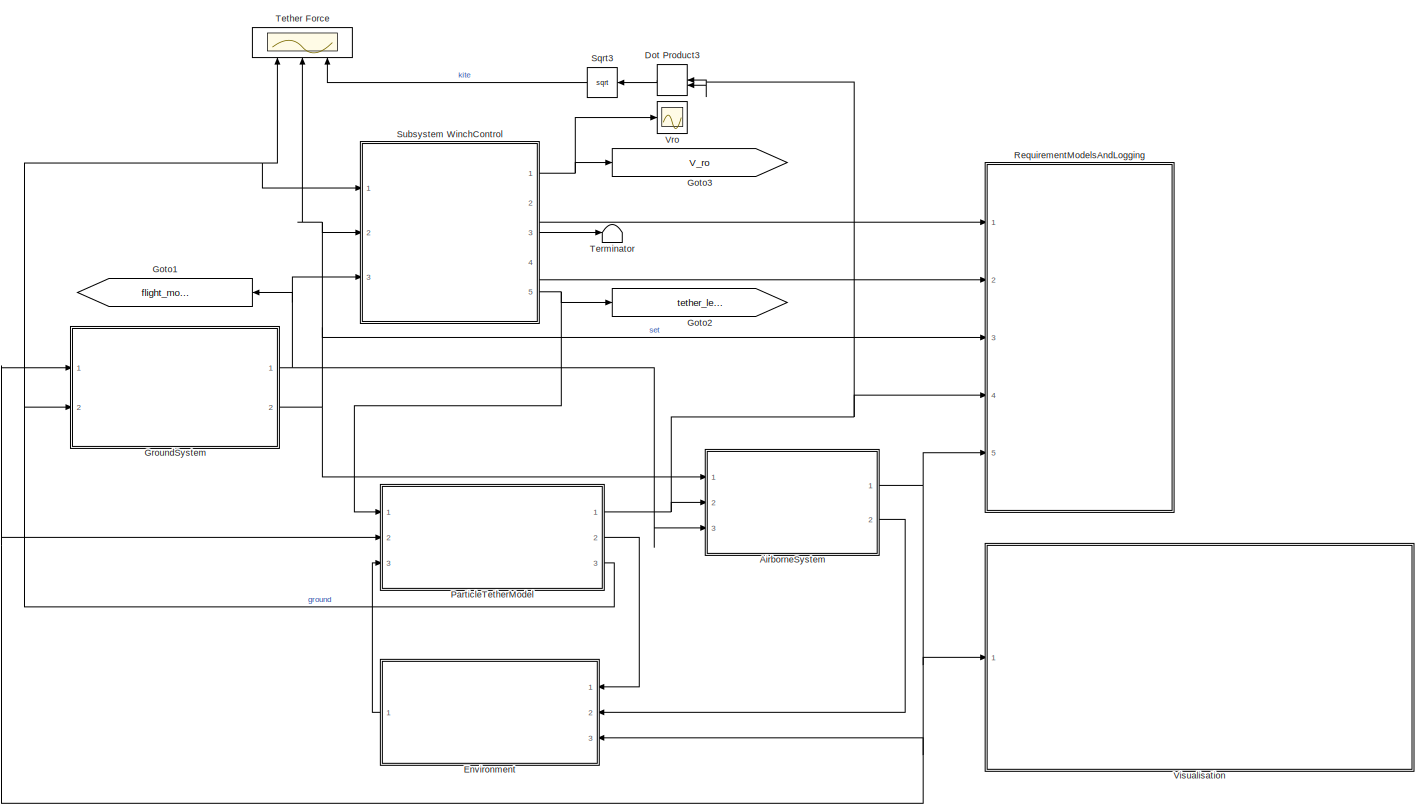
[diagram: root canvas - part 1/1, most of the canvas]
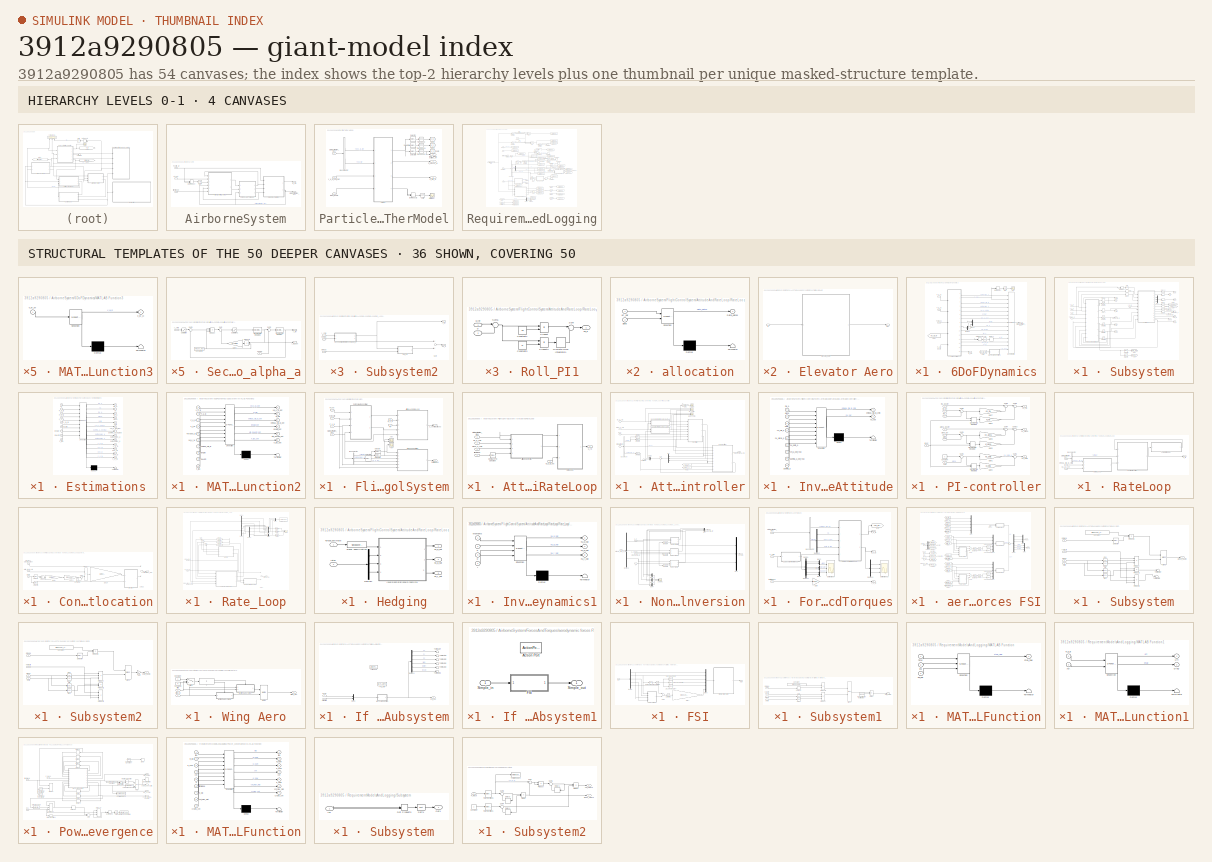
[diagram: thumbnail index - top-2 hierarchy levels (4 canvases) + 36 structural-template representatives of the remaining 50 canvases]
MODEL slx_3912a9290805
KIND model
CONFIG AbsTol = auto
CONFIG EnableMultiTasking = on
CONFIG FixedStep = dt
CONFIG InitFcn = close all
CONFIG MaxStep = auto
CONFIG MinStep = auto
CONFIG RelTol = 1e-3
CONFIG SampleTimeConstraint = Unconstrained
CONFIG Solver = ode4
CONFIG SolverName = ode4
CONFIG StartTime = 0.0
CONFIG StopTime = 300
BLOCK [SubSystem] AirborneSystem
  Ports = [3, 2]
  RequestExecContextInheritance = off
BLOCK [SubSystem] AirborneSystem/6DoFDynamics
  Ports = [4, 2]
  RequestExecContextInheritance = off
BLOCK [BusCreator] AirborneSystem/6DoFDynamics/Bus Creator1
  DisplayOption = bar
  InheritFromInputs = on
  Inputs = 15
  Ports = [15, 1]
BLOCK [Delay] AirborneSystem/6DoFDynamics/Delay1
  DelayLength = 1
  InputPortMap = u0
  Ports = [1, 1]
BLOCK [Demux] AirborneSystem/6DoFDynamics/Demux
  DisplayOption = bar
  Outputs = 3
  Ports = [1, 3]
BLOCK [DotProduct] AirborneSystem/6DoFDynamics/Dot Product
  Commented = on
  OutDataTypeStr = Inherit: Inherit via internal rule
BLOCK [DotProduct] AirborneSystem/6DoFDynamics/Dot Product1
  OutDataTypeStr = Inherit: Inherit via internal rule
BLOCK [Inport] AirborneSystem/6DoFDynamics/F_a_B
  IconDisplay = Port number
  Port = 2
BLOCK [Inport] AirborneSystem/6DoFDynamics/F_p_B
  IconDisplay = Port number
  Port = 3
BLOCK [Inport] AirborneSystem/6DoFDynamics/F_t_W
  IconDisplay = Port number
BLOCK [From] AirborneSystem/6DoFDynamics/From
  GotoTag = vel_W_W
  TagVisibility = global
BLOCK [From] AirborneSystem/6DoFDynamics/From1
  GotoTag = vel_W_W
  TagVisibility = global
BLOCK [SubSystem] AirborneSystem/6DoFDynamics/MATLAB Function3
  ErrorFcn = Stateflow.Translate.translate
  PermitHierarchicalResolution = ExplicitOnly
  Ports = [1, 1]
  RequestExecContextInheritance = off
  SFBlockType = MATLAB Function
  TreatAsAtomicUnit = on
BLOCK [Demux] AirborneSystem/6DoFDynamics/MATLAB Function3/ Demux 
  DisplayOption = bar
  Outputs = 1
  Ports = [1, 1]
BLOCK [S-Function] AirborneSystem/6DoFDynamics/MATLAB Function3/ SFunction 
  EnableBusSupport = on
  FunctionName = sf_sfun
  Parameters = ENVMT
  PortCounts = [1 2]
  Ports = [1, 2]
  SFcnIsStateOwnerBlock = off
  SFunctionDeploymentMode = off
  Tag = Stateflow S-Function 35
BLOCK [Terminator] AirborneSystem/6DoFDynamics/MATLAB Function3/ Terminator 
BLOCK [Outport] AirborneSystem/6DoFDynamics/MATLAB Function3/v_w_O
  IconDisplay = Port number
  VectorParamsAs1DForOutWhenUnconnected = off
BLOCK [Inport] AirborneSystem/6DoFDynamics/MATLAB Function3/v_w_W
  IconDisplay = Port number
BLOCK [Outport] AirborneSystem/6DoFDynamics/M_OB
  IconDisplay = Port number
  PortDimensions = [3,3]
  VectorParamsAs1DForOutWhenUnconnected = off
BLOCK [Mux] AirborneSystem/6DoFDynamics/Mux1
  DisplayOption = bar
  Inputs = 3
  Ports = [3, 1]
BLOCK [Sqrt] AirborneSystem/6DoFDynamics/Sqrt
  Commented = on
BLOCK [Sqrt] AirborneSystem/6DoFDynamics/Sqrt1
BLOCK [Outport] AirborneSystem/6DoFDynamics/StateEstimation_Bus
  IconDisplay = Port number
  Port = 2
  VectorParamsAs1DForOutWhenUnconnected = off
BLOCK [SubSystem] AirborneSystem/6DoFDynamics/Subsystem
  Ports = [5, 15]
  RequestExecContextInheritance = off
BLOCK [Delay] AirborneSystem/6DoFDynamics/Subsystem/Delay
  DelayLength = 1
  InitialCondition = zeros(3,1)
  InputPortMap = u0
  Ports = [1, 1]
BLOCK [Delay] AirborneSystem/6DoFDynamics/Subsystem/Delay1
  DelayLength = 1
  InitialCondition = zeros(3,1)
  InputPortMap = u0
  Ports = [1, 1]
BLOCK [Delay] AirborneSystem/6DoFDynamics/Subsystem/Delay11
  DelayLength = 1
  InitialCondition = zeros(3,1)
  InputPortMap = u0
  Ports = [1, 1]
BLOCK [Delay] AirborneSystem/6DoFDynamics/Subsystem/Delay13
  DelayLength = 1
  InitialCondition = 0
  InputPortMap = u0
  Ports = [1, 1]
BLOCK [Delay] AirborneSystem/6DoFDynamics/Subsystem/Delay14
  DelayLength = 1
  InitialCondition = zeros(3,1)
  InputPortMap = u0
  Ports = [1, 1]
BLOCK [Delay] AirborneSystem/6DoFDynamics/Subsystem/Delay2
  DelayLength = 1
  InputPortMap = u0
  Ports = [1, 1]
BLOCK [Delay] AirborneSystem/6DoFDynamics/Subsystem/Delay3
  DelayLength = 1
  InputPortMap = u0
  Ports = [1, 1]
BLOCK [Delay] AirborneSystem/6DoFDynamics/Subsystem/Delay4
  DelayLength = 1
  InitialCondition = eye(3)
  InputPortMap = u0
  Ports = [1, 1]
BLOCK [Delay] AirborneSystem/6DoFDynamics/Subsystem/Delay5
  DelayLength = 1
  InitialCondition = zeros(2,1)
  InputPortMap = u0
  Ports = [1, 1]
BLOCK [Delay] AirborneSystem/6DoFDynamics/Subsystem/Delay7
  DelayLength = 1
  InitialCondition = simInit.vel_B_init(1)
  InputPortMap = u0
  Ports = [1, 1]
BLOCK [Delay] AirborneSystem/6DoFDynamics/Subsystem/Delay9
  DelayLength = 1
  InitialCondition = zeros(2,1)
  InputPortMap = u0
  Ports = [1, 1]
BLOCK [DotProduct] AirborneSystem/6DoFDynamics/Subsystem/Dot Product
  OutDataTypeStr = Inherit: Inherit via internal rule
BLOCK [Outport] AirborneSystem/6DoFDynamics/Subsystem/EULER
  IconDisplay = Port number
  Port = 10
  PortDimensions = [3,1]
  VectorParamsAs1DForOutWhenUnconnected = off
BLOCK [SubSystem] AirborneSystem/6DoFDynamics/Subsystem/Estimations
  ErrorFcn = Stateflow.Translate.translate
  PermitHierarchicalResolution = ExplicitOnly
  Ports = [9, 13]
  RequestExecContextInheritance = off
  SFBlockType = MATLAB Function
  TreatAsAtomicUnit = on
BLOCK [Demux] AirborneSystem/6DoFDynamics/Subsystem/Estimations/ Demux 
  DisplayOption = bar
  Outputs = 1
  Ports = [1, 1]
BLOCK [S-Function] AirborneSystem/6DoFDynamics/Subsystem/Estimations/ SFunction 
  EnableBusSupport = on
  FunctionName = sf_sfun
  Parameters = DE2019,ENVMT
  PortCounts = [9 14]
  Ports = [9, 14]
  SFcnIsStateOwnerBlock = off
  SFunctionDeploymentMode = off
  Tag = Stateflow S-Function 9
BLOCK [Terminator] AirborneSystem/6DoFDynamics/Subsystem/Estimations/ Terminator 
BLOCK [Inport] AirborneSystem/6DoFDynamics/Subsystem/Estimations/EULER
  IconDisplay = Port number
  Port = 8
BLOCK [Inport] AirborneSystem/6DoFDynamics/Subsystem/Estimations/F_a_B
  IconDisplay = Port number
  Port = 2
BLOCK [Inport] AirborneSystem/6DoFDynamics/Subsystem/Estimations/F_p_B
  IconDisplay = Port number
  Port = 3
BLOCK [Inport] AirborneSystem/6DoFDynamics/Subsystem/Estimations/Ft
  IconDisplay = Port number
BLOCK [Inport] AirborneSystem/6DoFDynamics/Subsystem/Estimations/M_OB
  IconDisplay = Port number
  Port = 6
BLOCK [Outport] AirborneSystem/6DoFDynamics/Subsystem/Estimations/Va
  IconDisplay = Port number
  Port = 2
  VectorParamsAs1DForOutWhenUnconnected = off
BLOCK [Outport] AirborneSystem/6DoFDynamics/Subsystem/Estimations/alpha
  IconDisplay = Port number
  Port = 4
  VectorParamsAs1DForOutWhenUnconnected = off
BLOCK [Outport] AirborneSystem/6DoFDynamics/Subsystem/Estimations/beta
  IconDisplay = Port number
  Port = 5
  VectorParamsAs1DForOutWhenUnconnected = off
BLOCK [Outport] AirborneSystem/6DoFDynamics/Subsystem/Estimations/chi_a_dot_real
  IconDisplay = Port number
  Port = 6
  VectorParamsAs1DForOutWhenUnconnected = off
BLOCK [Outport] AirborneSystem/6DoFDynamics/Subsystem/Estimations/gamma_a_dot_real
  IconDisplay = Port number
  Port = 7
  VectorParamsAs1DForOutWhenUnconnected = off
BLOCK [Inport] AirborneSystem/6DoFDynamics/Subsystem/Estimations/h_tau
  IconDisplay = Port number
  Port = 9
BLOCK [Inport] AirborneSystem/6DoFDynamics/Subsystem/Estimations/longlat
  IconDisplay = Port number
  Port = 7
BLOCK [Outport] AirborneSystem/6DoFDynamics/Subsystem/Estimations/mu_a
  IconDisplay = Port number
  Port = 3
  VectorParamsAs1DForOutWhenUnconnected = off
BLOCK [Outport] AirborneSystem/6DoFDynamics/Subsystem/Estimations/mu_k
  IconDisplay = Port number
  VectorParamsAs1DForOutWhenUnconnected = off
BLOCK [Outport] AirborneSystem/6DoFDynamics/Subsystem/Estimations/pathangles_a
  IconDisplay = Port number
  Port = 8
  VectorParamsAs1DForOutWhenUnconnected = off
BLOCK [Outport] AirborneSystem/6DoFDynamics/Subsystem/Estimations/pathangles_k
  IconDisplay = Port number
  Port = 9
  VectorParamsAs1DForOutWhenUnconnected = off
BLOCK [Outport] AirborneSystem/6DoFDynamics/Subsystem/Estimations/pos_O
  IconDisplay = Port number
  Port = 12
  VectorParamsAs1DForOutWhenUnconnected = off
BLOCK [Outport] AirborneSystem/6DoFDynamics/Subsystem/Estimations/pos_W
  IconDisplay = Port number
  Port = 11
  VectorParamsAs1DForOutWhenUnconnected = off
BLOCK [Inport] AirborneSystem/6DoFDynamics/Subsystem/Estimations/v_k_B
  IconDisplay = Port number
  Port = 4
BLOCK [Outport] AirborneSystem/6DoFDynamics/Subsystem/Estimations/v_k_O
  IconDisplay = Port number
  Port = 10
  VectorParamsAs1DForOutWhenUnconnected = off
BLOCK [Outport] AirborneSystem/6DoFDynamics/Subsystem/Estimations/v_k_W
  IconDisplay = Port number
  Port = 13
  VectorParamsAs1DForOutWhenUnconnected = off
BLOCK [Inport] AirborneSystem/6DoFDynamics/Subsystem/Estimations/v_w_W
  IconDisplay = Port number
  Port = 5
BLOCK [Inport] AirborneSystem/6DoFDynamics/Subsystem/F_a_B
  IconDisplay = Port number
  PortDimensions = [3,1]
BLOCK [Inport] AirborneSystem/6DoFDynamics/Subsystem/F_p_B
  IconDisplay = Port number
  Port = 2
BLOCK [Inport] AirborneSystem/6DoFDynamics/Subsystem/F_t_W
  IconDisplay = Port number
  Port = 5
BLOCK [Goto] AirborneSystem/6DoFDynamics/Subsystem/Goto
  Commented = on
  GotoTag = lat_dot
  TagVisibility = global
BLOCK [Goto] AirborneSystem/6DoFDynamics/Subsystem/Goto1
  Commented = on
  GotoTag = long_dot
  TagVisibility = global
BLOCK [Goto] AirborneSystem/6DoFDynamics/Subsystem/Goto3
  GotoTag = chi_a_dot_real
  TagVisibility = global
BLOCK [Goto] AirborneSystem/6DoFDynamics/Subsystem/Goto4
  GotoTag = gamma_a_dot_real
  TagVisibility = global
BLOCK [Integrator] AirborneSystem/6DoFDynamics/Subsystem/Integrator
  InitialCondition = simInit.eta_init
  Ports = [1, 1]
  WrapState = on
BLOCK [Integrator] AirborneSystem/6DoFDynamics/Subsystem/Integrator1
  InitialCondition = simInit.vel_B_init
  Ports = [1, 1]
BLOCK [Integrator] AirborneSystem/6DoFDynamics/Subsystem/Integrator2
  InitialCondition = norm(simInit.pos_O_init)
  Ports = [1, 1]
BLOCK [Integrator] AirborneSystem/6DoFDynamics/Subsystem/Integrator5
  InitialCondition = zeros(3,1)
  Ports = [1, 1]
BLOCK [Integrator] AirborneSystem/6DoFDynamics/Subsystem/Integrator6
  InitialCondition = [simInit.long_init;simInit.lat_init]
  Ports = [1, 1]
  WrapState = on
BLOCK [SubSystem] AirborneSystem/6DoFDynamics/Subsystem/MATLAB Function2
  ErrorFcn = Stateflow.Translate.translate
  PermitHierarchicalResolution = ExplicitOnly
  Ports = [10, 6]
  RequestExecContextInheritance = off
  SFBlockType = MATLAB Function
  TreatAsAtomicUnit = on
BLOCK [Demux] AirborneSystem/6DoFDynamics/Subsystem/MATLAB Function2/ Demux 
  DisplayOption = bar
  Outputs = 1
  Ports = [1, 1]
BLOCK [S-Function] AirborneSystem/6DoFDynamics/Subsystem/MATLAB Function2/ SFunction 
  EnableBusSupport = on
  FunctionName = sf_sfun
  Parameters = DE2019,ENVMT
  PortCounts = [10 7]
  Ports = [10, 7]
  SFcnIsStateOwnerBlock = off
  SFunctionDeploymentMode = off
  Tag = Stateflow S-Function 10
BLOCK [Terminator] AirborneSystem/6DoFDynamics/Subsystem/MATLAB Function2/ Terminator 
BLOCK [Inport] AirborneSystem/6DoFDynamics/Subsystem/MATLAB Function2/EULER
  IconDisplay = Port number
  Port = 9
BLOCK [Inport] AirborneSystem/6DoFDynamics/Subsystem/MATLAB Function2/F_a_B
  IconDisplay = Port number
  Port = 2
BLOCK [Inport] AirborneSystem/6DoFDynamics/Subsystem/MATLAB Function2/F_p_B
  IconDisplay = Port number
  Port = 3
BLOCK [Inport] AirborneSystem/6DoFDynamics/Subsystem/MATLAB Function2/F_t_W
  IconDisplay = Port number
  Port = 4
BLOCK [Outport] AirborneSystem/6DoFDynamics/Subsystem/MATLAB Function2/M_OB
  IconDisplay = Port number
  Port = 2
  VectorParamsAs1DForOutWhenUnconnected = off
BLOCK [Inport] AirborneSystem/6DoFDynamics/Subsystem/MATLAB Function2/Torques_B
  IconDisplay = Port number
  Port = 5
BLOCK [Outport] AirborneSystem/6DoFDynamics/Subsystem/MATLAB Function2/eta_EULER_dot
  IconDisplay = Port number
  Port = 5
  VectorParamsAs1DForOutWhenUnconnected = off
BLOCK [Inport] AirborneSystem/6DoFDynamics/Subsystem/MATLAB Function2/h_tau
  IconDisplay = Port number
  Port = 10
BLOCK [Outport] AirborneSystem/6DoFDynamics/Subsystem/MATLAB Function2/h_tau_dot
  IconDisplay = Port number
  Port = 6
  VectorParamsAs1DForOutWhenUnconnected = off
BLOCK [Inport] AirborneSystem/6DoFDynamics/Subsystem/MATLAB Function2/longlat
  IconDisplay = Port number
  Port = 8
BLOCK [Outport] AirborneSystem/6DoFDynamics/Subsystem/MATLAB Function2/longlat_dot
  IconDisplay = Port number
  Port = 4
  VectorParamsAs1DForOutWhenUnconnected = off
BLOCK [Inport] AirborneSystem/6DoFDynamics/Subsystem/MATLAB Function2/omega_OB_B
  IconDisplay = Port number
  Port = 7
BLOCK [Outport] AirborneSystem/6DoFDynamics/Subsystem/MATLAB Function2/omega_OB_B_dot
  IconDisplay = Port number
  Port = 3
  VectorParamsAs1DForOutWhenUnconnected = off
BLOCK [Inport] AirborneSystem/6DoFDynamics/Subsystem/MATLAB Function2/v_k_B
  IconDisplay = Port number
BLOCK [Outport] AirborneSystem/6DoFDynamics/Subsystem/MATLAB Function2/vel_K_B_dot
  IconDisplay = Port number
  VectorParamsAs1DForOutWhenUnconnected = off
BLOCK [Inport] AirborneSystem/6DoFDynamics/Subsystem/MATLAB Function2/vel_k_W
  IconDisplay = Port number
  Port = 6
BLOCK [Outport] AirborneSystem/6DoFDynamics/Subsystem/M_OB
  IconDisplay = Port number
  Port = 15
  PortDimensions = [3,3]
  VectorParamsAs1DForOutWhenUnconnected = off
BLOCK [Mux] AirborneSystem/6DoFDynamics/Subsystem/Mux
  DisplayOption = bar
  Inputs = 3
  Ports = [3, 1]
BLOCK [Selector] AirborneSystem/6DoFDynamics/Subsystem/Selector
  Commented = on
  IndexOptions = Index vector (dialog)
  Indices = 2
  InputPortWidth = 2
  OutputSizes = 1
  Ports = [1, 1]
BLOCK [Selector] AirborneSystem/6DoFDynamics/Subsystem/Selector1
  Commented = on
  IndexOptions = Index vector (dialog)
  Indices = 1
  InputPortWidth = 2
  OutputSizes = 1
  Ports = [1, 1]
BLOCK [Sqrt] AirborneSystem/6DoFDynamics/Subsystem/Sqrt
BLOCK [Inport] AirborneSystem/6DoFDynamics/Subsystem/Torques_B
  IconDisplay = Port number
  Port = 3
  PortDimensions = [3,1]
BLOCK [Outport] AirborneSystem/6DoFDynamics/Subsystem/Va
  IconDisplay = Port number
  Port = 8
  PortDimensions = 1
  VectorParamsAs1DForOutWhenUnconnected = off
BLOCK [Outport] AirborneSystem/6DoFDynamics/Subsystem/a_B
  IconDisplay = Port number
  Port = 12
  PortDimensions = [3,1]
  VectorParamsAs1DForOutWhenUnconnected = off
BLOCK [Outport] AirborneSystem/6DoFDynamics/Subsystem/eta_a
  IconDisplay = Port number
  Port = 9
  PortDimensions = [3,1]
  VectorParamsAs1DForOutWhenUnconnected = off
BLOCK [Outport] AirborneSystem/6DoFDynamics/Subsystem/longlat
  IconDisplay = Port number
  Port = 6
  PortDimensions = [2,1]
  VectorParamsAs1DForOutWhenUnconnected = off
BLOCK [Outport] AirborneSystem/6DoFDynamics/Subsystem/mu_k
  IconDisplay = Port number
  Port = 11
  PortDimensions = 1
  VectorParamsAs1DForOutWhenUnconnected = off
BLOCK [Outport] AirborneSystem/6DoFDynamics/Subsystem/omega_OB_B
  IconDisplay = Port number
  Port = 3
  PortDimensions = [3,1]
  VectorParamsAs1DForOutWhenUnconnected = off
BLOCK [Outport] AirborneSystem/6DoFDynamics/Subsystem/pathangles_a
  IconDisplay = Port number
  PortDimensions = [2,1]
  VectorParamsAs1DForOutWhenUnconnected = off
BLOCK [Outport] AirborneSystem/6DoFDynamics/Subsystem/pathangles_k
  IconDisplay = Port number
  Port = 4
  PortDimensions = [2,1]
  VectorParamsAs1DForOutWhenUnconnected = off
BLOCK [Outport] AirborneSystem/6DoFDynamics/Subsystem/pos_O
  IconDisplay = Port number
  Port = 7
  PortDimensions = [3,1]
  VectorParamsAs1DForOutWhenUnconnected = off
BLOCK [Outport] AirborneSystem/6DoFDynamics/Subsystem/pos_W
  IconDisplay = Port number
  Port = 13
  PortDimensions = [3,1]
  VectorParamsAs1DForOutWhenUnconnected = off
BLOCK [Outport] AirborneSystem/6DoFDynamics/Subsystem/v_k_B
  IconDisplay = Port number
  Port = 2
  PortDimensions = [3,1]
  VectorParamsAs1DForOutWhenUnconnected = off
BLOCK [Inport] AirborneSystem/6DoFDynamics/Subsystem/v_w_W
  IconDisplay = Port number
  Port = 4
  PortDimensions = [3,1]
BLOCK [Outport] AirborneSystem/6DoFDynamics/Subsystem/vel_K_O_mDs
  IconDisplay = Port number
  Port = 5
  PortDimensions = [3,1]
  VectorParamsAs1DForOutWhenUnconnected = off
BLOCK [Outport] AirborneSystem/6DoFDynamics/Subsystem/vel_W
  IconDisplay = Port number
  Port = 14
  PortDimensions = [3,1]
  VectorParamsAs1DForOutWhenUnconnected = off
BLOCK [Inport] AirborneSystem/6DoFDynamics/Torques
  IconDisplay = Port number
  Port = 4
BLOCK [Scope] AirborneSystem/6DoFDynamics/Vk
  Commented = on
  Floating = off
  NumInputPorts = 1
  Ports = [1]
  ScopeSpecificationString = Simulink.scopes.TimeScopeBlockCfg('CurrentConfiguration', extmgr.ConfigurationSet(extmgr.Configuration('Core','General UI',true),extmgr.Configuration('Core','Source UI',true),extmgr.Configuration('Sources','WiredSimulink',true,'DataLoggingVariableName','ScopeData2'),extmgr.Configuration('Visuals','Time Domain',true,'SerializedDisplays',{struct('MinYLimReal','19.31834','MaxYLimReal','96.53175','YLa...<+1467ch>
BLOCK [DotProduct] AirborneSystem/Dot Product
  OutDataTypeStr = Inherit: Inherit via internal rule
BLOCK [SubSystem] AirborneSystem/FlightControlSystem
  Ports = [6, 2]
  RequestExecContextInheritance = off
BLOCK [SubSystem] AirborneSystem/FlightControlSystem/AirspeedController
  BlockKeywords = __PRM__SERIALIZED__DATA__:SubsystemReferenceBlock
  Ports = [6, 1]
  ReferencedSubsystem = AirspeedController
  RequestExecContextInheritance = off
BLOCK [Scope] AirborneSystem/FlightControlSystem/AoA
  Floating = off
  NumInputPorts = 2
  Ports = [2]
  ScopeSpecificationString = Simulink.scopes.TimeScopeBlockCfg('CurrentConfiguration', extmgr.ConfigurationSet(extmgr.Configuration('Core','General UI',true),extmgr.Configuration('Core','Source UI',true),extmgr.Configuration('Sources','WiredSimulink',true,'DataLoggingVariableName','ScopeData2'),extmgr.Configuration('Visuals','Time Domain',true,'SerializedDisplays',{struct('MinYLimReal','-0.39675','MaxYLimReal','0.02807','YLab...<+1466ch>
BLOCK [SubSystem] AirborneSystem/FlightControlSystem/AttitudeAndRateLoop
  Ports = [5, 1]
  RequestExecContextInheritance = off
BLOCK [SubSystem] AirborneSystem/FlightControlSystem/AttitudeAndRateLoop/AttitudeController
  Ports = [4, 1]
  RequestExecContextInheritance = off
BLOCK [BusSelector] AirborneSystem/FlightControlSystem/AttitudeAndRateLoop/AttitudeController/Bus Selector
  OutputAsBus = off
  OutputSignals = airdata,mu_a,pathangles_a
  Ports = [1, 3]
BLOCK [Demux] AirborneSystem/FlightControlSystem/AttitudeAndRateLoop/AttitudeController/Demux
  DisplayOption = bar
  Outputs = 3
  Ports = [1, 3]
BLOCK [From] AirborneSystem/FlightControlSystem/AttitudeAndRateLoop/AttitudeController/From1
  GotoTag = gamma_a_dot_real
  TagVisibility = global
BLOCK [From] AirborneSystem/FlightControlSystem/AttitudeAndRateLoop/AttitudeController/From2
  GotoTag = chi_a_dot_real
  TagVisibility = global
BLOCK [Gain] AirborneSystem/FlightControlSystem/AttitudeAndRateLoop/AttitudeController/Gain1
  Commented = on
  Gain = 180/pi
  OutDataTypeStr = Inherit: Inherit via internal rule
  ParamDataTypeStr = Inherit: Inherit via internal rule
  SaturateOnIntegerOverflow = off
BLOCK [SubSystem] AirborneSystem/FlightControlSystem/AttitudeAndRateLoop/AttitudeController/InversionAttitude
  ErrorFcn = Stateflow.Translate.translate
  PermitHierarchicalResolution = ExplicitOnly
  Ports = [9, 2]
  RequestExecContextInheritance = off
  SFBlockType = MATLAB Function
  TreatAsAtomicUnit = on
BLOCK [Demux] AirborneSystem/FlightControlSystem/AttitudeAndRateLoop/AttitudeController/InversionAttitude/ Demux 
  DisplayOption = bar
  Outputs = 1
  Ports = [1, 1]
BLOCK [S-Function] AirborneSystem/FlightControlSystem/AttitudeAndRateLoop/AttitudeController/InversionAttitude/ SFunction 
  EnableBusSupport = on
  FunctionName = sf_sfun
  Parameters = constr
  PortCounts = [9 3]
  Ports = [9, 3]
  SFcnIsStateOwnerBlock = off
  SFunctionDeploymentMode = off
  Tag = Stateflow S-Function 11
BLOCK [Terminator] AirborneSystem/FlightControlSystem/AttitudeAndRateLoop/AttitudeController/InversionAttitude/ Terminator 
BLOCK [Inport] AirborneSystem/FlightControlSystem/AttitudeAndRateLoop/AttitudeController/InversionAttitude/alpha
  IconDisplay = Port number
  Port = 2
BLOCK [Inport] AirborneSystem/FlightControlSystem/AttitudeAndRateLoop/AttitudeController/InversionAttitude/beta
  IconDisplay = Port number
  Port = 3
BLOCK [Inport] AirborneSystem/FlightControlSystem/AttitudeAndRateLoop/AttitudeController/InversionAttitude/chi_a_dot_real
  IconDisplay = Port number
  Port = 7
BLOCK [Inport] AirborneSystem/FlightControlSystem/AttitudeAndRateLoop/AttitudeController/InversionAttitude/gamma_a
  IconDisplay = Port number
  Port = 9
BLOCK [Inport] AirborneSystem/FlightControlSystem/AttitudeAndRateLoop/AttitudeController/InversionAttitude/gamma_a_dot_real
  IconDisplay = Port number
  Port = 8
BLOCK [Inport] AirborneSystem/FlightControlSystem/AttitudeAndRateLoop/AttitudeController/InversionAttitude/mu_a
  IconDisplay = Port number
BLOCK [Inport] AirborneSystem/FlightControlSystem/AttitudeAndRateLoop/AttitudeController/InversionAttitude/nu_alpha_a
  IconDisplay = Port number
  Port = 5
BLOCK [Inport] AirborneSystem/FlightControlSystem/AttitudeAndRateLoop/AttitudeController/InversionAttitude/nu_beta_a
  IconDisplay = Port number
  Port = 6
BLOCK [Outport] AirborneSystem/FlightControlSystem/AttitudeAndRateLoop/AttitudeController/InversionAttitude/nu_hat
  IconDisplay = Port number
  Port = 2
  VectorParamsAs1DForOutWhenUnconnected = off
BLOCK [Inport] AirborneSystem/FlightControlSystem/AttitudeAndRateLoop/AttitudeController/InversionAttitude/nu_mu_a
  IconDisplay = Port number
  Port = 4
BLOCK [Outport] AirborneSystem/FlightControlSystem/AttitudeAndRateLoop/AttitudeController/InversionAttitude/omega_OB_B_cmd
  IconDisplay = Port number
  VectorParamsAs1DForOutWhenUnconnected = off
BLOCK [Mux] AirborneSystem/FlightControlSystem/AttitudeAndRateLoop/AttitudeController/Mux
  DisplayOption = bar
  Inputs = 3
  Ports = [3, 1]
BLOCK [SubSystem] AirborneSystem/FlightControlSystem/AttitudeAndRateLoop/AttitudeController/PI-controller
  Ports = [8, 3]
  RequestExecContextInheritance = off
BLOCK [Constant] AirborneSystem/FlightControlSystem/AttitudeAndRateLoop/AttitudeController/PI-controller/Constant
  Value = 0
BLOCK [DiscreteIntegrator] AirborneSystem/FlightControlSystem/AttitudeAndRateLoop/AttitudeController/PI-controller/Discrete-Time Integrator1
  Commented = on
  ExternalReset = rising
  ICPrevOutput = DiscIntNeverNeededParam
  ICPrevScaledInput = DiscIntNeverNeededParam
  InitialConditionSetting = Auto
  Ports = [2, 1]
  SampleTime = -1
BLOCK [DiscreteIntegrator] AirborneSystem/FlightControlSystem/AttitudeAndRateLoop/AttitudeController/PI-controller/Discrete-Time Integrator2
  ExternalReset = either
  ICPrevOutput = DiscIntNeverNeededParam
  ICPrevScaledInput = DiscIntNeverNeededParam
  InitialConditionSetting = Auto
  Ports = [2, 1]
  SampleTime = -1
BLOCK [DiscreteIntegrator] AirborneSystem/FlightControlSystem/AttitudeAndRateLoop/AttitudeController/PI-controller/Discrete-Time Integrator3
  Commented = on
  ExternalReset = rising
  ICPrevOutput = DiscIntNeverNeededParam
  ICPrevScaledInput = DiscIntNeverNeededParam
  InitialConditionSetting = Auto
  Ports = [2, 1]
  SampleTime = -1
BLOCK [Gain] AirborneSystem/FlightControlSystem/AttitudeAndRateLoop/AttitudeController/PI-controller/Gain1
  Gain = Kp_beta
  Multiplication = Matrix(K*u)
  OutDataTypeStr = Inherit: Inherit via internal rule
  ParamDataTypeStr = Inherit: Inherit via internal rule
  SaturateOnIntegerOverflow = off
BLOCK [Gain] AirborneSystem/FlightControlSystem/AttitudeAndRateLoop/AttitudeController/PI-controller/Gain3
  Commented = on
  Gain = Ki_beta
  Multiplication = Matrix(K*u)
  OutDataTypeStr = Inherit: Inherit via internal rule
  ParamDataTypeStr = Inherit: Inherit via internal rule
  SaturateOnIntegerOverflow = off
BLOCK [Gain] AirborneSystem/FlightControlSystem/AttitudeAndRateLoop/AttitudeController/PI-controller/Gain4
  Commented = on
  Gain = Ki_mu
  Multiplication = Matrix(K*u)
  OutDataTypeStr = Inherit: Inherit via internal rule
  ParamDataTypeStr = Inherit: Inherit via internal rule
  SaturateOnIntegerOverflow = off
BLOCK [Gain] AirborneSystem/FlightControlSystem/AttitudeAndRateLoop/AttitudeController/PI-controller/Gain5
  Gain = Ki_alpha
  Multiplication = Matrix(K*u)
  OutDataTypeStr = Inherit: Inherit via internal rule
  ParamDataTypeStr = Inherit: Inherit via internal rule
  SaturateOnIntegerOverflow = off
BLOCK [Gain] AirborneSystem/FlightControlSystem/AttitudeAndRateLoop/AttitudeController/PI-controller/Gain7
  Gain = Kp_mu
  Multiplication = Matrix(K*u)
  OutDataTypeStr = Inherit: Inherit via internal rule
  ParamDataTypeStr = Inherit: Inherit via internal rule
  SaturateOnIntegerOverflow = off
BLOCK [Gain] AirborneSystem/FlightControlSystem/AttitudeAndRateLoop/AttitudeController/PI-controller/Gain8
  Gain = Kp_alpha
  Multiplication = Matrix(K*u)
  OutDataTypeStr = Inherit: Inherit via internal rule
  ParamDataTypeStr = Inherit: Inherit via internal rule
  SaturateOnIntegerOverflow = off
BLOCK [Sum] AirborneSystem/FlightControlSystem/AttitudeAndRateLoop/AttitudeController/PI-controller/Sum1
  IconShape = round
  InputSameDT = off
  Inputs = |++
  OutDataTypeStr = Inherit: Inherit via internal rule
  Ports = [2, 1]
  SaturateOnIntegerOverflow = off
BLOCK [Sum] AirborneSystem/FlightControlSystem/AttitudeAndRateLoop/AttitudeController/PI-controller/Sum10
  IconShape = round
  InputSameDT = off
  Inputs = |++
  OutDataTypeStr = Inherit: Inherit via internal rule
  Ports = [2, 1]
  SaturateOnIntegerOverflow = off
BLOCK [Sum] AirborneSystem/FlightControlSystem/AttitudeAndRateLoop/AttitudeController/PI-controller/Sum2
  IconShape = round
  InputSameDT = off
  Inputs = |+-
  OutDataTypeStr = Inherit: Inherit via internal rule
  Ports = [2, 1]
  SaturateOnIntegerOverflow = off
BLOCK [Sum] AirborneSystem/FlightControlSystem/AttitudeAndRateLoop/AttitudeController/PI-controller/Sum4
  IconShape = round
  InputSameDT = off
  Inputs = |+-
  OutDataTypeStr = Inherit: Inherit via internal rule
  Ports = [2, 1]
  SaturateOnIntegerOverflow = off
BLOCK [Sum] AirborneSystem/FlightControlSystem/AttitudeAndRateLoop/AttitudeController/PI-controller/Sum5
  IconShape = round
  InputSameDT = off
  Inputs = |+-
  OutDataTypeStr = Inherit: Inherit via internal rule
  Ports = [2, 1]
  SaturateOnIntegerOverflow = off
BLOCK [Sum] AirborneSystem/FlightControlSystem/AttitudeAndRateLoop/AttitudeController/PI-controller/Sum6
  IconShape = round
  InputSameDT = off
  Inputs = |++
  OutDataTypeStr = Inherit: Inherit via internal rule
  Ports = [2, 1]
  SaturateOnIntegerOverflow = off
BLOCK [Sum] AirborneSystem/FlightControlSystem/AttitudeAndRateLoop/AttitudeController/PI-controller/Sum7
  IconShape = round
  InputSameDT = off
  Inputs = |++
  OutDataTypeStr = Inherit: Inherit via internal rule
  Ports = [2, 1]
  SaturateOnIntegerOverflow = off
BLOCK [Sum] AirborneSystem/FlightControlSystem/AttitudeAndRateLoop/AttitudeController/PI-controller/Sum9
  IconShape = round
  InputSameDT = off
  Inputs = |++
  OutDataTypeStr = Inherit: Inherit via internal rule
  Ports = [2, 1]
  SaturateOnIntegerOverflow = off
BLOCK [Inport] AirborneSystem/FlightControlSystem/AttitudeAndRateLoop/AttitudeController/PI-controller/alpha
  IconDisplay = Port number
  Port = 7
BLOCK [Inport] AirborneSystem/FlightControlSystem/AttitudeAndRateLoop/AttitudeController/PI-controller/alpha_dot_ref
  IconDisplay = Port number
  Port = 5
BLOCK [Inport] AirborneSystem/FlightControlSystem/AttitudeAndRateLoop/AttitudeController/PI-controller/alpha_ref
  IconDisplay = Port number
  Port = 4
BLOCK [Inport] AirborneSystem/FlightControlSystem/AttitudeAndRateLoop/AttitudeController/PI-controller/beta
  IconDisplay = Port number
  Port = 8
BLOCK [Inport] AirborneSystem/FlightControlSystem/AttitudeAndRateLoop/AttitudeController/PI-controller/mu_a
  IconDisplay = Port number
  Port = 3
BLOCK [Inport] AirborneSystem/FlightControlSystem/AttitudeAndRateLoop/AttitudeController/PI-controller/mu_dot_ref
  IconDisplay = Port number
  Port = 2
BLOCK [Inport] AirborneSystem/FlightControlSystem/AttitudeAndRateLoop/AttitudeController/PI-controller/mu_ref
  IconDisplay = Port number
BLOCK [Outport] AirborneSystem/FlightControlSystem/AttitudeAndRateLoop/AttitudeController/PI-controller/nu_alpha
  IconDisplay = Port number
  Port = 2
  VectorParamsAs1DForOutWhenUnconnected = off
BLOCK [Outport] AirborneSystem/FlightControlSystem/AttitudeAndRateLoop/AttitudeController/PI-controller/nu_beta
  IconDisplay = Port number
  VectorParamsAs1DForOutWhenUnconnected = off
BLOCK [Outport] AirborneSystem/FlightControlSystem/AttitudeAndRateLoop/AttitudeController/PI-controller/nu_mu
  IconDisplay = Port number
  Port = 3
  VectorParamsAs1DForOutWhenUnconnected = off
BLOCK [Inport] AirborneSystem/FlightControlSystem/AttitudeAndRateLoop/AttitudeController/PI-controller/reset
  IconDisplay = Port number
  Port = 6
BLOCK [Scope] AirborneSystem/FlightControlSystem/AttitudeAndRateLoop/AttitudeController/Scope3
  Commented = on
  Floating = off
  NumInputPorts = 1
  Ports = [1]
  ScopeSpecificationString = Simulink.scopes.TimeScopeBlockCfg('CurrentConfiguration', extmgr.ConfigurationSet(extmgr.Configuration('Core','General UI',true),extmgr.Configuration('Core','Source UI',true),extmgr.Configuration('Sources','WiredSimulink',true,'DataLoggingVariableName','ScopeData2'),extmgr.Configuration('Visuals','Time Domain',true,'SerializedDisplays',{struct('MinYLimReal','-34.46976','MaxYLimReal','21.49815','YL...<+1443ch>
BLOCK [SubSystem] AirborneSystem/FlightControlSystem/AttitudeAndRateLoop/AttitudeController/SecondOrderReferenceModel_alpha_a
  Ports = [2, 2]
  RequestExecContextInheritance = off
BLOCK [Constant] AirborneSystem/FlightControlSystem/AttitudeAndRateLoop/AttitudeController/SecondOrderReferenceModel_alpha_a/Constant5
  Value = omega0_max
BLOCK [DiscreteIntegrator] AirborneSystem/FlightControlSystem/AttitudeAndRateLoop/AttitudeController/SecondOrderReferenceModel_alpha_a/Discrete-Time Integrator
  ICPrevOutput = DiscIntNeverNeededParam
  ICPrevScaledInput = DiscIntNeverNeededParam
  InitialConditionSetting = Auto
  LimitOutput = on
  LowerSaturationLimit = y_min
  Ports = [1, 1]
  SampleTime = -1
  UpperSaturationLimit = y_max
BLOCK [DiscreteIntegrator] AirborneSystem/FlightControlSystem/AttitudeAndRateLoop/AttitudeController/SecondOrderReferenceModel_alpha_a/Discrete-Time Integrator1
  ICPrevOutput = DiscIntNeverNeededParam
  ICPrevScaledInput = DiscIntNeverNeededParam
  InitialConditionSetting = Auto
  LimitOutput = on
  LowerSaturationLimit = yd_min
  Ports = [1, 1]
  SampleTime = -1
  UpperSaturationLimit = yd_max
BLOCK [Gain] AirborneSystem/FlightControlSystem/AttitudeAndRateLoop/AttitudeController/SecondOrderReferenceModel_alpha_a/Gain2
  Gain = 2*zeta0
  OutDataTypeStr = Inherit: Inherit via internal rule
  ParamDataTypeStr = Inherit: Inherit via internal rule
  SaturateOnIntegerOverflow = off
BLOCK [Product] AirborneSystem/FlightControlSystem/AttitudeAndRateLoop/AttitudeController/SecondOrderReferenceModel_alpha_a/Product
  InputSameDT = off
  Inputs = 3
  OutDataTypeStr = Inherit: Inherit via internal rule
  Ports = [3, 1]
  RndMeth = Floor
  SaturateOnIntegerOverflow = off
BLOCK [Product] AirborneSystem/FlightControlSystem/AttitudeAndRateLoop/AttitudeController/SecondOrderReferenceModel_alpha_a/Product1
  InputSameDT = off
  OutDataTypeStr = Inherit: Inherit via internal rule
  Ports = [2, 1]
  RndMeth = Floor
  SaturateOnIntegerOverflow = off
BLOCK [Saturate] AirborneSystem/FlightControlSystem/AttitudeAndRateLoop/AttitudeController/SecondOrderReferenceModel_alpha_a/Saturation
  InputPortMap = u0
  LowerLimit = y_min
  Ports = [1, 1]
  UpperLimit = y_max
BLOCK [Saturate] AirborneSystem/FlightControlSystem/AttitudeAndRateLoop/AttitudeController/SecondOrderReferenceModel_alpha_a/Saturation1
  InputPortMap = u0
  LowerLimit = y2d_min
  Ports = [1, 1]
  UpperLimit = y2d_max
BLOCK [Sum] AirborneSystem/FlightControlSystem/AttitudeAndRateLoop/AttitudeController/SecondOrderReferenceModel_alpha_a/Sum
  IconShape = round
  InputSameDT = off
  Inputs = |+-
  OutDataTypeStr = Inherit: Inherit via internal rule
  Ports = [2, 1]
  SaturateOnIntegerOverflow = off
BLOCK [Sum] AirborneSystem/FlightControlSystem/AttitudeAndRateLoop/AttitudeController/SecondOrderReferenceModel_alpha_a/Sum1
  IconShape = round
  InputSameDT = off
  Inputs = |+-
  OutDataTypeStr = Inherit: Inherit via internal rule
  Ports = [2, 1]
  SaturateOnIntegerOverflow = off
BLOCK [Sum] AirborneSystem/FlightControlSystem/AttitudeAndRateLoop/AttitudeController/SecondOrderReferenceModel_alpha_a/Sum2
  IconShape = round
  InputSameDT = off
  Inputs = |+-
  OutDataTypeStr = Inherit: Inherit via internal rule
  Ports = [2, 1]
  SaturateOnIntegerOverflow = off
BLOCK [Inport] AirborneSystem/FlightControlSystem/AttitudeAndRateLoop/AttitudeController/SecondOrderReferenceModel_alpha_a/hedge
  IconDisplay = Port number
  Port = 2
BLOCK [Inport] AirborneSystem/FlightControlSystem/AttitudeAndRateLoop/AttitudeController/SecondOrderReferenceModel_alpha_a/y_cmd
  IconDisplay = Port number
BLOCK [Outport] AirborneSystem/FlightControlSystem/AttitudeAndRateLoop/AttitudeController/SecondOrderReferenceModel_alpha_a/y_ref
  IconDisplay = Port number
  VectorParamsAs1DForOutWhenUnconnected = off
BLOCK [Outport] AirborneSystem/FlightControlSystem/AttitudeAndRateLoop/AttitudeController/SecondOrderReferenceModel_alpha_a/y_ref_dot
  IconDisplay = Port number
  Port = 2
  VectorParamsAs1DForOutWhenUnconnected = off
BLOCK [SubSystem] AirborneSystem/FlightControlSystem/AttitudeAndRateLoop/AttitudeController/SecondOrderReferenceModel_mu_a
  Ports = [2, 2]
  RequestExecContextInheritance = off
BLOCK [Constant] AirborneSystem/FlightControlSystem/AttitudeAndRateLoop/AttitudeController/SecondOrderReferenceModel_mu_a/Constant5
  Value = omega0_max
BLOCK [DiscreteIntegrator] AirborneSystem/FlightControlSystem/AttitudeAndRateLoop/AttitudeController/SecondOrderReferenceModel_mu_a/Discrete-Time Integrator
  ICPrevOutput = DiscIntNeverNeededParam
  ICPrevScaledInput = DiscIntNeverNeededParam
  InitialConditionSetting = Auto
  LimitOutput = on
  LowerSaturationLimit = y_min
  Ports = [1, 1]
  SampleTime = -1
  UpperSaturationLimit = y_max
BLOCK [DiscreteIntegrator] AirborneSystem/FlightControlSystem/AttitudeAndRateLoop/AttitudeController/SecondOrderReferenceModel_mu_a/Discrete-Time Integrator1
  ICPrevOutput = DiscIntNeverNeededParam
  ICPrevScaledInput = DiscIntNeverNeededParam
  InitialConditionSetting = Auto
  LimitOutput = on
  LowerSaturationLimit = yd_min
  Ports = [1, 1]
  SampleTime = -1
  UpperSaturationLimit = yd_max
BLOCK [Gain] AirborneSystem/FlightControlSystem/AttitudeAndRateLoop/AttitudeController/SecondOrderReferenceModel_mu_a/Gain2
  Gain = 2*zeta0
  OutDataTypeStr = Inherit: Inherit via internal rule
  ParamDataTypeStr = Inherit: Inherit via internal rule
  SaturateOnIntegerOverflow = off
BLOCK [Product] AirborneSystem/FlightControlSystem/AttitudeAndRateLoop/AttitudeController/SecondOrderReferenceModel_mu_a/Product
  InputSameDT = off
  Inputs = 3
  OutDataTypeStr = Inherit: Inherit via internal rule
  Ports = [3, 1]
  RndMeth = Floor
  SaturateOnIntegerOverflow = off
BLOCK [Product] AirborneSystem/FlightControlSystem/AttitudeAndRateLoop/AttitudeController/SecondOrderReferenceModel_mu_a/Product1
  InputSameDT = off
  OutDataTypeStr = Inherit: Inherit via internal rule
  Ports = [2, 1]
  RndMeth = Floor
  SaturateOnIntegerOverflow = off
BLOCK [Saturate] AirborneSystem/FlightControlSystem/AttitudeAndRateLoop/AttitudeController/SecondOrderReferenceModel_mu_a/Saturation
  InputPortMap = u0
  LowerLimit = y_min
  Ports = [1, 1]
  UpperLimit = y_max
BLOCK [Saturate] AirborneSystem/FlightControlSystem/AttitudeAndRateLoop/AttitudeController/SecondOrderReferenceModel_mu_a/Saturation1
  InputPortMap = u0
  LowerLimit = y2d_min
  Ports = [1, 1]
  UpperLimit = y2d_max
BLOCK [Sum] AirborneSystem/FlightControlSystem/AttitudeAndRateLoop/AttitudeController/SecondOrderReferenceModel_mu_a/Sum
  IconShape = round
  InputSameDT = off
  Inputs = |+-
  OutDataTypeStr = Inherit: Inherit via internal rule
  Ports = [2, 1]
  SaturateOnIntegerOverflow = off
BLOCK [Sum] AirborneSystem/FlightControlSystem/AttitudeAndRateLoop/AttitudeController/SecondOrderReferenceModel_mu_a/Sum1
  IconShape = round
  InputSameDT = off
  Inputs = |+-
  OutDataTypeStr = Inherit: Inherit via internal rule
  Ports = [2, 1]
  SaturateOnIntegerOverflow = off
BLOCK [Sum] AirborneSystem/FlightControlSystem/AttitudeAndRateLoop/AttitudeController/SecondOrderReferenceModel_mu_a/Sum2
  IconShape = round
  InputSameDT = off
  Inputs = |+-
  OutDataTypeStr = Inherit: Inherit via internal rule
  Ports = [2, 1]
  SaturateOnIntegerOverflow = off
BLOCK [Inport] AirborneSystem/FlightControlSystem/AttitudeAndRateLoop/AttitudeController/SecondOrderReferenceModel_mu_a/hedge
  IconDisplay = Port number
  Port = 2
BLOCK [Inport] AirborneSystem/FlightControlSystem/AttitudeAndRateLoop/AttitudeController/SecondOrderReferenceModel_mu_a/y_cmd
  IconDisplay = Port number
BLOCK [Outport] AirborneSystem/FlightControlSystem/AttitudeAndRateLoop/AttitudeController/SecondOrderReferenceModel_mu_a/y_ref
  IconDisplay = Port number
  VectorParamsAs1DForOutWhenUnconnected = off
BLOCK [Outport] AirborneSystem/FlightControlSystem/AttitudeAndRateLoop/AttitudeController/SecondOrderReferenceModel_mu_a/y_ref_dot
  IconDisplay = Port number
  Port = 2
  VectorParamsAs1DForOutWhenUnconnected = off
BLOCK [Selector] AirborneSystem/FlightControlSystem/AttitudeAndRateLoop/AttitudeController/Selector
  IndexOptions = Index vector (dialog)
  Indices = 2
  InputPortWidth = 3
  OutputSizes = 1
  Ports = [1, 1]
BLOCK [Selector] AirborneSystem/FlightControlSystem/AttitudeAndRateLoop/AttitudeController/Selector1
  IndexOptions = Index vector (dialog)
  Indices = 3
  InputPortWidth = 3
  OutputSizes = 1
  Ports = [1, 1]
BLOCK [Selector] AirborneSystem/FlightControlSystem/AttitudeAndRateLoop/AttitudeController/Selector2
  IndexOptions = Index vector (dialog)
  Indices = 2
  InputPortWidth = 2
  OutputSizes = 1
  Ports = [1, 1]
BLOCK [Inport] AirborneSystem/FlightControlSystem/AttitudeAndRateLoop/AttitudeController/StateEstimation_Bus
  IconDisplay = Port number
BLOCK [Sum] AirborneSystem/FlightControlSystem/AttitudeAndRateLoop/AttitudeController/Sum
  IconShape = round
  InputSameDT = off
  Inputs = |+-
  OutDataTypeStr = Inherit: Inherit via internal rule
  Ports = [2, 1]
  SaturateOnIntegerOverflow = off
BLOCK [Terminator] AirborneSystem/FlightControlSystem/AttitudeAndRateLoop/AttitudeController/Terminator
BLOCK [Inport] AirborneSystem/FlightControlSystem/AttitudeAndRateLoop/AttitudeController/alpha_a_cmd
  IconDisplay = Port number
  Port = 3
BLOCK [Scope] AirborneSystem/FlightControlSystem/AttitudeAndRateLoop/AttitudeController/alpha_control
  Commented = on
  Floating = off
  NumInputPorts = 3
  Ports = [3]
  ScopeSpecificationString = Simulink.scopes.TimeScopeBlockCfg('CurrentConfiguration', extmgr.ConfigurationSet(extmgr.Configuration('Core','General UI',true),extmgr.Configuration('Core','Source UI',true),extmgr.Configuration('Sources','WiredSimulink',true,'DataLoggingVariableName','ScopeData2'),extmgr.Configuration('Visuals','Time Domain',true,'SerializedDisplays',{struct('MinYLimReal','-0.5705','MaxYLimReal','0.57145','YLabe...<+1488ch>
BLOCK [Inport] AirborneSystem/FlightControlSystem/AttitudeAndRateLoop/AttitudeController/mu_a_cmd
  IconDisplay = Port number
  Port = 2
BLOCK [Scope] AirborneSystem/FlightControlSystem/AttitudeAndRateLoop/AttitudeController/mu_control
  Commented = on
  Floating = off
  NumInputPorts = 3
  Ports = [3]
  ScopeSpecificationString = Simulink.scopes.TimeScopeBlockCfg('CurrentConfiguration', extmgr.ConfigurationSet(extmgr.Configuration('Core','General UI',true),extmgr.Configuration('Core','Source UI',true),extmgr.Configuration('Sources','WiredSimulink',true,'DataLoggingVariableName','ScopeData1'),extmgr.Configuration('Visuals','Time Domain',true,'SerializedDisplays',{struct('MinYLimReal','-1.89805','MaxYLimReal','1.37445','YLab...<+1484ch>
BLOCK [Outport] AirborneSystem/FlightControlSystem/AttitudeAndRateLoop/AttitudeController/omega_OB_B_cmd
  IconDisplay = Port number
  PortDimensions = [3,1]
  VectorParamsAs1DForOutWhenUnconnected = off
BLOCK [Inport] AirborneSystem/FlightControlSystem/AttitudeAndRateLoop/AttitudeController/reset
  IconDisplay = Port number
  Port = 4
BLOCK [Reference] AirborneSystem/FlightControlSystem/AttitudeAndRateLoop/Compare To Constant  REF=simulink/Logic and Bit
Operations/Compare
To Constant
  Ports = [1, 1]
  SourceBlock = simulink/Logic and Bit\nOperations/Compare\nTo Constant
  SourceProductBaseCode = SL
  SourceType = Compare To Constant
BLOCK [Inport] AirborneSystem/FlightControlSystem/AttitudeAndRateLoop/M_a_B_est
  IconDisplay = Port number
  Port = 2
BLOCK [SubSystem] AirborneSystem/FlightControlSystem/AttitudeAndRateLoop/RateLoop
  Ports = [3, 1]
  RequestExecContextInheritance = off
BLOCK [SubSystem] AirborneSystem/FlightControlSystem/AttitudeAndRateLoop/RateLoop/Actuatormodel 
  Ports = [1, 1]
  ReferencedSubsystem = Actuatormodel_R2019B
  RequestExecContextInheritance = off
BLOCK [BusSelector] AirborneSystem/FlightControlSystem/AttitudeAndRateLoop/RateLoop/Bus Selector
  OutputAsBus = off
  OutputSignals = airdata,omega_OB_B
  Ports = [1, 2]
BLOCK [SubSystem] AirborneSystem/FlightControlSystem/AttitudeAndRateLoop/RateLoop/ControlAllocation
  Ports = [3, 1]
  RequestExecContextInheritance = off
BLOCK [Constant] AirborneSystem/FlightControlSystem/AttitudeAndRateLoop/RateLoop/ControlAllocation/Constant1
  Value = 1e-6
BLOCK [Inport] AirborneSystem/FlightControlSystem/AttitudeAndRateLoop/RateLoop/ControlAllocation/Delta_mom_cmd
  IconDisplay = Port number
  Port = 3
BLOCK [Gain] AirborneSystem/FlightControlSystem/AttitudeAndRateLoop/RateLoop/ControlAllocation/Gain14
  Gain = [1/ DE2019.b, 0, 0; 0, 1/ DE2019.c, 0; 0, 0, 1/ DE2019.b]
  Multiplication = Matrix(K*u)
  OutDataTypeStr = Inherit: Inherit via internal rule
  ParamDataTypeStr = Inherit: Inherit via internal rule
  SaturateOnIntegerOverflow = off
BLOCK [Gain] AirborneSystem/FlightControlSystem/AttitudeAndRateLoop/RateLoop/ControlAllocation/Gain15
  Gain = DE2019.S_wing
  OutDataTypeStr = Inherit: Inherit via internal rule
  ParamDataTypeStr = Inherit: Inherit via internal rule
  SaturateOnIntegerOverflow = off
BLOCK [Gain] AirborneSystem/FlightControlSystem/AttitudeAndRateLoop/RateLoop/ControlAllocation/Gain3
  Gain = 0.5*ENVMT.rhos
  OutDataTypeStr = Inherit: Inherit via internal rule
  ParamDataTypeStr = Inherit: Inherit via internal rule
  SaturateOnIntegerOverflow = off
BLOCK [Product] AirborneSystem/FlightControlSystem/AttitudeAndRateLoop/RateLoop/ControlAllocation/Product
  InputSameDT = off
  Inputs = */
  OutDataTypeStr = Inherit: Inherit via internal rule
  Ports = [2, 1]
  RndMeth = Floor
  SaturateOnIntegerOverflow = off
BLOCK [Product] AirborneSystem/FlightControlSystem/AttitudeAndRateLoop/RateLoop/ControlAllocation/Product2
  InputSameDT = off
  OutDataTypeStr = Inherit: Inherit via internal rule
  Ports = [2, 1]
  RndMeth = Floor
  SaturateOnIntegerOverflow = off
BLOCK [Selector] AirborneSystem/FlightControlSystem/AttitudeAndRateLoop/RateLoop/ControlAllocation/Selector
  IndexOptions = Index vector (dialog)
  Indices = 1
  InputPortWidth = 3
  OutputSizes = 1
  Ports = [1, 1]
BLOCK [Selector] AirborneSystem/FlightControlSystem/AttitudeAndRateLoop/RateLoop/ControlAllocation/Selector1
  IndexOptions = Index vector (dialog)
  Indices = 2
  InputPortWidth = 3
  OutputSizes = 1
  Ports = [1, 1]
BLOCK [Sum] AirborneSystem/FlightControlSystem/AttitudeAndRateLoop/RateLoop/ControlAllocation/Sum13
  InputSameDT = off
  OutDataTypeStr = Inherit: Inherit via internal rule
  Ports = [2, 1]
  SaturateOnIntegerOverflow = off
BLOCK [Sum] AirborneSystem/FlightControlSystem/AttitudeAndRateLoop/RateLoop/ControlAllocation/Sum2
  IconShape = round
  InputSameDT = off
  Inputs = |++
  OutDataTypeStr = Inherit: Inherit via internal rule
  Ports = [2, 1]
  SaturateOnIntegerOverflow = off
BLOCK [Inport] AirborneSystem/FlightControlSystem/AttitudeAndRateLoop/RateLoop/ControlAllocation/airdata
  IconDisplay = Port number
  Port = 2
BLOCK [SubSystem] AirborneSystem/FlightControlSystem/AttitudeAndRateLoop/RateLoop/ControlAllocation/allocation
  ErrorFcn = Stateflow.Translate.translate
  PermitHierarchicalResolution = ExplicitOnly
  Ports = [2, 1]
  RequestExecContextInheritance = off
  SFBlockType = MATLAB Function
  TreatAsAtomicUnit = on
BLOCK [Demux] AirborneSystem/FlightControlSystem/AttitudeAndRateLoop/RateLoop/ControlAllocation/allocation/ Demux 
  DisplayOption = bar
  Outputs = 1
  Ports = [1, 1]
BLOCK [S-Function] AirborneSystem/FlightControlSystem/AttitudeAndRateLoop/RateLoop/ControlAllocation/allocation/ SFunction 
  EnableBusSupport = on
  FunctionName = sf_sfun
  Parameters = DE2019
  PortCounts = [2 2]
  Ports = [2, 2]
  SFcnIsStateOwnerBlock = off
  SFunctionDeploymentMode = off
  Tag = Stateflow S-Function 12
BLOCK [Terminator] AirborneSystem/FlightControlSystem/AttitudeAndRateLoop/RateLoop/ControlAllocation/allocation/ Terminator 
BLOCK [Outport] AirborneSystem/FlightControlSystem/AttitudeAndRateLoop/RateLoop/ControlAllocation/allocation/Delta_deltas
  IconDisplay = Port number
  VectorParamsAs1DForOutWhenUnconnected = off
BLOCK [Inport] AirborneSystem/FlightControlSystem/AttitudeAndRateLoop/RateLoop/ControlAllocation/allocation/alpha
  IconDisplay = Port number
  Port = 2
BLOCK [Inport] AirborneSystem/FlightControlSystem/AttitudeAndRateLoop/RateLoop/ControlAllocation/allocation/dC_pqr
  IconDisplay = Port number
BLOCK [Inport] AirborneSystem/FlightControlSystem/AttitudeAndRateLoop/RateLoop/ControlAllocation/deflections_actuator_output
  IconDisplay = Port number
BLOCK [Outport] AirborneSystem/FlightControlSystem/AttitudeAndRateLoop/RateLoop/ControlAllocation/deflections_cmd
  IconDisplay = Port number
  VectorParamsAs1DForOutWhenUnconnected = off
BLOCK [Inport] AirborneSystem/FlightControlSystem/AttitudeAndRateLoop/RateLoop/M_a_B_est
  IconDisplay = Port number
  Port = 3
BLOCK [SubSystem] AirborneSystem/FlightControlSystem/AttitudeAndRateLoop/RateLoop/Rate_Loop
  Ports = [3, 1]
  RequestExecContextInheritance = off
BLOCK [Demux] AirborneSystem/FlightControlSystem/AttitudeAndRateLoop/RateLoop/Rate_Loop/Demux1
  Commented = on
  DisplayOption = bar
  Outputs = 3
  Ports = [1, 3]
BLOCK [Demux] AirborneSystem/FlightControlSystem/AttitudeAndRateLoop/RateLoop/Rate_Loop/Demux2
  Commented = on
  DisplayOption = bar
  Outputs = 3
  Ports = [1, 3]
BLOCK [Demux] AirborneSystem/FlightControlSystem/AttitudeAndRateLoop/RateLoop/Rate_Loop/Demux3
  Commented = on
  DisplayOption = bar
  Outputs = 3
  Ports = [1, 3]
BLOCK [Gain] AirborneSystem/FlightControlSystem/AttitudeAndRateLoop/RateLoop/Rate_Loop/Gain
  Commented = on
  Gain = 180/pi
  OutDataTypeStr = Inherit: Inherit via internal rule
  ParamDataTypeStr = Inherit: Inherit via internal rule
  SaturateOnIntegerOverflow = off
BLOCK [Gain] AirborneSystem/FlightControlSystem/AttitudeAndRateLoop/RateLoop/Rate_Loop/Gain1
  Commented = on
  Gain = 180/pi
  OutDataTypeStr = Inherit: Inherit via internal rule
  ParamDataTypeStr = Inherit: Inherit via internal rule
  SaturateOnIntegerOverflow = off
BLOCK [Gain] AirborneSystem/FlightControlSystem/AttitudeAndRateLoop/RateLoop/Rate_Loop/Gain2
  Commented = on
  Gain = 180/pi
  OutDataTypeStr = Inherit: Inherit via internal rule
  ParamDataTypeStr = Inherit: Inherit via internal rule
  SaturateOnIntegerOverflow = off
BLOCK [SubSystem] AirborneSystem/FlightControlSystem/AttitudeAndRateLoop/RateLoop/Rate_Loop/Hedging
  Ports = [2, 3]
  RequestExecContextInheritance = off
BLOCK [Demux] AirborneSystem/FlightControlSystem/AttitudeAndRateLoop/RateLoop/Rate_Loop/Hedging/Demux1
  DisplayOption = bar
  Outputs = 3
  Ports = [1, 3]
BLOCK [SubSystem] AirborneSystem/FlightControlSystem/AttitudeAndRateLoop/RateLoop/Rate_Loop/Hedging/InversionRotationalDynamics1
  ErrorFcn = Stateflow.Translate.translate
  PermitHierarchicalResolution = ExplicitOnly
  Ports = [4, 3]
  RequestExecContextInheritance = off
  SFBlockType = MATLAB Function
  TreatAsAtomicUnit = on
BLOCK [Demux] AirborneSystem/FlightControlSystem/AttitudeAndRateLoop/RateLoop/Rate_Loop/Hedging/InversionRotationalDynamics1/ Demux 
  DisplayOption = bar
  Outputs = 1
  Ports = [1, 1]
BLOCK [S-Function] AirborneSystem/FlightControlSystem/AttitudeAndRateLoop/RateLoop/Rate_Loop/Hedging/InversionRotationalDynamics1/ SFunction 
  EnableBusSupport = on
  FunctionName = sf_sfun
  Parameters = DE2019
  PortCounts = [4 4]
  Ports = [4, 4]
  SFcnIsStateOwnerBlock = off
  SFunctionDeploymentMode = off
  Tag = Stateflow S-Function 58
BLOCK [Terminator] AirborneSystem/FlightControlSystem/AttitudeAndRateLoop/RateLoop/Rate_Loop/Hedging/InversionRotationalDynamics1/ Terminator 
BLOCK [Inport] AirborneSystem/FlightControlSystem/AttitudeAndRateLoop/RateLoop/Rate_Loop/Hedging/InversionRotationalDynamics1/Moments
  IconDisplay = Port number
BLOCK [Outport] AirborneSystem/FlightControlSystem/AttitudeAndRateLoop/RateLoop/Rate_Loop/Hedging/InversionRotationalDynamics1/nu_p_hat
  IconDisplay = Port number
  VectorParamsAs1DForOutWhenUnconnected = off
BLOCK [Outport] AirborneSystem/FlightControlSystem/AttitudeAndRateLoop/RateLoop/Rate_Loop/Hedging/InversionRotationalDynamics1/nu_q_hat
  IconDisplay = Port number
  Port = 2
  VectorParamsAs1DForOutWhenUnconnected = off
BLOCK [Outport] AirborneSystem/FlightControlSystem/AttitudeAndRateLoop/RateLoop/Rate_Loop/Hedging/InversionRotationalDynamics1/nu_r_hat
  IconDisplay = Port number
  Port = 3
  VectorParamsAs1DForOutWhenUnconnected = off
BLOCK [Inport] AirborneSystem/FlightControlSystem/AttitudeAndRateLoop/RateLoop/Rate_Loop/Hedging/InversionRotationalDynamics1/p
  IconDisplay = Port number
  Port = 2
BLOCK [Inport] AirborneSystem/FlightControlSystem/AttitudeAndRateLoop/RateLoop/Rate_Loop/Hedging/InversionRotationalDynamics1/q
  IconDisplay = Port number
  Port = 3
BLOCK [Inport] AirborneSystem/FlightControlSystem/AttitudeAndRateLoop/RateLoop/Rate_Loop/Hedging/InversionRotationalDynamics1/r
  IconDisplay = Port number
  Port = 4
BLOCK [SignalSpecification] AirborneSystem/FlightControlSystem/AttitudeAndRateLoop/RateLoop/Rate_Loop/Hedging/Signal Specification
  Dimensions = [3,1]
BLOCK [Inport] AirborneSystem/FlightControlSystem/AttitudeAndRateLoop/RateLoop/Rate_Loop/Hedging/Torque_estimate
  IconDisplay = Port number
BLOCK [Outport] AirborneSystem/FlightControlSystem/AttitudeAndRateLoop/RateLoop/Rate_Loop/Hedging/nu_p_hat
  IconDisplay = Port number
  VectorParamsAs1DForOutWhenUnconnected = off
BLOCK [Outport] AirborneSystem/FlightControlSystem/AttitudeAndRateLoop/RateLoop/Rate_Loop/Hedging/nu_q_hat
  IconDisplay = Port number
  Port = 2
  VectorParamsAs1DForOutWhenUnconnected = off
BLOCK [Outport] AirborneSystem/FlightControlSystem/AttitudeAndRateLoop/RateLoop/Rate_Loop/Hedging/nu_r_hat
  IconDisplay = Port number
  Port = 3
  VectorParamsAs1DForOutWhenUnconnected = off
BLOCK [Inport] AirborneSystem/FlightControlSystem/AttitudeAndRateLoop/RateLoop/Rate_Loop/Hedging/rates
  IconDisplay = Port number
  Port = 2
BLOCK [SubSystem] AirborneSystem/FlightControlSystem/AttitudeAndRateLoop/RateLoop/Rate_Loop/InversionRotationalDynamics
  ErrorFcn = Stateflow.Translate.translate
  PermitHierarchicalResolution = ExplicitOnly
  Ports = [2, 1]
  RequestExecContextInheritance = off
  SFBlockType = MATLAB Function
  TreatAsAtomicUnit = on
BLOCK [Demux] AirborneSystem/FlightControlSystem/AttitudeAndRateLoop/RateLoop/Rate_Loop/InversionRotationalDynamics/ Demux 
  DisplayOption = bar
  Outputs = 1
  Ports = [1, 1]
BLOCK [S-Function] AirborneSystem/FlightControlSystem/AttitudeAndRateLoop/RateLoop/Rate_Loop/InversionRotationalDynamics/ SFunction 
  EnableBusSupport = on
  FunctionName = sf_sfun
  Parameters = DE2019
  PortCounts = [2 2]
  Ports = [2, 2]
  SFcnIsStateOwnerBlock = off
  SFunctionDeploymentMode = off
  Tag = Stateflow S-Function 59
BLOCK [Terminator] AirborneSystem/FlightControlSystem/AttitudeAndRateLoop/RateLoop/Rate_Loop/InversionRotationalDynamics/ Terminator 
BLOCK [Outport] AirborneSystem/FlightControlSystem/AttitudeAndRateLoop/RateLoop/Rate_Loop/InversionRotationalDynamics/M_des
  IconDisplay = Port number
  VectorParamsAs1DForOutWhenUnconnected = off
BLOCK [Inport] AirborneSystem/FlightControlSystem/AttitudeAndRateLoop/RateLoop/Rate_Loop/InversionRotationalDynamics/nu_NDI
  IconDisplay = Port number
  Port = 2
BLOCK [Inport] AirborneSystem/FlightControlSystem/AttitudeAndRateLoop/RateLoop/Rate_Loop/InversionRotationalDynamics/omega_OB_B
  IconDisplay = Port number
BLOCK [Inport] AirborneSystem/FlightControlSystem/AttitudeAndRateLoop/RateLoop/Rate_Loop/M_a_B_est
  IconDisplay = Port number
  Port = 3
  PortDimensions = [3,1]
BLOCK [Mux] AirborneSystem/FlightControlSystem/AttitudeAndRateLoop/RateLoop/Rate_Loop/Mux
  Commented = on
  DisplayOption = bar
  Inputs = 3
  Ports = [3, 1]
BLOCK [Mux] AirborneSystem/FlightControlSystem/AttitudeAndRateLoop/RateLoop/Rate_Loop/Mux1
  Commented = on
  DisplayOption = bar
  Inputs = 3
  Ports = [3, 1]
BLOCK [Mux] AirborneSystem/FlightControlSystem/AttitudeAndRateLoop/RateLoop/Rate_Loop/Mux2
  Commented = on
  DisplayOption = bar
  Inputs = 3
  Ports = [3, 1]
BLOCK [Mux] AirborneSystem/FlightControlSystem/AttitudeAndRateLoop/RateLoop/Rate_Loop/Mux4
  Commented = on
  DisplayOption = bar
  Inputs = 3
  Ports = [3, 1]
BLOCK [SubSystem] AirborneSystem/FlightControlSystem/AttitudeAndRateLoop/RateLoop/Rate_Loop/NonlinearDynamicInversion
  Ports = [5, 2]
  RequestExecContextInheritance = off
BLOCK [Demux] AirborneSystem/FlightControlSystem/AttitudeAndRateLoop/RateLoop/Rate_Loop/NonlinearDynamicInversion/Demux3
  DisplayOption = bar
  Outputs = 3
  Ports = [1, 3]
BLOCK [Mux] AirborneSystem/FlightControlSystem/AttitudeAndRateLoop/RateLoop/Rate_Loop/NonlinearDynamicInversion/Mux
  DisplayOption = bar
  Inputs = 3
  Ports = [3, 1]
BLOCK [Mux] AirborneSystem/FlightControlSystem/AttitudeAndRateLoop/RateLoop/Rate_Loop/NonlinearDynamicInversion/Mux1
  Commented = on
  DisplayOption = bar
  Inputs = 2
  Ports = [2, 1]
BLOCK [Mux] AirborneSystem/FlightControlSystem/AttitudeAndRateLoop/RateLoop/Rate_Loop/NonlinearDynamicInversion/Mux2
  DisplayOption = bar
  Inputs = 3
  Ports = [3, 1]
BLOCK [Mux] AirborneSystem/FlightControlSystem/AttitudeAndRateLoop/RateLoop/Rate_Loop/NonlinearDynamicInversion/Mux3
  Commented = on
  DisplayOption = bar
  Inputs = 2
  Ports = [2, 1]
BLOCK [Mux] AirborneSystem/FlightControlSystem/AttitudeAndRateLoop/RateLoop/Rate_Loop/NonlinearDynamicInversion/Mux4
  Commented = on
  DisplayOption = bar
  Inputs = 2
  Ports = [2, 1]
BLOCK [Scope] AirborneSystem/FlightControlSystem/AttitudeAndRateLoop/RateLoop/Rate_Loop/NonlinearDynamicInversion/Scope3
  Commented = on
  Floating = off
  NumInputPorts = 3
  Ports = [3]
  ScopeSpecificationString = Simulink.scopes.TimeScopeBlockCfg('CurrentConfiguration', extmgr.ConfigurationSet(extmgr.Configuration('Core','General UI',true),extmgr.Configuration('Core','Source UI',true),extmgr.Configuration('Sources','WiredSimulink',true,'DataLoggingVariableName','ScopeData2'),extmgr.Configuration('Visuals','Time Domain',true,'SerializedDisplays',{struct('MinYLimReal','-4.00466','MaxYLimReal','5.64006','YLab...<+2848ch>
BLOCK [Selector] AirborneSystem/FlightControlSystem/AttitudeAndRateLoop/RateLoop/Rate_Loop/NonlinearDynamicInversion/Selector
  IndexOptions = Index vector (dialog)
  Indices = 1
  InputPortWidth = 3
  OutputSizes = 1
  Ports = [1, 1]
BLOCK [Selector] AirborneSystem/FlightControlSystem/AttitudeAndRateLoop/RateLoop/Rate_Loop/NonlinearDynamicInversion/Selector1
  IndexOptions = Index vector (dialog)
  Indices = 2
  InputPortWidth = 3
  OutputSizes = 1
  Ports = [1, 1]
BLOCK [Selector] AirborneSystem/FlightControlSystem/AttitudeAndRateLoop/RateLoop/Rate_Loop/NonlinearDynamicInversion/Selector2
  IndexOptions = Index vector (dialog)
  Indices = 3
  InputPortWidth = 3
  OutputSizes = 1
  Ports = [1, 1]
BLOCK [SubSystem] AirborneSystem/FlightControlSystem/AttitudeAndRateLoop/RateLoop/Rate_Loop/NonlinearDynamicInversion/Subsystem2
  Ports = [3, 2]
  RequestExecContextInheritance = off
BLOCK [Inport] AirborneSystem/FlightControlSystem/AttitudeAndRateLoop/RateLoop/Rate_Loop/NonlinearDynamicInversion/Subsystem2/Omega
  IconDisplay = Port number
  Port = 3
BLOCK [SubSystem] AirborneSystem/FlightControlSystem/AttitudeAndRateLoop/RateLoop/Rate_Loop/NonlinearDynamicInversion/Subsystem2/Roll_PI1
  Ports = [2, 1]
  RequestExecContextInheritance = off
BLOCK [Constant] AirborneSystem/FlightControlSystem/AttitudeAndRateLoop/RateLoop/Rate_Loop/NonlinearDynamicInversion/Subsystem2/Roll_PI1/Constant1
  Value = Kp
BLOCK [Constant] AirborneSystem/FlightControlSystem/AttitudeAndRateLoop/RateLoop/Rate_Loop/NonlinearDynamicInversion/Subsystem2/Roll_PI1/Constant3
  Value = Ki
BLOCK [DiscreteIntegrator] AirborneSystem/FlightControlSystem/AttitudeAndRateLoop/RateLoop/Rate_Loop/NonlinearDynamicInversion/Subsystem2/Roll_PI1/Discrete-Time Integrator1
  ICPrevOutput = DiscIntNeverNeededParam
  ICPrevScaledInput = DiscIntNeverNeededParam
  InitialConditionSetting = Auto
  LowerSaturationLimit = -omega_rate_max
  Ports = [1, 1]
  SampleTime = -1
  UpperSaturationLimit = omega_rate_max
BLOCK [Product] AirborneSystem/FlightControlSystem/AttitudeAndRateLoop/RateLoop/Rate_Loop/NonlinearDynamicInversion/Subsystem2/Roll_PI1/Product
  InputSameDT = off
  OutDataTypeStr = Inherit: Inherit via internal rule
  Ports = [2, 1]
  RndMeth = Floor
  SaturateOnIntegerOverflow = off
BLOCK [Product] AirborneSystem/FlightControlSystem/AttitudeAndRateLoop/RateLoop/Rate_Loop/NonlinearDynamicInversion/Subsystem2/Roll_PI1/Product2
  InputSameDT = off
  OutDataTypeStr = Inherit: Inherit via internal rule
  Ports = [2, 1]
  RndMeth = Floor
  SaturateOnIntegerOverflow = off
BLOCK [Sum] AirborneSystem/FlightControlSystem/AttitudeAndRateLoop/RateLoop/Rate_Loop/NonlinearDynamicInversion/Subsystem2/Roll_PI1/Sum
  IconShape = round
  InputSameDT = off
  Inputs = |++
  OutDataTypeStr = Inherit: Inherit via internal rule
  Ports = [2, 1]
  SaturateOnIntegerOverflow = off
BLOCK [Sum] AirborneSystem/FlightControlSystem/AttitudeAndRateLoop/RateLoop/Rate_Loop/NonlinearDynamicInversion/Subsystem2/Roll_PI1/Sum6
  IconShape = round
  InputSameDT = off
  Inputs = |+-
  OutDataTypeStr = Inherit: Inherit via internal rule
  Ports = [2, 1]
  SaturateOnIntegerOverflow = off
BLOCK [Outport] AirborneSystem/FlightControlSystem/AttitudeAndRateLoop/RateLoop/Rate_Loop/NonlinearDynamicInversion/Subsystem2/Roll_PI1/nu_e
  IconDisplay = Port number
  VectorParamsAs1DForOutWhenUnconnected = off
BLOCK [Inport] AirborneSystem/FlightControlSystem/AttitudeAndRateLoop/RateLoop/Rate_Loop/NonlinearDynamicInversion/Subsystem2/Roll_PI1/p
  IconDisplay = Port number
  Port = 2
BLOCK [Inport] AirborneSystem/FlightControlSystem/AttitudeAndRateLoop/RateLoop/Rate_Loop/NonlinearDynamicInversion/Subsystem2/Roll_PI1/p_ref
  IconDisplay = Port number
BLOCK [SubSystem] AirborneSystem/FlightControlSystem/AttitudeAndRateLoop/RateLoop/Rate_Loop/NonlinearDynamicInversion/Subsystem2/SecondOrderReferenceModel_p
  Ports = [2, 2]
  RequestExecContextInheritance = off
BLOCK [Constant] AirborneSystem/FlightControlSystem/AttitudeAndRateLoop/RateLoop/Rate_Loop/NonlinearDynamicInversion/Subsystem2/SecondOrderReferenceModel_p/Constant5
  Value = omega0_max
BLOCK [DiscreteIntegrator] AirborneSystem/FlightControlSystem/AttitudeAndRateLoop/RateLoop/Rate_Loop/NonlinearDynamicInversion/Subsystem2/SecondOrderReferenceModel_p/Discrete-Time Integrator
  ICPrevOutput = DiscIntNeverNeededParam
  ICPrevScaledInput = DiscIntNeverNeededParam
  InitialConditionSetting = Auto
  LimitOutput = on
  LowerSaturationLimit = y_min
  Ports = [1, 1]
  SampleTime = -1
  UpperSaturationLimit = y_max
BLOCK [DiscreteIntegrator] AirborneSystem/FlightControlSystem/AttitudeAndRateLoop/RateLoop/Rate_Loop/NonlinearDynamicInversion/Subsystem2/SecondOrderReferenceModel_p/Discrete-Time Integrator1
  ICPrevOutput = DiscIntNeverNeededParam
  ICPrevScaledInput = DiscIntNeverNeededParam
  InitialConditionSetting = Auto
  LimitOutput = on
  LowerSaturationLimit = yd_min
  Ports = [1, 1]
  SampleTime = -1
  UpperSaturationLimit = yd_max
BLOCK [Gain] AirborneSystem/FlightControlSystem/AttitudeAndRateLoop/RateLoop/Rate_Loop/NonlinearDynamicInversion/Subsystem2/SecondOrderReferenceModel_p/Gain2
  Gain = 2*zeta0
  OutDataTypeStr = Inherit: Inherit via internal rule
  ParamDataTypeStr = Inherit: Inherit via internal rule
  SaturateOnIntegerOverflow = off
BLOCK [Product] AirborneSystem/FlightControlSystem/AttitudeAndRateLoop/RateLoop/Rate_Loop/NonlinearDynamicInversion/Subsystem2/SecondOrderReferenceModel_p/Product
  InputSameDT = off
  Inputs = 3
  OutDataTypeStr = Inherit: Inherit via internal rule
  Ports = [3, 1]
  RndMeth = Floor
  SaturateOnIntegerOverflow = off
BLOCK [Product] AirborneSystem/FlightControlSystem/AttitudeAndRateLoop/RateLoop/Rate_Loop/NonlinearDynamicInversion/Subsystem2/SecondOrderReferenceModel_p/Product1
  InputSameDT = off
  OutDataTypeStr = Inherit: Inherit via internal rule
  Ports = [2, 1]
  RndMeth = Floor
  SaturateOnIntegerOverflow = off
BLOCK [Saturate] AirborneSystem/FlightControlSystem/AttitudeAndRateLoop/RateLoop/Rate_Loop/NonlinearDynamicInversion/Subsystem2/SecondOrderReferenceModel_p/Saturation
  InputPortMap = u0
  LowerLimit = y_min
  Ports = [1, 1]
  UpperLimit = y_max
BLOCK [Saturate] AirborneSystem/FlightControlSystem/AttitudeAndRateLoop/RateLoop/Rate_Loop/NonlinearDynamicInversion/Subsystem2/SecondOrderReferenceModel_p/Saturation1
  InputPortMap = u0
  LowerLimit = y2d_min
  Ports = [1, 1]
  UpperLimit = y2d_max
BLOCK [Sum] AirborneSystem/FlightControlSystem/AttitudeAndRateLoop/RateLoop/Rate_Loop/NonlinearDynamicInversion/Subsystem2/SecondOrderReferenceModel_p/Sum
  IconShape = round
  InputSameDT = off
  Inputs = |+-
  OutDataTypeStr = Inherit: Inherit via internal rule
  Ports = [2, 1]
  SaturateOnIntegerOverflow = off
BLOCK [Sum] AirborneSystem/FlightControlSystem/AttitudeAndRateLoop/RateLoop/Rate_Loop/NonlinearDynamicInversion/Subsystem2/SecondOrderReferenceModel_p/Sum1
  IconShape = round
  InputSameDT = off
  Inputs = |+-
  OutDataTypeStr = Inherit: Inherit via internal rule
  Ports = [2, 1]
  SaturateOnIntegerOverflow = off
BLOCK [Sum] AirborneSystem/FlightControlSystem/AttitudeAndRateLoop/RateLoop/Rate_Loop/NonlinearDynamicInversion/Subsystem2/SecondOrderReferenceModel_p/Sum2
  IconShape = round
  InputSameDT = off
  Inputs = |+-
  OutDataTypeStr = Inherit: Inherit via internal rule
  Ports = [2, 1]
  SaturateOnIntegerOverflow = off
BLOCK [Inport] AirborneSystem/FlightControlSystem/AttitudeAndRateLoop/RateLoop/Rate_Loop/NonlinearDynamicInversion/Subsystem2/SecondOrderReferenceModel_p/hedge
  IconDisplay = Port number
  Port = 2
BLOCK [Inport] AirborneSystem/FlightControlSystem/AttitudeAndRateLoop/RateLoop/Rate_Loop/NonlinearDynamicInversion/Subsystem2/SecondOrderReferenceModel_p/y_cmd
  IconDisplay = Port number
BLOCK [Outport] AirborneSystem/FlightControlSystem/AttitudeAndRateLoop/RateLoop/Rate_Loop/NonlinearDynamicInversion/Subsystem2/SecondOrderReferenceModel_p/y_ref
  IconDisplay = Port number
  VectorParamsAs1DForOutWhenUnconnected = off
BLOCK [Outport] AirborneSystem/FlightControlSystem/AttitudeAndRateLoop/RateLoop/Rate_Loop/NonlinearDynamicInversion/Subsystem2/SecondOrderReferenceModel_p/y_ref_dot
  IconDisplay = Port number
  Port = 2
  VectorParamsAs1DForOutWhenUnconnected = off
BLOCK [Sum] AirborneSystem/FlightControlSystem/AttitudeAndRateLoop/RateLoop/Rate_Loop/NonlinearDynamicInversion/Subsystem2/Sum
  InputSameDT = off
  OutDataTypeStr = Inherit: Inherit via internal rule
  Ports = [2, 1]
  SaturateOnIntegerOverflow = off
BLOCK [Inport] AirborneSystem/FlightControlSystem/AttitudeAndRateLoop/RateLoop/Rate_Loop/NonlinearDynamicInversion/Subsystem2/hedge
  IconDisplay = Port number
  Port = 2
BLOCK [Outport] AirborneSystem/FlightControlSystem/AttitudeAndRateLoop/RateLoop/Rate_Loop/NonlinearDynamicInversion/Subsystem2/nu_e
  IconDisplay = Port number
  Port = 2
BLOCK [Inport] AirborneSystem/FlightControlSystem/AttitudeAndRateLoop/RateLoop/Rate_Loop/NonlinearDynamicInversion/Subsystem2/y_cmd
  IconDisplay = Port number
BLOCK [Outport] AirborneSystem/FlightControlSystem/AttitudeAndRateLoop/RateLoop/Rate_Loop/NonlinearDynamicInversion/Subsystem2/y_ref
  IconDisplay = Port number
BLOCK [SubSystem] AirborneSystem/FlightControlSystem/AttitudeAndRateLoop/RateLoop/Rate_Loop/NonlinearDynamicInversion/Subsystem7
  Ports = [3, 2]
  RequestExecContextInheritance = off
BLOCK [Inport] AirborneSystem/FlightControlSystem/AttitudeAndRateLoop/RateLoop/Rate_Loop/NonlinearDynamicInversion/Subsystem7/Omega
  IconDisplay = Port number
  Port = 3
BLOCK [SubSystem] AirborneSystem/FlightControlSystem/AttitudeAndRateLoop/RateLoop/Rate_Loop/NonlinearDynamicInversion/Subsystem7/Roll_PI1
  Ports = [2, 1]
  RequestExecContextInheritance = off
BLOCK [Constant] AirborneSystem/FlightControlSystem/AttitudeAndRateLoop/RateLoop/Rate_Loop/NonlinearDynamicInversion/Subsystem7/Roll_PI1/Constant1
  Value = Kp
BLOCK [Constant] AirborneSystem/FlightControlSystem/AttitudeAndRateLoop/RateLoop/Rate_Loop/NonlinearDynamicInversion/Subsystem7/Roll_PI1/Constant3
  Value = Ki
BLOCK [DiscreteIntegrator] AirborneSystem/FlightControlSystem/AttitudeAndRateLoop/RateLoop/Rate_Loop/NonlinearDynamicInversion/Subsystem7/Roll_PI1/Discrete-Time Integrator1
  ICPrevOutput = DiscIntNeverNeededParam
  ICPrevScaledInput = DiscIntNeverNeededParam
  InitialConditionSetting = Auto
  LowerSaturationLimit = -omega_rate_max
  Ports = [1, 1]
  SampleTime = -1
  UpperSaturationLimit = omega_rate_max
BLOCK [Product] AirborneSystem/FlightControlSystem/AttitudeAndRateLoop/RateLoop/Rate_Loop/NonlinearDynamicInversion/Subsystem7/Roll_PI1/Product
  InputSameDT = off
  OutDataTypeStr = Inherit: Inherit via internal rule
  Ports = [2, 1]
  RndMeth = Floor
  SaturateOnIntegerOverflow = off
BLOCK [Product] AirborneSystem/FlightControlSystem/AttitudeAndRateLoop/RateLoop/Rate_Loop/NonlinearDynamicInversion/Subsystem7/Roll_PI1/Product2
  InputSameDT = off
  OutDataTypeStr = Inherit: Inherit via internal rule
  Ports = [2, 1]
  RndMeth = Floor
  SaturateOnIntegerOverflow = off
BLOCK [Sum] AirborneSystem/FlightControlSystem/AttitudeAndRateLoop/RateLoop/Rate_Loop/NonlinearDynamicInversion/Subsystem7/Roll_PI1/Sum
  IconShape = round
  InputSameDT = off
  Inputs = |++
  OutDataTypeStr = Inherit: Inherit via internal rule
  Ports = [2, 1]
  SaturateOnIntegerOverflow = off
BLOCK [Sum] AirborneSystem/FlightControlSystem/AttitudeAndRateLoop/RateLoop/Rate_Loop/NonlinearDynamicInversion/Subsystem7/Roll_PI1/Sum6
  IconShape = round
  InputSameDT = off
  Inputs = |+-
  OutDataTypeStr = Inherit: Inherit via internal rule
  Ports = [2, 1]
  SaturateOnIntegerOverflow = off
BLOCK [Outport] AirborneSystem/FlightControlSystem/AttitudeAndRateLoop/RateLoop/Rate_Loop/NonlinearDynamicInversion/Subsystem7/Roll_PI1/nu_e
  IconDisplay = Port number
  VectorParamsAs1DForOutWhenUnconnected = off
BLOCK [Inport] AirborneSystem/FlightControlSystem/AttitudeAndRateLoop/RateLoop/Rate_Loop/NonlinearDynamicInversion/Subsystem7/Roll_PI1/p
  IconDisplay = Port number
  Port = 2
BLOCK [Inport] AirborneSystem/FlightControlSystem/AttitudeAndRateLoop/RateLoop/Rate_Loop/NonlinearDynamicInversion/Subsystem7/Roll_PI1/p_ref
  IconDisplay = Port number
BLOCK [SubSystem] AirborneSystem/FlightControlSystem/AttitudeAndRateLoop/RateLoop/Rate_Loop/NonlinearDynamicInversion/Subsystem7/SecondOrderReferenceModel_p
  Ports = [2, 2]
  RequestExecContextInheritance = off
BLOCK [Constant] AirborneSystem/FlightControlSystem/AttitudeAndRateLoop/RateLoop/Rate_Loop/NonlinearDynamicInversion/Subsystem7/SecondOrderReferenceModel_p/Constant5
  Value = omega0_max
BLOCK [DiscreteIntegrator] AirborneSystem/FlightControlSystem/AttitudeAndRateLoop/RateLoop/Rate_Loop/NonlinearDynamicInversion/Subsystem7/SecondOrderReferenceModel_p/Discrete-Time Integrator
  ICPrevOutput = DiscIntNeverNeededParam
  ICPrevScaledInput = DiscIntNeverNeededParam
  InitialConditionSetting = Auto
  LimitOutput = on
  LowerSaturationLimit = y_min
  Ports = [1, 1]
  SampleTime = -1
  UpperSaturationLimit = y_max
BLOCK [DiscreteIntegrator] AirborneSystem/FlightControlSystem/AttitudeAndRateLoop/RateLoop/Rate_Loop/NonlinearDynamicInversion/Subsystem7/SecondOrderReferenceModel_p/Discrete-Time Integrator1
  ICPrevOutput = DiscIntNeverNeededParam
  ICPrevScaledInput = DiscIntNeverNeededParam
  InitialConditionSetting = Auto
  LimitOutput = on
  LowerSaturationLimit = yd_min
  Ports = [1, 1]
  SampleTime = -1
  UpperSaturationLimit = yd_max
BLOCK [Gain] AirborneSystem/FlightControlSystem/AttitudeAndRateLoop/RateLoop/Rate_Loop/NonlinearDynamicInversion/Subsystem7/SecondOrderReferenceModel_p/Gain2
  Gain = 2*zeta0
  OutDataTypeStr = Inherit: Inherit via internal rule
  ParamDataTypeStr = Inherit: Inherit via internal rule
  SaturateOnIntegerOverflow = off
BLOCK [Product] AirborneSystem/FlightControlSystem/AttitudeAndRateLoop/RateLoop/Rate_Loop/NonlinearDynamicInversion/Subsystem7/SecondOrderReferenceModel_p/Product
  InputSameDT = off
  Inputs = 3
  OutDataTypeStr = Inherit: Inherit via internal rule
  Ports = [3, 1]
  RndMeth = Floor
  SaturateOnIntegerOverflow = off
BLOCK [Product] AirborneSystem/FlightControlSystem/AttitudeAndRateLoop/RateLoop/Rate_Loop/NonlinearDynamicInversion/Subsystem7/SecondOrderReferenceModel_p/Product1
  InputSameDT = off
  OutDataTypeStr = Inherit: Inherit via internal rule
  Ports = [2, 1]
  RndMeth = Floor
  SaturateOnIntegerOverflow = off
BLOCK [Saturate] AirborneSystem/FlightControlSystem/AttitudeAndRateLoop/RateLoop/Rate_Loop/NonlinearDynamicInversion/Subsystem7/SecondOrderReferenceModel_p/Saturation
  InputPortMap = u0
  LowerLimit = y_min
  Ports = [1, 1]
  UpperLimit = y_max
BLOCK [Saturate] AirborneSystem/FlightControlSystem/AttitudeAndRateLoop/RateLoop/Rate_Loop/NonlinearDynamicInversion/Subsystem7/SecondOrderReferenceModel_p/Saturation1
  InputPortMap = u0
  LowerLimit = y2d_min
  Ports = [1, 1]
  UpperLimit = y2d_max
BLOCK [Sum] AirborneSystem/FlightControlSystem/AttitudeAndRateLoop/RateLoop/Rate_Loop/NonlinearDynamicInversion/Subsystem7/SecondOrderReferenceModel_p/Sum
  IconShape = round
  InputSameDT = off
  Inputs = |+-
  OutDataTypeStr = Inherit: Inherit via internal rule
  Ports = [2, 1]
  SaturateOnIntegerOverflow = off
BLOCK [Sum] AirborneSystem/FlightControlSystem/AttitudeAndRateLoop/RateLoop/Rate_Loop/NonlinearDynamicInversion/Subsystem7/SecondOrderReferenceModel_p/Sum1
  IconShape = round
  InputSameDT = off
  Inputs = |+-
  OutDataTypeStr = Inherit: Inherit via internal rule
  Ports = [2, 1]
  SaturateOnIntegerOverflow = off
BLOCK [Sum] AirborneSystem/FlightControlSystem/AttitudeAndRateLoop/RateLoop/Rate_Loop/NonlinearDynamicInversion/Subsystem7/SecondOrderReferenceModel_p/Sum2
  IconShape = round
  InputSameDT = off
  Inputs = |+-
  OutDataTypeStr = Inherit: Inherit via internal rule
  Ports = [2, 1]
  SaturateOnIntegerOverflow = off
BLOCK [Inport] AirborneSystem/FlightControlSystem/AttitudeAndRateLoop/RateLoop/Rate_Loop/NonlinearDynamicInversion/Subsystem7/SecondOrderReferenceModel_p/hedge
  IconDisplay = Port number
  Port = 2
BLOCK [Inport] AirborneSystem/FlightControlSystem/AttitudeAndRateLoop/RateLoop/Rate_Loop/NonlinearDynamicInversion/Subsystem7/SecondOrderReferenceModel_p/y_cmd
  IconDisplay = Port number
BLOCK [Outport] AirborneSystem/FlightControlSystem/AttitudeAndRateLoop/RateLoop/Rate_Loop/NonlinearDynamicInversion/Subsystem7/SecondOrderReferenceModel_p/y_ref
  IconDisplay = Port number
  VectorParamsAs1DForOutWhenUnconnected = off
BLOCK [Outport] AirborneSystem/FlightControlSystem/AttitudeAndRateLoop/RateLoop/Rate_Loop/NonlinearDynamicInversion/Subsystem7/SecondOrderReferenceModel_p/y_ref_dot
  IconDisplay = Port number
  Port = 2
  VectorParamsAs1DForOutWhenUnconnected = off
BLOCK [Sum] AirborneSystem/FlightControlSystem/AttitudeAndRateLoop/RateLoop/Rate_Loop/NonlinearDynamicInversion/Subsystem7/Sum
  InputSameDT = off
  OutDataTypeStr = Inherit: Inherit via internal rule
  Ports = [2, 1]
  SaturateOnIntegerOverflow = off
BLOCK [Inport] AirborneSystem/FlightControlSystem/AttitudeAndRateLoop/RateLoop/Rate_Loop/NonlinearDynamicInversion/Subsystem7/hedge
  IconDisplay = Port number
  Port = 2
BLOCK [Outport] AirborneSystem/FlightControlSystem/AttitudeAndRateLoop/RateLoop/Rate_Loop/NonlinearDynamicInversion/Subsystem7/nu_e
  IconDisplay = Port number
  Port = 2
BLOCK [Inport] AirborneSystem/FlightControlSystem/AttitudeAndRateLoop/RateLoop/Rate_Loop/NonlinearDynamicInversion/Subsystem7/y_cmd
  IconDisplay = Port number
BLOCK [Outport] AirborneSystem/FlightControlSystem/AttitudeAndRateLoop/RateLoop/Rate_Loop/NonlinearDynamicInversion/Subsystem7/y_ref
  IconDisplay = Port number
BLOCK [SubSystem] AirborneSystem/FlightControlSystem/AttitudeAndRateLoop/RateLoop/Rate_Loop/NonlinearDynamicInversion/Subsystem8
  Ports = [3, 2]
  RequestExecContextInheritance = off
BLOCK [Inport] AirborneSystem/FlightControlSystem/AttitudeAndRateLoop/RateLoop/Rate_Loop/NonlinearDynamicInversion/Subsystem8/Omega
  IconDisplay = Port number
  Port = 3
BLOCK [SubSystem] AirborneSystem/FlightControlSystem/AttitudeAndRateLoop/RateLoop/Rate_Loop/NonlinearDynamicInversion/Subsystem8/Roll_PI1
  Ports = [2, 1]
  RequestExecContextInheritance = off
BLOCK [Constant] AirborneSystem/FlightControlSystem/AttitudeAndRateLoop/RateLoop/Rate_Loop/NonlinearDynamicInversion/Subsystem8/Roll_PI1/Constant1
  Value = Kp
BLOCK [Constant] AirborneSystem/FlightControlSystem/AttitudeAndRateLoop/RateLoop/Rate_Loop/NonlinearDynamicInversion/Subsystem8/Roll_PI1/Constant3
  Value = Ki
BLOCK [DiscreteIntegrator] AirborneSystem/FlightControlSystem/AttitudeAndRateLoop/RateLoop/Rate_Loop/NonlinearDynamicInversion/Subsystem8/Roll_PI1/Discrete-Time Integrator1
  ICPrevOutput = DiscIntNeverNeededParam
  ICPrevScaledInput = DiscIntNeverNeededParam
  InitialConditionSetting = Auto
  LowerSaturationLimit = -omega_rate_max
  Ports = [1, 1]
  SampleTime = -1
  UpperSaturationLimit = omega_rate_max
BLOCK [Product] AirborneSystem/FlightControlSystem/AttitudeAndRateLoop/RateLoop/Rate_Loop/NonlinearDynamicInversion/Subsystem8/Roll_PI1/Product
  InputSameDT = off
  OutDataTypeStr = Inherit: Inherit via internal rule
  Ports = [2, 1]
  RndMeth = Floor
  SaturateOnIntegerOverflow = off
BLOCK [Product] AirborneSystem/FlightControlSystem/AttitudeAndRateLoop/RateLoop/Rate_Loop/NonlinearDynamicInversion/Subsystem8/Roll_PI1/Product2
  InputSameDT = off
  OutDataTypeStr = Inherit: Inherit via internal rule
  Ports = [2, 1]
  RndMeth = Floor
  SaturateOnIntegerOverflow = off
BLOCK [Sum] AirborneSystem/FlightControlSystem/AttitudeAndRateLoop/RateLoop/Rate_Loop/NonlinearDynamicInversion/Subsystem8/Roll_PI1/Sum
  IconShape = round
  InputSameDT = off
  Inputs = |++
  OutDataTypeStr = Inherit: Inherit via internal rule
  Ports = [2, 1]
  SaturateOnIntegerOverflow = off
BLOCK [Sum] AirborneSystem/FlightControlSystem/AttitudeAndRateLoop/RateLoop/Rate_Loop/NonlinearDynamicInversion/Subsystem8/Roll_PI1/Sum6
  IconShape = round
  InputSameDT = off
  Inputs = |+-
  OutDataTypeStr = Inherit: Inherit via internal rule
  Ports = [2, 1]
  SaturateOnIntegerOverflow = off
BLOCK [Outport] AirborneSystem/FlightControlSystem/AttitudeAndRateLoop/RateLoop/Rate_Loop/NonlinearDynamicInversion/Subsystem8/Roll_PI1/nu_e
  IconDisplay = Port number
  VectorParamsAs1DForOutWhenUnconnected = off
BLOCK [Inport] AirborneSystem/FlightControlSystem/AttitudeAndRateLoop/RateLoop/Rate_Loop/NonlinearDynamicInversion/Subsystem8/Roll_PI1/p
  IconDisplay = Port number
  Port = 2
BLOCK [Inport] AirborneSystem/FlightControlSystem/AttitudeAndRateLoop/RateLoop/Rate_Loop/NonlinearDynamicInversion/Subsystem8/Roll_PI1/p_ref
  IconDisplay = Port number
BLOCK [SubSystem] AirborneSystem/FlightControlSystem/AttitudeAndRateLoop/RateLoop/Rate_Loop/NonlinearDynamicInversion/Subsystem8/SecondOrderReferenceModel_p
  Ports = [2, 2]
  RequestExecContextInheritance = off
BLOCK [Constant] AirborneSystem/FlightControlSystem/AttitudeAndRateLoop/RateLoop/Rate_Loop/NonlinearDynamicInversion/Subsystem8/SecondOrderReferenceModel_p/Constant5
  Value = omega0_max
BLOCK [DiscreteIntegrator] AirborneSystem/FlightControlSystem/AttitudeAndRateLoop/RateLoop/Rate_Loop/NonlinearDynamicInversion/Subsystem8/SecondOrderReferenceModel_p/Discrete-Time Integrator
  ICPrevOutput = DiscIntNeverNeededParam
  ICPrevScaledInput = DiscIntNeverNeededParam
  InitialConditionSetting = Auto
  LimitOutput = on
  LowerSaturationLimit = y_min
  Ports = [1, 1]
  SampleTime = -1
  UpperSaturationLimit = y_max
BLOCK [DiscreteIntegrator] AirborneSystem/FlightControlSystem/AttitudeAndRateLoop/RateLoop/Rate_Loop/NonlinearDynamicInversion/Subsystem8/SecondOrderReferenceModel_p/Discrete-Time Integrator1
  ICPrevOutput = DiscIntNeverNeededParam
  ICPrevScaledInput = DiscIntNeverNeededParam
  InitialConditionSetting = Auto
  LimitOutput = on
  LowerSaturationLimit = yd_min
  Ports = [1, 1]
  SampleTime = -1
  UpperSaturationLimit = yd_max
BLOCK [Gain] AirborneSystem/FlightControlSystem/AttitudeAndRateLoop/RateLoop/Rate_Loop/NonlinearDynamicInversion/Subsystem8/SecondOrderReferenceModel_p/Gain2
  Gain = 2*zeta0
  OutDataTypeStr = Inherit: Inherit via internal rule
  ParamDataTypeStr = Inherit: Inherit via internal rule
  SaturateOnIntegerOverflow = off
BLOCK [Product] AirborneSystem/FlightControlSystem/AttitudeAndRateLoop/RateLoop/Rate_Loop/NonlinearDynamicInversion/Subsystem8/SecondOrderReferenceModel_p/Product
  InputSameDT = off
  Inputs = 3
  OutDataTypeStr = Inherit: Inherit via internal rule
  Ports = [3, 1]
  RndMeth = Floor
  SaturateOnIntegerOverflow = off
BLOCK [Product] AirborneSystem/FlightControlSystem/AttitudeAndRateLoop/RateLoop/Rate_Loop/NonlinearDynamicInversion/Subsystem8/SecondOrderReferenceModel_p/Product1
  InputSameDT = off
  OutDataTypeStr = Inherit: Inherit via internal rule
  Ports = [2, 1]
  RndMeth = Floor
  SaturateOnIntegerOverflow = off
BLOCK [Saturate] AirborneSystem/FlightControlSystem/AttitudeAndRateLoop/RateLoop/Rate_Loop/NonlinearDynamicInversion/Subsystem8/SecondOrderReferenceModel_p/Saturation
  InputPortMap = u0
  LowerLimit = y_min
  Ports = [1, 1]
  UpperLimit = y_max
BLOCK [Saturate] AirborneSystem/FlightControlSystem/AttitudeAndRateLoop/RateLoop/Rate_Loop/NonlinearDynamicInversion/Subsystem8/SecondOrderReferenceModel_p/Saturation1
  InputPortMap = u0
  LowerLimit = y2d_min
  Ports = [1, 1]
  UpperLimit = y2d_max
BLOCK [Sum] AirborneSystem/FlightControlSystem/AttitudeAndRateLoop/RateLoop/Rate_Loop/NonlinearDynamicInversion/Subsystem8/SecondOrderReferenceModel_p/Sum
  IconShape = round
  InputSameDT = off
  Inputs = |+-
  OutDataTypeStr = Inherit: Inherit via internal rule
  Ports = [2, 1]
  SaturateOnIntegerOverflow = off
BLOCK [Sum] AirborneSystem/FlightControlSystem/AttitudeAndRateLoop/RateLoop/Rate_Loop/NonlinearDynamicInversion/Subsystem8/SecondOrderReferenceModel_p/Sum1
  IconShape = round
  InputSameDT = off
  Inputs = |+-
  OutDataTypeStr = Inherit: Inherit via internal rule
  Ports = [2, 1]
  SaturateOnIntegerOverflow = off
BLOCK [Sum] AirborneSystem/FlightControlSystem/AttitudeAndRateLoop/RateLoop/Rate_Loop/NonlinearDynamicInversion/Subsystem8/SecondOrderReferenceModel_p/Sum2
  IconShape = round
  InputSameDT = off
  Inputs = |+-
  OutDataTypeStr = Inherit: Inherit via internal rule
  Ports = [2, 1]
  SaturateOnIntegerOverflow = off
BLOCK [Inport] AirborneSystem/FlightControlSystem/AttitudeAndRateLoop/RateLoop/Rate_Loop/NonlinearDynamicInversion/Subsystem8/SecondOrderReferenceModel_p/hedge
  IconDisplay = Port number
  Port = 2
BLOCK [Inport] AirborneSystem/FlightControlSystem/AttitudeAndRateLoop/RateLoop/Rate_Loop/NonlinearDynamicInversion/Subsystem8/SecondOrderReferenceModel_p/y_cmd
  IconDisplay = Port number
BLOCK [Outport] AirborneSystem/FlightControlSystem/AttitudeAndRateLoop/RateLoop/Rate_Loop/NonlinearDynamicInversion/Subsystem8/SecondOrderReferenceModel_p/y_ref
  IconDisplay = Port number
  VectorParamsAs1DForOutWhenUnconnected = off
BLOCK [Outport] AirborneSystem/FlightControlSystem/AttitudeAndRateLoop/RateLoop/Rate_Loop/NonlinearDynamicInversion/Subsystem8/SecondOrderReferenceModel_p/y_ref_dot
  IconDisplay = Port number
  Port = 2
  VectorParamsAs1DForOutWhenUnconnected = off
BLOCK [Sum] AirborneSystem/FlightControlSystem/AttitudeAndRateLoop/RateLoop/Rate_Loop/NonlinearDynamicInversion/Subsystem8/Sum
  InputSameDT = off
  OutDataTypeStr = Inherit: Inherit via internal rule
  Ports = [2, 1]
  SaturateOnIntegerOverflow = off
BLOCK [Inport] AirborneSystem/FlightControlSystem/AttitudeAndRateLoop/RateLoop/Rate_Loop/NonlinearDynamicInversion/Subsystem8/hedge
  IconDisplay = Port number
  Port = 2
BLOCK [Outport] AirborneSystem/FlightControlSystem/AttitudeAndRateLoop/RateLoop/Rate_Loop/NonlinearDynamicInversion/Subsystem8/nu_e
  IconDisplay = Port number
  Port = 2
BLOCK [Inport] AirborneSystem/FlightControlSystem/AttitudeAndRateLoop/RateLoop/Rate_Loop/NonlinearDynamicInversion/Subsystem8/y_cmd
  IconDisplay = Port number
BLOCK [Outport] AirborneSystem/FlightControlSystem/AttitudeAndRateLoop/RateLoop/Rate_Loop/NonlinearDynamicInversion/Subsystem8/y_ref
  IconDisplay = Port number
BLOCK [Outport] AirborneSystem/FlightControlSystem/AttitudeAndRateLoop/RateLoop/Rate_Loop/NonlinearDynamicInversion/nu_NDI
  IconDisplay = Port number
  Port = 2
  VectorParamsAs1DForOutWhenUnconnected = off
BLOCK [Inport] AirborneSystem/FlightControlSystem/AttitudeAndRateLoop/RateLoop/Rate_Loop/NonlinearDynamicInversion/omega_OB_B
  IconDisplay = Port number
  Port = 4
BLOCK [Inport] AirborneSystem/FlightControlSystem/AttitudeAndRateLoop/RateLoop/Rate_Loop/NonlinearDynamicInversion/omega_OB_B_cmd
  IconDisplay = Port number
  Port = 5
BLOCK [Outport] AirborneSystem/FlightControlSystem/AttitudeAndRateLoop/RateLoop/Rate_Loop/NonlinearDynamicInversion/omega_OB_ref
  IconDisplay = Port number
  VectorParamsAs1DForOutWhenUnconnected = off
BLOCK [Inport] AirborneSystem/FlightControlSystem/AttitudeAndRateLoop/RateLoop/Rate_Loop/NonlinearDynamicInversion/p_h
  IconDisplay = Port number
  Port = 3
BLOCK [Inport] AirborneSystem/FlightControlSystem/AttitudeAndRateLoop/RateLoop/Rate_Loop/NonlinearDynamicInversion/q_h
  IconDisplay = Port number
  Port = 2
BLOCK [Inport] AirborneSystem/FlightControlSystem/AttitudeAndRateLoop/RateLoop/Rate_Loop/NonlinearDynamicInversion/r_h
  IconDisplay = Port number
BLOCK [Scope] AirborneSystem/FlightControlSystem/AttitudeAndRateLoop/RateLoop/Rate_Loop/Scope
  Commented = on
  Floating = off
  NumInputPorts = 3
  Ports = [3]
  ScopeSpecificationString = Simulink.scopes.TimeScopeBlockCfg('CurrentConfiguration', extmgr.ConfigurationSet(extmgr.Configuration('Core','General UI',true),extmgr.Configuration('Core','Source UI',true),extmgr.Configuration('Sources','WiredSimulink',true,'DataLoggingVariableName','ScopeData2'),extmgr.Configuration('Visuals','Time Domain',true,'SerializedDisplays',{struct('MinYLimReal','-231.42413','MaxYLimReal','170.72217','...<+2864ch>
BLOCK [Selector] AirborneSystem/FlightControlSystem/AttitudeAndRateLoop/RateLoop/Rate_Loop/Selector
  IndexOptions = Index vector (dialog)
  Indices = 1
  InputPortWidth = 3
  OutputSizes = 1
  Ports = [1, 1]
BLOCK [Selector] AirborneSystem/FlightControlSystem/AttitudeAndRateLoop/RateLoop/Rate_Loop/Selector1
  IndexOptions = Index vector (dialog)
  Indices = 2
  InputPortWidth = 3
  OutputSizes = 1
  Ports = [1, 1]
BLOCK [Selector] AirborneSystem/FlightControlSystem/AttitudeAndRateLoop/RateLoop/Rate_Loop/Selector2
  IndexOptions = Index vector (dialog)
  Indices = 3
  InputPortWidth = 3
  OutputSizes = 1
  Ports = [1, 1]
BLOCK [Sum] AirborneSystem/FlightControlSystem/AttitudeAndRateLoop/RateLoop/Rate_Loop/Sum1
  IconShape = round
  InputSameDT = off
  Inputs = |+-
  OutDataTypeStr = Inherit: Inherit via internal rule
  Ports = [2, 1]
  SaturateOnIntegerOverflow = off
BLOCK [Sum] AirborneSystem/FlightControlSystem/AttitudeAndRateLoop/RateLoop/Rate_Loop/Sum12
  InputSameDT = off
  Inputs = -+
  OutDataTypeStr = Inherit: Inherit via internal rule
  Ports = [2, 1]
  SaturateOnIntegerOverflow = off
BLOCK [Sum] AirborneSystem/FlightControlSystem/AttitudeAndRateLoop/RateLoop/Rate_Loop/Sum2
  IconShape = round
  InputSameDT = off
  Inputs = |+-
  OutDataTypeStr = Inherit: Inherit via internal rule
  Ports = [2, 1]
  SaturateOnIntegerOverflow = off
BLOCK [Sum] AirborneSystem/FlightControlSystem/AttitudeAndRateLoop/RateLoop/Rate_Loop/Sum3
  IconShape = round
  InputSameDT = off
  Inputs = |+-
  OutDataTypeStr = Inherit: Inherit via internal rule
  Ports = [2, 1]
  SaturateOnIntegerOverflow = off
BLOCK [ToWorkspace] AirborneSystem/FlightControlSystem/AttitudeAndRateLoop/RateLoop/Rate_Loop/To Workspace11
  Commented = on
  FixptAsFi = on
  MaxDataPoints = inf
  Ports = [1]
  SampleTime = -1
  SaveFormat = Timeseries
  VariableName = omega_OB_B_cmds
BLOCK [Outport] AirborneSystem/FlightControlSystem/AttitudeAndRateLoop/RateLoop/Rate_Loop/delta_M_cmd
  IconDisplay = Port number
  VectorParamsAs1DForOutWhenUnconnected = off
BLOCK [Inport] AirborneSystem/FlightControlSystem/AttitudeAndRateLoop/RateLoop/Rate_Loop/omega_OB_B
  IconDisplay = Port number
BLOCK [Inport] AirborneSystem/FlightControlSystem/AttitudeAndRateLoop/RateLoop/Rate_Loop/omega_OB_B_cmd
  IconDisplay = Port number
  Port = 2
  PortDimensions = [3,1]
BLOCK [Inport] AirborneSystem/FlightControlSystem/AttitudeAndRateLoop/RateLoop/StateEstimation_Bus
  IconDisplay = Port number
BLOCK [Inport] AirborneSystem/FlightControlSystem/AttitudeAndRateLoop/RateLoop/omega_OB_B_cmd
  IconDisplay = Port number
  Port = 2
BLOCK [Outport] AirborneSystem/FlightControlSystem/AttitudeAndRateLoop/RateLoop/u_rb
  IconDisplay = Port number
  VectorParamsAs1DForOutWhenUnconnected = off
BLOCK [Inport] AirborneSystem/FlightControlSystem/AttitudeAndRateLoop/StateEstimation_Bus
  IconDisplay = Port number
  Port = 5
BLOCK [Inport] AirborneSystem/FlightControlSystem/AttitudeAndRateLoop/alpha_a_cmd
  IconDisplay = Port number
  Port = 4
BLOCK [Inport] AirborneSystem/FlightControlSystem/AttitudeAndRateLoop/flightMode
  IconDisplay = Port number
  Port = 3
BLOCK [Inport] AirborneSystem/FlightControlSystem/AttitudeAndRateLoop/mu_a_cmd
  IconDisplay = Port number
BLOCK [Outport] AirborneSystem/FlightControlSystem/AttitudeAndRateLoop/u_rb
  IconDisplay = Port number
  VectorParamsAs1DForOutWhenUnconnected = off
BLOCK [BusSelector] AirborneSystem/FlightControlSystem/Bus Selector
  OutputAsBus = off
  OutputSignals = airdata,pathangles_a,v_k_B
  Ports = [1, 3]
BLOCK [Inport] AirborneSystem/FlightControlSystem/F_a_B
  IconDisplay = Port number
BLOCK [Inport] AirborneSystem/FlightControlSystem/Ft_set
  IconDisplay = Port number
  Port = 2
BLOCK [Inport] AirborneSystem/FlightControlSystem/Ft_tot_kite
  IconDisplay = Port number
  Port = 3
BLOCK [Inport] AirborneSystem/FlightControlSystem/M_a_B
  IconDisplay = Port number
  Port = 5
BLOCK [SubSystem] AirborneSystem/FlightControlSystem/PathFollowingController
  BlockKeywords = __PRM__SERIALIZED__DATA__:SubsystemReferenceBlock
  Ports = [4, 2]
  ReferencedSubsystem = PathFollowingController
  RequestExecContextInheritance = off
BLOCK [Selector] AirborneSystem/FlightControlSystem/Selector
  IndexOptions = Index vector (dialog)
  Indices = 1
  InputPortWidth = 3
  OutputSizes = 1
  Ports = [1, 1]
BLOCK [Selector] AirborneSystem/FlightControlSystem/Selector1
  IndexOptions = Index vector (dialog)
  Indices = 2
  InputPortWidth = 3
  OutputSizes = 1
  Ports = [1, 1]
BLOCK [Selector] AirborneSystem/FlightControlSystem/Selector2
  IndexOptions = Index vector (dialog)
  Indices = 2
  InputPortWidth = 2
  OutputSizes = 1
  Ports = [1, 1]
BLOCK [Inport] AirborneSystem/FlightControlSystem/StateEstimation_Bus
  IconDisplay = Port number
  Port = 4
BLOCK [Scope] AirborneSystem/FlightControlSystem/Va
  Floating = off
  NumInputPorts = 1
  Ports = [1]
  ScopeSpecificationString = Simulink.scopes.TimeScopeBlockCfg('CurrentConfiguration', extmgr.ConfigurationSet(extmgr.Configuration('Core','General UI',true),extmgr.Configuration('Core','Source UI',true),extmgr.Configuration('Sources','WiredSimulink',true,'DataLoggingVariableName','ScopeData1'),extmgr.Configuration('Visuals','Time Domain',true,'SerializedDisplays',{struct('MinYLimReal','0.22595','MaxYLimReal','147.77147','YLa...<+1446ch>
BLOCK [Inport] AirborneSystem/FlightControlSystem/fm
  IconDisplay = Port number
  Port = 6
BLOCK [Outport] AirborneSystem/FlightControlSystem/throttle//brake
  IconDisplay = Port number
  Port = 2
  VectorParamsAs1DForOutWhenUnconnected = off
BLOCK [Outport] AirborneSystem/FlightControlSystem/u_controlsurfaces
  IconDisplay = Port number
  VectorParamsAs1DForOutWhenUnconnected = off
BLOCK [SubSystem] AirborneSystem/ForcesAndTorques
  Ports = [3, 3]
  RequestExecContextInheritance = off
BLOCK [BusSelector] AirborneSystem/ForcesAndTorques/Bus Selector
  OutputAsBus = off
  OutputSignals = omega_OB_B,airdata
  Ports = [1, 2]
BLOCK [Scope] AirborneSystem/ForcesAndTorques/Deflections
  Commented = on
  Floating = off
  NumInputPorts = 3
  Ports = [3]
  ScopeSpecificationString = Simulink.scopes.TimeScopeBlockCfg('CurrentConfiguration', extmgr.ConfigurationSet(extmgr.Configuration('Core','General UI',true),extmgr.Configuration('Core','Source UI',true),extmgr.Configuration('Sources','WiredSimulink',true,'DataLoggingVariableName','ScopeData2'),extmgr.Configuration('Visuals','Time Domain',true,'SerializedDisplays',{struct('MinYLimReal','-5.22058','MaxYLimReal','3.79875','YLab...<+2782ch>
BLOCK [Scope] AirborneSystem/ForcesAndTorques/Deflections1
  Commented = on
  Floating = off
  NumInputPorts = 3
  Ports = [3]
  ScopeSpecificationString = Simulink.scopes.TimeScopeBlockCfg('CurrentConfiguration', extmgr.ConfigurationSet(extmgr.Configuration('Core','General UI',true),extmgr.Configuration('Core','Source UI',true),extmgr.Configuration('Sources','WiredSimulink',true,'DataLoggingVariableName','ScopeData1'),extmgr.Configuration('Visuals','Time Domain',true,'SerializedDisplays',{struct('MinYLimReal','-1607743.1866','MaxYLimReal','1468424.0...<+2783ch>
BLOCK [Demux] AirborneSystem/ForcesAndTorques/Demux
  Commented = on
  DisplayOption = bar
  Outputs = 3
  Ports = [1, 3]
BLOCK [Demux] AirborneSystem/ForcesAndTorques/Demux1
  Commented = on
  DisplayOption = bar
  Outputs = 3
  Ports = [1, 3]
BLOCK [Demux] AirborneSystem/ForcesAndTorques/Demux2
  DisplayOption = bar
  Outputs = 3
  Ports = [1, 3]
BLOCK [Demux] AirborneSystem/ForcesAndTorques/Demux3
  Commented = on
  DisplayOption = bar
  Outputs = 3
  Ports = [1, 3]
BLOCK [Outport] AirborneSystem/ForcesAndTorques/F_a_B
  IconDisplay = Port number
  VectorParamsAs1DForOutWhenUnconnected = off
BLOCK [Outport] AirborneSystem/ForcesAndTorques/F_p_B
  IconDisplay = Port number
  Port = 2
  VectorParamsAs1DForOutWhenUnconnected = off
BLOCK [Gain] AirborneSystem/ForcesAndTorques/Gain
  Gain = [1;0;0]
  OutDataTypeStr = Inherit: Inherit via internal rule
  ParamDataTypeStr = Inherit: Inherit via internal rule
  SaturateOnIntegerOverflow = off
BLOCK [Goto] AirborneSystem/ForcesAndTorques/Goto
  GotoTag = Aero_forces
  TagVisibility = global
BLOCK [Outport] AirborneSystem/ForcesAndTorques/M_a_B
  IconDisplay = Port number
  Port = 3
  VectorParamsAs1DForOutWhenUnconnected = off
BLOCK [Mux] AirborneSystem/ForcesAndTorques/Mux
  Commented = on
  DisplayOption = bar
  Inputs = 2
  Ports = [2, 1]
BLOCK [Mux] AirborneSystem/ForcesAndTorques/Mux1
  Commented = on
  DisplayOption = bar
  Inputs = 2
  Ports = [2, 1]
BLOCK [Mux] AirborneSystem/ForcesAndTorques/Mux2
  Commented = on
  DisplayOption = bar
  Inputs = 2
  Ports = [2, 1]
BLOCK [Inport] AirborneSystem/ForcesAndTorques/StateEstimation_Bus
  IconDisplay = Port number
  Port = 3
BLOCK [SubSystem] AirborneSystem/ForcesAndTorques/Subsystem Reference
  Ports = [1, 1]
  ReferencedSubsystem = Actuatormodel_R2019B
  RequestExecContextInheritance = off
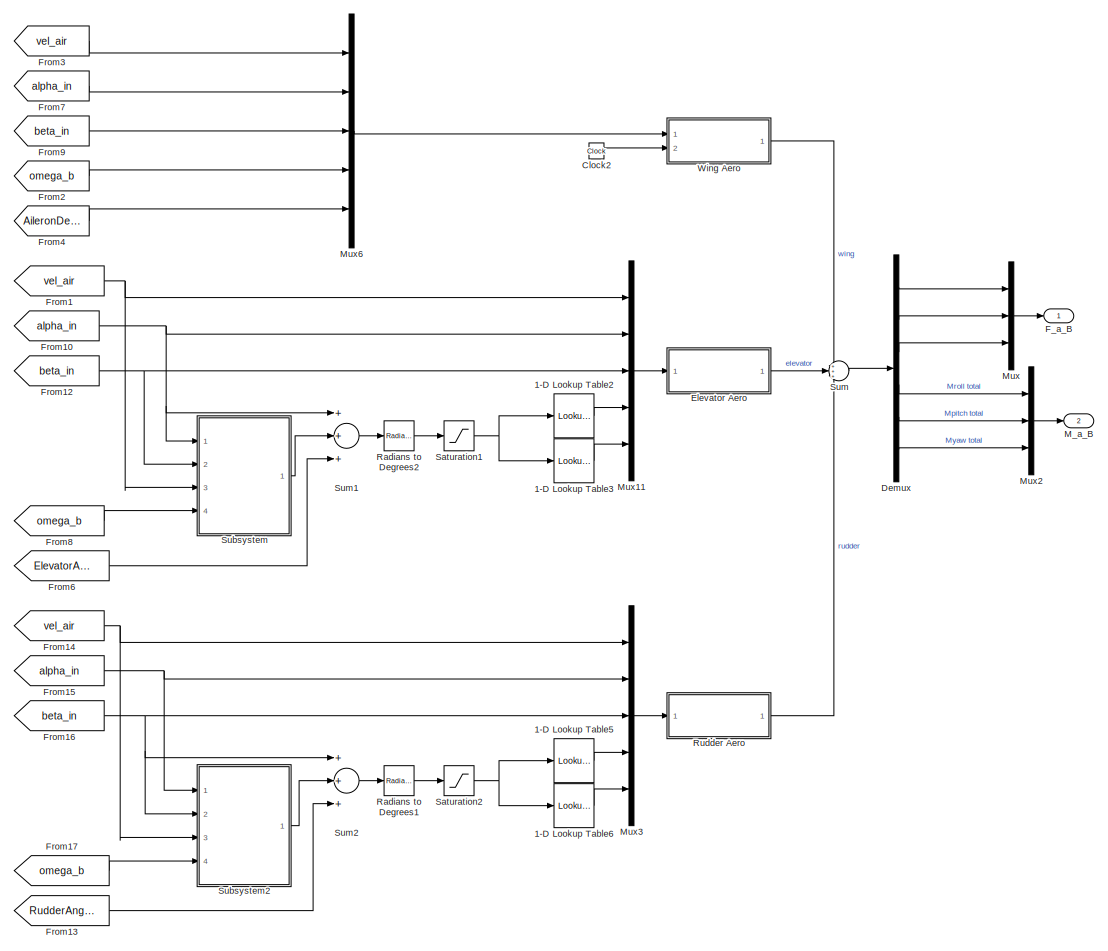
[diagram: AirborneSystem/ForcesAndTorques/aerodynamic forces FSI - part 1/2, most of the canvas]
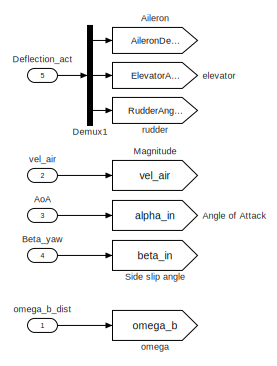
[diagram: AirborneSystem/ForcesAndTorques/aerodynamic forces FSI - part 2/2, middle left region]
BLOCK [SubSystem] AirborneSystem/ForcesAndTorques/aerodynamic forces FSI
  Ports = [5, 2]
  RequestExecContextInheritance = off
BLOCK [Lookup_n-D] AirborneSystem/ForcesAndTorques/aerodynamic forces FSI/1-D Lookup Table2
  BreakpointsForDimension1 = DE2019.alpha
  BreakpointsForDimension2 = [1 1]
  InternalRulePriority = Speed
  NumberOfTableDimensions = 1
  Ports = [1, 1]
  RndMeth = Simplest
  Table = DE2019.el_cL'
BLOCK [Lookup_n-D] AirborneSystem/ForcesAndTorques/aerodynamic forces FSI/1-D Lookup Table3
  BreakpointsForDimension1 = DE2019.alpha
  BreakpointsForDimension2 = [1 1]
  InternalRulePriority = Speed
  NumberOfTableDimensions = 1
  Ports = [1, 1]
  RndMeth = Simplest
  Table = DE2019.el_cD'
BLOCK [Lookup_n-D] AirborneSystem/ForcesAndTorques/aerodynamic forces FSI/1-D Lookup Table5
  BreakpointsForDimension1 = DE2019.alpha
  BreakpointsForDimension2 = [1 1]
  InternalRulePriority = Speed
  NumberOfTableDimensions = 1
  Ports = [1, 1]
  RndMeth = Simplest
  Table = DE2019.vs_cL'
BLOCK [Lookup_n-D] AirborneSystem/ForcesAndTorques/aerodynamic forces FSI/1-D Lookup Table6
  BreakpointsForDimension1 = DE2019.alpha
  BreakpointsForDimension2 = [1 1]
  InternalRulePriority = Speed
  NumberOfTableDimensions = 1
  Ports = [1, 1]
  RndMeth = Simplest
  Table = DE2019.vs_cD'
BLOCK [Goto] AirborneSystem/ForcesAndTorques/aerodynamic forces FSI/Aileron
  GotoTag = AileronDefl
BLOCK [Goto] AirborneSystem/ForcesAndTorques/aerodynamic forces FSI/Angle of Attack
  GotoTag = alpha_in
BLOCK [Inport] AirborneSystem/ForcesAndTorques/aerodynamic forces FSI/AoA
  IconDisplay = Port number
  Port = 3
BLOCK [Inport] AirborneSystem/ForcesAndTorques/aerodynamic forces FSI/Beta_yaw
  IconDisplay = Port number
  Port = 4
BLOCK [Clock] AirborneSystem/ForcesAndTorques/aerodynamic forces FSI/Clock2
BLOCK [Inport] AirborneSystem/ForcesAndTorques/aerodynamic forces FSI/Deflection_act
  IconDisplay = Port number
  Port = 5
BLOCK [Demux] AirborneSystem/ForcesAndTorques/aerodynamic forces FSI/Demux
  DisplayOption = bar
  Outputs = 6
  Ports = [1, 6]
BLOCK [Demux] AirborneSystem/ForcesAndTorques/aerodynamic forces FSI/Demux1
  DisplayOption = bar
  Outputs = 3
  Ports = [1, 3]
BLOCK [SubSystem] AirborneSystem/ForcesAndTorques/aerodynamic forces FSI/Elevator Aero
  Ports = [1, 1]
  RequestExecContextInheritance = off
BLOCK [SubSystem] AirborneSystem/ForcesAndTorques/aerodynamic forces FSI/Elevator Aero/Elevator_aero
  ErrorFcn = Stateflow.Translate.translate
  PermitHierarchicalResolution = ExplicitOnly
  Ports = [1, 1]
  RequestExecContextInheritance = off
  SFBlockType = MATLAB Function
  TreatAsAtomicUnit = on
BLOCK [Demux] AirborneSystem/ForcesAndTorques/aerodynamic forces FSI/Elevator Aero/Elevator_aero/ Demux 
  DisplayOption = bar
  Outputs = 1
  Ports = [1, 1]
BLOCK [S-Function] AirborneSystem/ForcesAndTorques/aerodynamic forces FSI/Elevator Aero/Elevator_aero/ SFunction 
  EnableBusSupport = on
  FunctionName = sf_sfun
  Parameters = DE2019,ENVMT
  PortCounts = [1 2]
  Ports = [1, 2]
  SFcnIsStateOwnerBlock = off
  SFunctionDeploymentMode = off
  Tag = Stateflow S-Function 54
BLOCK [Terminator] AirborneSystem/ForcesAndTorques/aerodynamic forces FSI/Elevator Aero/Elevator_aero/ Terminator 
BLOCK [Inport] AirborneSystem/ForcesAndTorques/aerodynamic forces FSI/Elevator Aero/Elevator_aero/input
  IconDisplay = Port number
BLOCK [Outport] AirborneSystem/ForcesAndTorques/aerodynamic forces FSI/Elevator Aero/Elevator_aero/out
  IconDisplay = Port number
  VectorParamsAs1DForOutWhenUnconnected = off
BLOCK [Inport] AirborneSystem/ForcesAndTorques/aerodynamic forces FSI/Elevator Aero/In
  IconDisplay = Port number
BLOCK [Outport] AirborneSystem/ForcesAndTorques/aerodynamic forces FSI/Elevator Aero/Out
  IconDisplay = Port number
  VectorParamsAs1DForOutWhenUnconnected = off
BLOCK [Outport] AirborneSystem/ForcesAndTorques/aerodynamic forces FSI/F_a_B
  IconDisplay = Port number
  VectorParamsAs1DForOutWhenUnconnected = off
BLOCK [From] AirborneSystem/ForcesAndTorques/aerodynamic forces FSI/From1
  GotoTag = vel_air
BLOCK [From] AirborneSystem/ForcesAndTorques/aerodynamic forces FSI/From10
  GotoTag = alpha_in
BLOCK [From] AirborneSystem/ForcesAndTorques/aerodynamic forces FSI/From12
  GotoTag = beta_in
BLOCK [From] AirborneSystem/ForcesAndTorques/aerodynamic forces FSI/From13
  GotoTag = RudderAngle
BLOCK [From] AirborneSystem/ForcesAndTorques/aerodynamic forces FSI/From14
  GotoTag = vel_air
BLOCK [From] AirborneSystem/ForcesAndTorques/aerodynamic forces FSI/From15
  GotoTag = alpha_in
BLOCK [From] AirborneSystem/ForcesAndTorques/aerodynamic forces FSI/From16
  GotoTag = beta_in
BLOCK [From] AirborneSystem/ForcesAndTorques/aerodynamic forces FSI/From17
  GotoTag = omega_b
BLOCK [From] AirborneSystem/ForcesAndTorques/aerodynamic forces FSI/From2
  GotoTag = omega_b
BLOCK [From] AirborneSystem/ForcesAndTorques/aerodynamic forces FSI/From3
  GotoTag = vel_air
BLOCK [From] AirborneSystem/ForcesAndTorques/aerodynamic forces FSI/From4
  GotoTag = AileronDefl
BLOCK [From] AirborneSystem/ForcesAndTorques/aerodynamic forces FSI/From6
  GotoTag = ElevatorAngle
BLOCK [From] AirborneSystem/ForcesAndTorques/aerodynamic forces FSI/From7
  GotoTag = alpha_in
BLOCK [From] AirborneSystem/ForcesAndTorques/aerodynamic forces FSI/From8
  GotoTag = omega_b
BLOCK [From] AirborneSystem/ForcesAndTorques/aerodynamic forces FSI/From9
  GotoTag = beta_in
BLOCK [Outport] AirborneSystem/ForcesAndTorques/aerodynamic forces FSI/M_a_B
  IconDisplay = Port number
  Port = 2
  VectorParamsAs1DForOutWhenUnconnected = off
BLOCK [Goto] AirborneSystem/ForcesAndTorques/aerodynamic forces FSI/Magnitude
  GotoTag = vel_air
BLOCK [Mux] AirborneSystem/ForcesAndTorques/aerodynamic forces FSI/Mux
  DisplayOption = bar
  Inputs = 3
  Ports = [3, 1]
BLOCK [Mux] AirborneSystem/ForcesAndTorques/aerodynamic forces FSI/Mux11
  DisplayOption = bar
  Inputs = 5
  Ports = [5, 1]
BLOCK [Mux] AirborneSystem/ForcesAndTorques/aerodynamic forces FSI/Mux2
  DisplayOption = bar
  Inputs = 3
  Ports = [3, 1]
BLOCK [Mux] AirborneSystem/ForcesAndTorques/aerodynamic forces FSI/Mux3
  DisplayOption = bar
  Inputs = 5
  Ports = [5, 1]
BLOCK [Mux] AirborneSystem/ForcesAndTorques/aerodynamic forces FSI/Mux6
  DisplayOption = bar
  Inputs = 5
  Ports = [5, 1]
BLOCK [Reference] AirborneSystem/ForcesAndTorques/aerodynamic forces FSI/Radians to Degrees1  REF=simulink_extras/Transformations/Radians
to Degrees
  Ports = [1, 1]
  SourceBlock = simulink_extras/Transformations/Radians\nto Degrees
  SourceProductBaseCode = SL
  SourceType = RadiansToDegrees
BLOCK [Reference] AirborneSystem/ForcesAndTorques/aerodynamic forces FSI/Radians to Degrees2  REF=simulink_extras/Transformations/Radians
to Degrees
  Ports = [1, 1]
  SourceBlock = simulink_extras/Transformations/Radians\nto Degrees
  SourceProductBaseCode = SL
  SourceType = RadiansToDegrees
BLOCK [SubSystem] AirborneSystem/ForcesAndTorques/aerodynamic forces FSI/Rudder Aero
  Ports = [1, 1]
  RequestExecContextInheritance = off
BLOCK [Inport] AirborneSystem/ForcesAndTorques/aerodynamic forces FSI/Rudder Aero/In
  IconDisplay = Port number
BLOCK [Outport] AirborneSystem/ForcesAndTorques/aerodynamic forces FSI/Rudder Aero/Out
  IconDisplay = Port number
  VectorParamsAs1DForOutWhenUnconnected = off
BLOCK [SubSystem] AirborneSystem/ForcesAndTorques/aerodynamic forces FSI/Rudder Aero/Rudder_aero
  ErrorFcn = Stateflow.Translate.translate
  PermitHierarchicalResolution = ExplicitOnly
  Ports = [1, 1]
  RequestExecContextInheritance = off
  SFBlockType = MATLAB Function
  TreatAsAtomicUnit = on
BLOCK [Demux] AirborneSystem/ForcesAndTorques/aerodynamic forces FSI/Rudder Aero/Rudder_aero/ Demux 
  DisplayOption = bar
  Outputs = 1
  Ports = [1, 1]
BLOCK [S-Function] AirborneSystem/ForcesAndTorques/aerodynamic forces FSI/Rudder Aero/Rudder_aero/ SFunction 
  EnableBusSupport = on
  FunctionName = sf_sfun
  Parameters = DE2019,ENVMT
  PortCounts = [1 2]
  Ports = [1, 2]
  SFcnIsStateOwnerBlock = off
  SFunctionDeploymentMode = off
  Tag = Stateflow S-Function 87
BLOCK [Terminator] AirborneSystem/ForcesAndTorques/aerodynamic forces FSI/Rudder Aero/Rudder_aero/ Terminator 
BLOCK [Inport] AirborneSystem/ForcesAndTorques/aerodynamic forces FSI/Rudder Aero/Rudder_aero/input
  IconDisplay = Port number
BLOCK [Outport] AirborneSystem/ForcesAndTorques/aerodynamic forces FSI/Rudder Aero/Rudder_aero/out
  IconDisplay = Port number
  VectorParamsAs1DForOutWhenUnconnected = off
BLOCK [Saturate] AirborneSystem/ForcesAndTorques/aerodynamic forces FSI/Saturation1
  InputPortMap = u0
  LowerLimit = min(DE2019.alpha)
  Ports = [1, 1]
  UpperLimit = max(DE2019.alpha)
BLOCK [Saturate] AirborneSystem/ForcesAndTorques/aerodynamic forces FSI/Saturation2
  InputPortMap = u0
  LowerLimit = min(DE2019.alpha)
  Ports = [1, 1]
  UpperLimit = max(DE2019.alpha)
BLOCK [Goto] AirborneSystem/ForcesAndTorques/aerodynamic forces FSI/Side slip angle
  GotoTag = beta_in
BLOCK [SubSystem] AirborneSystem/ForcesAndTorques/aerodynamic forces FSI/Subsystem
  Ports = [4, 1]
  RequestExecContextInheritance = off
BLOCK [Trigonometry] AirborneSystem/ForcesAndTorques/aerodynamic forces FSI/Subsystem/Atan2
  Operator = atan2
  Ports = [2, 1]
BLOCK [Constant] AirborneSystem/ForcesAndTorques/aerodynamic forces FSI/Subsystem/Constant
  Value = (DE2019.x_el+DE2019.c_el*0.25)
BLOCK [Trigonometry] AirborneSystem/ForcesAndTorques/aerodynamic forces FSI/Subsystem/Cos
  Operator = cos
  Ports = [1, 1]
BLOCK [Trigonometry] AirborneSystem/ForcesAndTorques/aerodynamic forces FSI/Subsystem/Cos1
  Operator = cos
  Ports = [1, 1]
BLOCK [Inport] AirborneSystem/ForcesAndTorques/aerodynamic forces FSI/Subsystem/Omega
  IconDisplay = Port number
  Port = 4
BLOCK [Product] AirborneSystem/ForcesAndTorques/aerodynamic forces FSI/Subsystem/Product
  InputSameDT = off
  Inputs = 3
  OutDataTypeStr = Inherit: Inherit via internal rule
  Ports = [3, 1]
  RndMeth = Floor
  SaturateOnIntegerOverflow = off
BLOCK [Product] AirborneSystem/ForcesAndTorques/aerodynamic forces FSI/Subsystem/Product1
  Commented = on
  InputSameDT = off
  OutDataTypeStr = Inherit: Inherit via internal rule
  Ports = [2, 1]
  RndMeth = Floor
  SaturateOnIntegerOverflow = off
BLOCK [Product] AirborneSystem/ForcesAndTorques/aerodynamic forces FSI/Subsystem/Product2
  Commented = on
  InputSameDT = off
  Inputs = 3
  OutDataTypeStr = Inherit: Inherit via internal rule
  Ports = [3, 1]
  RndMeth = Floor
  SaturateOnIntegerOverflow = off
BLOCK [Product] AirborneSystem/ForcesAndTorques/aerodynamic forces FSI/Subsystem/Product3
  InputSameDT = off
  OutDataTypeStr = Inherit: Inherit via internal rule
  Ports = [2, 1]
  RndMeth = Floor
  SaturateOnIntegerOverflow = off
BLOCK [Selector] AirborneSystem/ForcesAndTorques/aerodynamic forces FSI/Subsystem/Selector
  IndexOptions = Index vector (dialog)
  Indices = 1
  InputPortWidth = 3
  OutputSizes = 1
  Ports = [1, 1]
BLOCK [Trigonometry] AirborneSystem/ForcesAndTorques/aerodynamic forces FSI/Subsystem/Sin
  Commented = on
  Ports = [1, 1]
BLOCK [Trigonometry] AirborneSystem/ForcesAndTorques/aerodynamic forces FSI/Subsystem/Sin1
  Commented = on
  Ports = [1, 1]
BLOCK [Terminator] AirborneSystem/ForcesAndTorques/aerodynamic forces FSI/Subsystem/Terminator
  Commented = on
BLOCK [Terminator] AirborneSystem/ForcesAndTorques/aerodynamic forces FSI/Subsystem/Terminator1
  Commented = on
BLOCK [Inport] AirborneSystem/ForcesAndTorques/aerodynamic forces FSI/Subsystem/alpha
  IconDisplay = Port number
BLOCK [Outport] AirborneSystem/ForcesAndTorques/aerodynamic forces FSI/Subsystem/alpha_damp
  IconDisplay = Port number
  VectorParamsAs1DForOutWhenUnconnected = off
BLOCK [Inport] AirborneSystem/ForcesAndTorques/aerodynamic forces FSI/Subsystem/beta
  IconDisplay = Port number
  Port = 2
BLOCK [Inport] AirborneSystem/ForcesAndTorques/aerodynamic forces FSI/Subsystem/velocity
  IconDisplay = Port number
  Port = 3
BLOCK [SubSystem] AirborneSystem/ForcesAndTorques/aerodynamic forces FSI/Subsystem2
  Ports = [4, 1]
  RequestExecContextInheritance = off
BLOCK [Trigonometry] AirborneSystem/ForcesAndTorques/aerodynamic forces FSI/Subsystem2/Atan2
  Operator = atan2
  Ports = [2, 1]
BLOCK [Constant] AirborneSystem/ForcesAndTorques/aerodynamic forces FSI/Subsystem2/Constant
  Value = (DE2019.x_el+DE2019.c_el*0.25)
BLOCK [Trigonometry] AirborneSystem/ForcesAndTorques/aerodynamic forces FSI/Subsystem2/Cos
  Operator = cos
  Ports = [1, 1]
BLOCK [Trigonometry] AirborneSystem/ForcesAndTorques/aerodynamic forces FSI/Subsystem2/Cos1
  Operator = cos
  Ports = [1, 1]
BLOCK [Gain] AirborneSystem/ForcesAndTorques/aerodynamic forces FSI/Subsystem2/Gain
  Gain = -1
  OutDataTypeStr = Inherit: Inherit via internal rule
  ParamDataTypeStr = Inherit: Inherit via internal rule
  SaturateOnIntegerOverflow = off
BLOCK [Inport] AirborneSystem/ForcesAndTorques/aerodynamic forces FSI/Subsystem2/Omega
  IconDisplay = Port number
  Port = 4
BLOCK [Product] AirborneSystem/ForcesAndTorques/aerodynamic forces FSI/Subsystem2/Product
  InputSameDT = off
  Inputs = 3
  OutDataTypeStr = Inherit: Inherit via internal rule
  Ports = [3, 1]
  RndMeth = Floor
  SaturateOnIntegerOverflow = off
BLOCK [Product] AirborneSystem/ForcesAndTorques/aerodynamic forces FSI/Subsystem2/Product1
  Commented = on
  InputSameDT = off
  OutDataTypeStr = Inherit: Inherit via internal rule
  Ports = [2, 1]
  RndMeth = Floor
  SaturateOnIntegerOverflow = off
BLOCK [Product] AirborneSystem/ForcesAndTorques/aerodynamic forces FSI/Subsystem2/Product2
  Commented = on
  InputSameDT = off
  Inputs = 3
  OutDataTypeStr = Inherit: Inherit via internal rule
  Ports = [3, 1]
  RndMeth = Floor
  SaturateOnIntegerOverflow = off
BLOCK [Product] AirborneSystem/ForcesAndTorques/aerodynamic forces FSI/Subsystem2/Product3
  InputSameDT = off
  OutDataTypeStr = Inherit: Inherit via internal rule
  Ports = [2, 1]
  RndMeth = Floor
  SaturateOnIntegerOverflow = off
BLOCK [Selector] AirborneSystem/ForcesAndTorques/aerodynamic forces FSI/Subsystem2/Selector
  IndexOptions = Index vector (dialog)
  Indices = 3
  InputPortWidth = 3
  OutputSizes = 1
  Ports = [1, 1]
BLOCK [Trigonometry] AirborneSystem/ForcesAndTorques/aerodynamic forces FSI/Subsystem2/Sin
  Commented = on
  Ports = [1, 1]
BLOCK [Trigonometry] AirborneSystem/ForcesAndTorques/aerodynamic forces FSI/Subsystem2/Sin1
  Commented = on
  Ports = [1, 1]
BLOCK [Inport] AirborneSystem/ForcesAndTorques/aerodynamic forces FSI/Subsystem2/alpha
  IconDisplay = Port number
BLOCK [Inport] AirborneSystem/ForcesAndTorques/aerodynamic forces FSI/Subsystem2/beta
  IconDisplay = Port number
  Port = 2
BLOCK [Outport] AirborneSystem/ForcesAndTorques/aerodynamic forces FSI/Subsystem2/beta_damp
  IconDisplay = Port number
  VectorParamsAs1DForOutWhenUnconnected = off
BLOCK [Inport] AirborneSystem/ForcesAndTorques/aerodynamic forces FSI/Subsystem2/velocity
  IconDisplay = Port number
  Port = 3
BLOCK [Sum] AirborneSystem/ForcesAndTorques/aerodynamic forces FSI/Sum
  IconShape = round
  InputSameDT = off
  Inputs = +++
  OutDataTypeStr = Inherit: Inherit via internal rule
  Ports = [3, 1]
  SaturateOnIntegerOverflow = off
BLOCK [Sum] AirborneSystem/ForcesAndTorques/aerodynamic forces FSI/Sum1
  InputSameDT = off
  Inputs = +++
  OutDataTypeStr = Inherit: Inherit via internal rule
  Ports = [3, 1]
  SaturateOnIntegerOverflow = off
BLOCK [Sum] AirborneSystem/ForcesAndTorques/aerodynamic forces FSI/Sum2
  InputSameDT = off
  Inputs = +++
  OutDataTypeStr = Inherit: Inherit via internal rule
  Ports = [3, 1]
  SaturateOnIntegerOverflow = off
BLOCK [SubSystem] AirborneSystem/ForcesAndTorques/aerodynamic forces FSI/Wing Aero
  Ports = [2, 1]
  RequestExecContextInheritance = off
  SystemSampleTime = 0.01
  TreatAsAtomicUnit = on
BLOCK [Constant] AirborneSystem/ForcesAndTorques/aerodynamic forces FSI/Wing Aero/Constant
BLOCK [Constant] AirborneSystem/ForcesAndTorques/aerodynamic forces FSI/Wing Aero/Constant1
  Value = 0
BLOCK [If] AirborneSystem/ForcesAndTorques/aerodynamic forces FSI/Wing Aero/If
  IfExpression = u1 >= 1
  Ports = [1, 2]
BLOCK [SubSystem] AirborneSystem/ForcesAndTorques/aerodynamic forces FSI/Wing Aero/If Action Subsystem
  Ports = [2, 1, 0, 0, 0, 0, 0, 1]
  RequestExecContextInheritance = off
  TreatAsAtomicUnit = on
BLOCK [ActionPort] AirborneSystem/ForcesAndTorques/aerodynamic forces FSI/Wing Aero/If Action Subsystem/Action Port
  ActionPortLabel = if(u1 >= 1)
BLOCK [Demux] AirborneSystem/ForcesAndTorques/aerodynamic forces FSI/Wing Aero/If Action Subsystem/Demux1
  DisplayOption = bar
  Outputs = 6
  Ports = [1, 6]
BLOCK [Inport] AirborneSystem/ForcesAndTorques/aerodynamic forces FSI/Wing Aero/If Action Subsystem/FSI_in
  IconDisplay = Port number
BLOCK [Outport] AirborneSystem/ForcesAndTorques/aerodynamic forces FSI/Wing Aero/If Action Subsystem/FSI_out
  IconDisplay = Port number
  VectorParamsAs1DForOutWhenUnconnected = off
BLOCK [MATLABFcn] AirborneSystem/ForcesAndTorques/aerodynamic forces FSI/Wing Aero/If Action Subsystem/FSI_sim
  Commented = on
  MATLABFcn = Init_FSIsim
  Output1D = off
  OutputDimensions = [6,1]
  Ports = [1, 1]
BLOCK [SubSystem] AirborneSystem/ForcesAndTorques/aerodynamic forces FSI/Wing Aero/If Action Subsystem/MATLAB Function
  ErrorFcn = Stateflow.Translate.translate
  PermitHierarchicalResolution = ExplicitOnly
  Ports = [1, 1]
  RequestExecContextInheritance = off
  SFBlockType = MATLAB Function
  TreatAsAtomicUnit = on
BLOCK [Demux] AirborneSystem/ForcesAndTorques/aerodynamic forces FSI/Wing Aero/If Action Subsystem/MATLAB Function/ Demux 
  DisplayOption = bar
  Outputs = 1
  Ports = [1, 1]
BLOCK [S-Function] AirborneSystem/ForcesAndTorques/aerodynamic forces FSI/Wing Aero/If Action Subsystem/MATLAB Function/ SFunction 
  EnableBusSupport = on
  FunctionName = sf_sfun
  PortCounts = [1 2]
  Ports = [1, 2]
  SFcnIsStateOwnerBlock = off
  SFunctionDeploymentMode = off
  Tag = Stateflow S-Function 13
BLOCK [Terminator] AirborneSystem/ForcesAndTorques/aerodynamic forces FSI/Wing Aero/If Action Subsystem/MATLAB Function/ Terminator 
BLOCK [Inport] AirborneSystem/ForcesAndTorques/aerodynamic forces FSI/Wing Aero/If Action Subsystem/MATLAB Function/u
  IconDisplay = Port number
BLOCK [Outport] AirborneSystem/ForcesAndTorques/aerodynamic forces FSI/Wing Aero/If Action Subsystem/MATLAB Function/y
  IconDisplay = Port number
BLOCK [Mux] AirborneSystem/ForcesAndTorques/aerodynamic forces FSI/Wing Aero/If Action Subsystem/Mux6
  DisplayOption = bar
  Inputs = 2
  Ports = [2, 1]
BLOCK [Terminator] AirborneSystem/ForcesAndTorques/aerodynamic forces FSI/Wing Aero/If Action Subsystem/Terminator1
  Commented = on
BLOCK [Terminator] AirborneSystem/ForcesAndTorques/aerodynamic forces FSI/Wing Aero/If Action Subsystem/Terminator2
  Commented = on
BLOCK [Terminator] AirborneSystem/ForcesAndTorques/aerodynamic forces FSI/Wing Aero/If Action Subsystem/Terminator3
  Commented = on
BLOCK [Terminator] AirborneSystem/ForcesAndTorques/aerodynamic forces FSI/Wing Aero/If Action Subsystem/Terminator4
  Commented = on
BLOCK [Terminator] AirborneSystem/ForcesAndTorques/aerodynamic forces FSI/Wing Aero/If Action Subsystem/Terminator5
  Commented = on
BLOCK [Terminator] AirborneSystem/ForcesAndTorques/aerodynamic forces FSI/Wing Aero/If Action Subsystem/Terminator7
  Commented = on
BLOCK [Inport] AirborneSystem/ForcesAndTorques/aerodynamic forces FSI/Wing Aero/If Action Subsystem/simTime
  IconDisplay = Port number
  Port = 2
BLOCK [SubSystem] AirborneSystem/ForcesAndTorques/aerodynamic forces FSI/Wing Aero/If Action Subsystem1
  Ports = [1, 1, 0, 0, 0, 0, 0, 1]
  RequestExecContextInheritance = off
  TreatAsAtomicUnit = on
BLOCK [ActionPort] AirborneSystem/ForcesAndTorques/aerodynamic forces FSI/Wing Aero/If Action Subsystem1/Action Port
  ActionPortLabel = else
BLOCK [SubSystem] AirborneSystem/ForcesAndTorques/aerodynamic forces FSI/Wing Aero/If Action Subsystem1/FSI
  Ports = [1, 1]
  RequestExecContextInheritance = off
BLOCK [Lookup_n-D] AirborneSystem/ForcesAndTorques/aerodynamic forces FSI/Wing Aero/If Action Subsystem1/FSI/1-D Lookup Table
  BreakpointsForDimension1 = DE2019.initAircraft.alpha
  BreakpointsForDimension2 = [1 1]
  InternalRulePriority = Speed
  NumberOfTableDimensions = 1
  Ports = [1, 1]
  RndMeth = Simplest
  Table = DE2019.initAircraft.wing_cL_Static'
BLOCK [Lookup_n-D] AirborneSystem/ForcesAndTorques/aerodynamic forces FSI/Wing Aero/If Action Subsystem1/FSI/1-D Lookup Table1
  BreakpointsForDimension1 = DE2019.initAircraft.alpha
  BreakpointsForDimension2 = [1 1]
  InternalRulePriority = Speed
  NumberOfTableDimensions = 1
  Ports = [1, 1]
  RndMeth = Simplest
  Table = DE2019.initAircraft.wing_cD_Static'
BLOCK [Lookup_n-D] AirborneSystem/ForcesAndTorques/aerodynamic forces FSI/Wing Aero/If Action Subsystem1/FSI/1-D Lookup Table4
  BreakpointsForDimension1 = DE2019.initAircraft.alpha
  BreakpointsForDimension2 = [1 1]
  InternalRulePriority = Speed
  NumberOfTableDimensions = 1
  Ports = [1, 1]
  RndMeth = Simplest
  Table = DE2019.initAircraft.wing_cM_Static'
BLOCK [Demux] AirborneSystem/ForcesAndTorques/aerodynamic forces FSI/Wing Aero/If Action Subsystem1/FSI/Demux
  DisplayOption = bar
  Outputs = 5
  Ports = [1, 5]
BLOCK [Gain] AirborneSystem/ForcesAndTorques/aerodynamic forces FSI/Wing Aero/If Action Subsystem1/FSI/Gain1
  Gain = DE2019.initAircraft.wing_cRoll_Static
  OutDataTypeStr = Inherit: Inherit via internal rule
  ParamDataTypeStr = Inherit: Inherit via internal rule
  SaturateOnIntegerOverflow = off
BLOCK [Inport] AirborneSystem/ForcesAndTorques/aerodynamic forces FSI/Wing Aero/If Action Subsystem1/FSI/In1
  IconDisplay = Port number
BLOCK [Mux] AirborneSystem/ForcesAndTorques/aerodynamic forces FSI/Wing Aero/If Action Subsystem1/FSI/Mux6
  DisplayOption = bar
  Inputs = 6
  Ports = [6, 1]
BLOCK [Outport] AirborneSystem/ForcesAndTorques/aerodynamic forces FSI/Wing Aero/If Action Subsystem1/FSI/Out1
  IconDisplay = Port number
  VectorParamsAs1DForOutWhenUnconnected = off
BLOCK [Reference] AirborneSystem/ForcesAndTorques/aerodynamic forces FSI/Wing Aero/If Action Subsystem1/FSI/Radians to Degrees  REF=simulink_extras/Transformations/Radians
to Degrees
  Ports = [1, 1]
  SourceBlock = simulink_extras/Transformations/Radians\nto Degrees
  SourceProductBaseCode = SL
  SourceType = RadiansToDegrees
BLOCK [Saturate] AirborneSystem/ForcesAndTorques/aerodynamic forces FSI/Wing Aero/If Action Subsystem1/FSI/Saturation
  InputPortMap = u0
  LowerLimit = min(DE2019.initAircraft.alpha)
  Ports = [1, 1]
  UpperLimit = max(DE2019.initAircraft.alpha)
BLOCK [Saturate] AirborneSystem/ForcesAndTorques/aerodynamic forces FSI/Wing Aero/If Action Subsystem1/FSI/Saturation3
  InputPortMap = u0
  LowerLimit = act.aileron.min_deflection
  Ports = [1, 1]
  UpperLimit = act.aileron.max_deflection
BLOCK [SubSystem] AirborneSystem/ForcesAndTorques/aerodynamic forces FSI/Wing Aero/If Action Subsystem1/FSI/Simple_wing_aero
  ErrorFcn = Stateflow.Translate.translate
  PermitHierarchicalResolution = ExplicitOnly
  Ports = [1, 1]
  RequestExecContextInheritance = off
  SFBlockType = MATLAB Function
  TreatAsAtomicUnit = on
BLOCK [Demux] AirborneSystem/ForcesAndTorques/aerodynamic forces FSI/Wing Aero/If Action Subsystem1/FSI/Simple_wing_aero/ Demux 
  DisplayOption = bar
  Outputs = 1
  Ports = [1, 1]
BLOCK [S-Function] AirborneSystem/ForcesAndTorques/aerodynamic forces FSI/Wing Aero/If Action Subsystem1/FSI/Simple_wing_aero/ SFunction 
  EnableBusSupport = on
  FunctionName = sf_sfun
  Parameters = DE2019,ENVMT
  PortCounts = [1 2]
  Ports = [1, 2]
  SFcnIsStateOwnerBlock = off
  SFunctionDeploymentMode = off
  Tag = Stateflow S-Function 33
BLOCK [Terminator] AirborneSystem/ForcesAndTorques/aerodynamic forces FSI/Wing Aero/If Action Subsystem1/FSI/Simple_wing_aero/ Terminator 
BLOCK [Inport] AirborneSystem/ForcesAndTorques/aerodynamic forces FSI/Wing Aero/If Action Subsystem1/FSI/Simple_wing_aero/input
  IconDisplay = Port number
BLOCK [Outport] AirborneSystem/ForcesAndTorques/aerodynamic forces FSI/Wing Aero/If Action Subsystem1/FSI/Simple_wing_aero/out
  IconDisplay = Port number
  VectorParamsAs1DForOutWhenUnconnected = off
BLOCK [SubSystem] AirborneSystem/ForcesAndTorques/aerodynamic forces FSI/Wing Aero/If Action Subsystem1/FSI/Subsystem1
  Ports = [4, 1]
  RequestExecContextInheritance = off
BLOCK [Trigonometry] AirborneSystem/ForcesAndTorques/aerodynamic forces FSI/Wing Aero/If Action Subsystem1/FSI/Subsystem1/Atan2
  Operator = atan2
  Ports = [2, 1]
BLOCK [Constant] AirborneSystem/ForcesAndTorques/aerodynamic forces FSI/Wing Aero/If Action Subsystem1/FSI/Subsystem1/Constant
  Value = (DE2019.b*0.75)
BLOCK [Trigonometry] AirborneSystem/ForcesAndTorques/aerodynamic forces FSI/Wing Aero/If Action Subsystem1/FSI/Subsystem1/Cos
  Operator = cos
  Ports = [1, 1]
BLOCK [Trigonometry] AirborneSystem/ForcesAndTorques/aerodynamic forces FSI/Wing Aero/If Action Subsystem1/FSI/Subsystem1/Cos1
  Operator = cos
  Ports = [1, 1]
BLOCK [Product] AirborneSystem/ForcesAndTorques/aerodynamic forces FSI/Wing Aero/If Action Subsystem1/FSI/Subsystem1/Divide
  InputSameDT = off
  Inputs = */
  OutDataTypeStr = Inherit: Inherit via internal rule
  Ports = [2, 1]
  RndMeth = Floor
  SaturateOnIntegerOverflow = off
BLOCK [Inport] AirborneSystem/ForcesAndTorques/aerodynamic forces FSI/Wing Aero/If Action Subsystem1/FSI/Subsystem1/Omega
  IconDisplay = Port number
  Port = 4
BLOCK [Product] AirborneSystem/ForcesAndTorques/aerodynamic forces FSI/Wing Aero/If Action Subsystem1/FSI/Subsystem1/Product
  InputSameDT = off
  Inputs = 3
  OutDataTypeStr = Inherit: Inherit via internal rule
  Ports = [3, 1]
  RndMeth = Floor
  SaturateOnIntegerOverflow = off
BLOCK [Product] AirborneSystem/ForcesAndTorques/aerodynamic forces FSI/Wing Aero/If Action Subsystem1/FSI/Subsystem1/Product3
  InputSameDT = off
  OutDataTypeStr = Inherit: Inherit via internal rule
  Ports = [2, 1]
  RndMeth = Floor
  SaturateOnIntegerOverflow = off
BLOCK [Selector] AirborneSystem/ForcesAndTorques/aerodynamic forces FSI/Wing Aero/If Action Subsystem1/FSI/Subsystem1/Selector
  IndexOptions = Index vector (dialog)
  Indices = 1
  InputPortWidth = 3
  OutputSizes = 1
  Ports = [1, 1]
BLOCK [Inport] AirborneSystem/ForcesAndTorques/aerodynamic forces FSI/Wing Aero/If Action Subsystem1/FSI/Subsystem1/alpha
  IconDisplay = Port number
BLOCK [Inport] AirborneSystem/ForcesAndTorques/aerodynamic forces FSI/Wing Aero/If Action Subsystem1/FSI/Subsystem1/beta
  IconDisplay = Port number
  Port = 2
BLOCK [Outport] AirborneSystem/ForcesAndTorques/aerodynamic forces FSI/Wing Aero/If Action Subsystem1/FSI/Subsystem1/defl_damp
  IconDisplay = Port number
  VectorParamsAs1DForOutWhenUnconnected = off
BLOCK [Constant] AirborneSystem/ForcesAndTorques/aerodynamic forces FSI/Wing Aero/If Action Subsystem1/FSI/Subsystem1/max deflection (estimated)
  Value = 0.6109
BLOCK [Inport] AirborneSystem/ForcesAndTorques/aerodynamic forces FSI/Wing Aero/If Action Subsystem1/FSI/Subsystem1/velocity
  IconDisplay = Port number
  Port = 3
BLOCK [Sum] AirborneSystem/ForcesAndTorques/aerodynamic forces FSI/Wing Aero/If Action Subsystem1/FSI/Sum3
  InputSameDT = off
  Inputs = +-
  OutDataTypeStr = Inherit: Inherit via internal rule
  Ports = [2, 1]
  SaturateOnIntegerOverflow = off
BLOCK [Inport] AirborneSystem/ForcesAndTorques/aerodynamic forces FSI/Wing Aero/If Action Subsystem1/Simple_in
  IconDisplay = Port number
BLOCK [Outport] AirborneSystem/ForcesAndTorques/aerodynamic forces FSI/Wing Aero/If Action Subsystem1/Simple_out
  IconDisplay = Port number
  VectorParamsAs1DForOutWhenUnconnected = off
BLOCK [Merge] AirborneSystem/ForcesAndTorques/aerodynamic forces FSI/Wing Aero/Merge
  Ports = [2, 1]
BLOCK [Switch] AirborneSystem/ForcesAndTorques/aerodynamic forces FSI/Wing Aero/Switch
  InputSameDT = off
  SaturateOnIntegerOverflow = off
  Threshold = simInit.FSI_switchtime
BLOCK [Inport] AirborneSystem/ForcesAndTorques/aerodynamic forces FSI/Wing Aero/Wing_In
  IconDisplay = Port number
BLOCK [Outport] AirborneSystem/ForcesAndTorques/aerodynamic forces FSI/Wing Aero/Wing_Out
  IconDisplay = Port number
  VectorParamsAs1DForOutWhenUnconnected = off
BLOCK [Inport] AirborneSystem/ForcesAndTorques/aerodynamic forces FSI/Wing Aero/time
  IconDisplay = Port number
  Port = 2
BLOCK [Goto] AirborneSystem/ForcesAndTorques/aerodynamic forces FSI/elevator
  GotoTag = ElevatorAngle
BLOCK [Goto] AirborneSystem/ForcesAndTorques/aerodynamic forces FSI/omega
  GotoTag = omega_b
BLOCK [Inport] AirborneSystem/ForcesAndTorques/aerodynamic forces FSI/omega_b_dist
  IconDisplay = Port number
BLOCK [Goto] AirborneSystem/ForcesAndTorques/aerodynamic forces FSI/rudder
  GotoTag = RudderAngle
BLOCK [Inport] AirborneSystem/ForcesAndTorques/aerodynamic forces FSI/vel_air
  IconDisplay = Port number
  Port = 2
BLOCK [Inport] AirborneSystem/ForcesAndTorques/throttle//brake
  IconDisplay = Port number
  Port = 2
BLOCK [Inport] AirborneSystem/ForcesAndTorques/u_cmd
  IconDisplay = Port number
BLOCK [Inport] AirborneSystem/Ft_Kite_W
  IconDisplay = Port number
  Port = 2
BLOCK [Inport] AirborneSystem/Ft_set
  IconDisplay = Port number
BLOCK [Outport] AirborneSystem/M_OB
  IconDisplay = Port number
  Port = 2
  VectorParamsAs1DForOutWhenUnconnected = off
BLOCK [Sqrt] AirborneSystem/Sqrt
BLOCK [Outport] AirborneSystem/StateEstimation_Bus
  IconDisplay = Port number
  VectorParamsAs1DForOutWhenUnconnected = off
BLOCK [Inport] AirborneSystem/flightMode
  IconDisplay = Port number
  Port = 3
BLOCK [DotProduct] Dot Product3
  Commented = on
  OutDataTypeStr = Inherit: Inherit via internal rule
BLOCK [SubSystem] Environment
  BlockKeywords = __PRM__SERIALIZED__DATA__:SubsystemReferenceBlock
  Ports = [3, 1]
  ReferencedSubsystem = Environment
  RequestExecContextInheritance = off
BLOCK [Goto] Goto1
  GotoTag = flight_mode
  TagVisibility = global
BLOCK [Goto] Goto2
  GotoTag = tether_length
  TagVisibility = global
BLOCK [Goto] Goto3
  GotoTag = V_ro
  TagVisibility = global
BLOCK [SubSystem] GroundSystem
  BlockKeywords = __PRM__SERIALIZED__DATA__:SubsystemReferenceBlock
  Ports = [2, 2]
  ReferencedSubsystem = GroundSystem
  RequestExecContextInheritance = off
BLOCK [SubSystem] ParticleTetherModel
  Ports = [3, 3]
  RequestExecContextInheritance = off
BLOCK [BusSelector] ParticleTetherModel/Bus Selector
  OutputAsBus = off
  OutputSignals = pos_G_W,vel_W
  Ports = [1, 2]
BLOCK [DotProduct] ParticleTetherModel/Dot Product2
  Commented = on
  OutDataTypeStr = Inherit: Inherit via internal rule
BLOCK [Outport] ParticleTetherModel/Ft_Kite_W
  IconDisplay = Port number
  VectorParamsAs1DForOutWhenUnconnected = off
BLOCK [Outport] ParticleTetherModel/Ft_ground_W
  IconDisplay = Port number
  Port = 3
  VectorParamsAs1DForOutWhenUnconnected = off
BLOCK [Goto] ParticleTetherModel/Goto
  GotoTag = p_t_z
  TagVisibility = global
BLOCK [Goto] ParticleTetherModel/Goto1
  GotoTag = p_t_y
  TagVisibility = global
BLOCK [Goto] ParticleTetherModel/Goto2
  GotoTag = p_t_x
  TagVisibility = global
BLOCK [Selector] ParticleTetherModel/Selector
  IndexOptions = Index vector (dialog),Select all
  Indices = 1,1
  InputPortWidth = 3
  NumberOfDimensions = 2
  OutputSizes = 1,1
  Ports = [1, 1]
BLOCK [Selector] ParticleTetherModel/Selector4
  IndexOptions = Index vector (dialog),Select all
  Indices = 2,1
  InputPortWidth = 3
  NumberOfDimensions = 2
  OutputSizes = 1,1
  Ports = [1, 1]
BLOCK [Selector] ParticleTetherModel/Selector5
  IndexOptions = Index vector (dialog),Select all
  Indices = 3,1
  InputPortWidth = 3
  NumberOfDimensions = 2
  OutputSizes = 1,1
  Ports = [1, 1]
BLOCK [Sqrt] ParticleTetherModel/Sqrt2
  Commented = on
BLOCK [Inport] ParticleTetherModel/StateEstimation_Bus
  IconDisplay = Port number
  Port = 2
BLOCK [SubSystem] ParticleTetherModel/Tether
  Ports = [4, 4]
  ReferencedSubsystem = Tether_dynamics_R2019B
  RequestExecContextInheritance = off
BLOCK [Math] ParticleTetherModel/Transpose
  Operator = transpose
  Ports = [1, 1]
  SignedPower = off
BLOCK [Math] ParticleTetherModel/Transpose1
  Operator = transpose
  Ports = [1, 1]
  SignedPower = off
BLOCK [Math] ParticleTetherModel/Transpose2
  Operator = transpose
  Ports = [1, 1]
  SignedPower = off
BLOCK [Scope] ParticleTetherModel/error tether
  Commented = on
  Floating = off
  NumInputPorts = 1
  Ports = [1]
  ScopeSpecificationString = Simulink.scopes.TimeScopeBlockCfg('CurrentConfiguration', extmgr.ConfigurationSet(extmgr.Configuration('Core','General UI',true),extmgr.Configuration('Core','Source UI',true),extmgr.Configuration('Sources','WiredSimulink',true,'DataLoggingVariableName','ScopeData2'),extmgr.Configuration('Visuals','Time Domain',true,'SerializedDisplays',{struct('MinYLimReal','-91.22413','MaxYLimReal','821.01716','Y...<+1448ch>
BLOCK [Outport] ParticleTetherModel/pos_tether_particles_W
  IconDisplay = Port number
  Port = 2
  VectorParamsAs1DForOutWhenUnconnected = off
BLOCK [Inport] ParticleTetherModel/tether_length
  IconDisplay = Port number
BLOCK [Inport] ParticleTetherModel/v_w_W_part_mat
  IconDisplay = Port number
  Port = 3
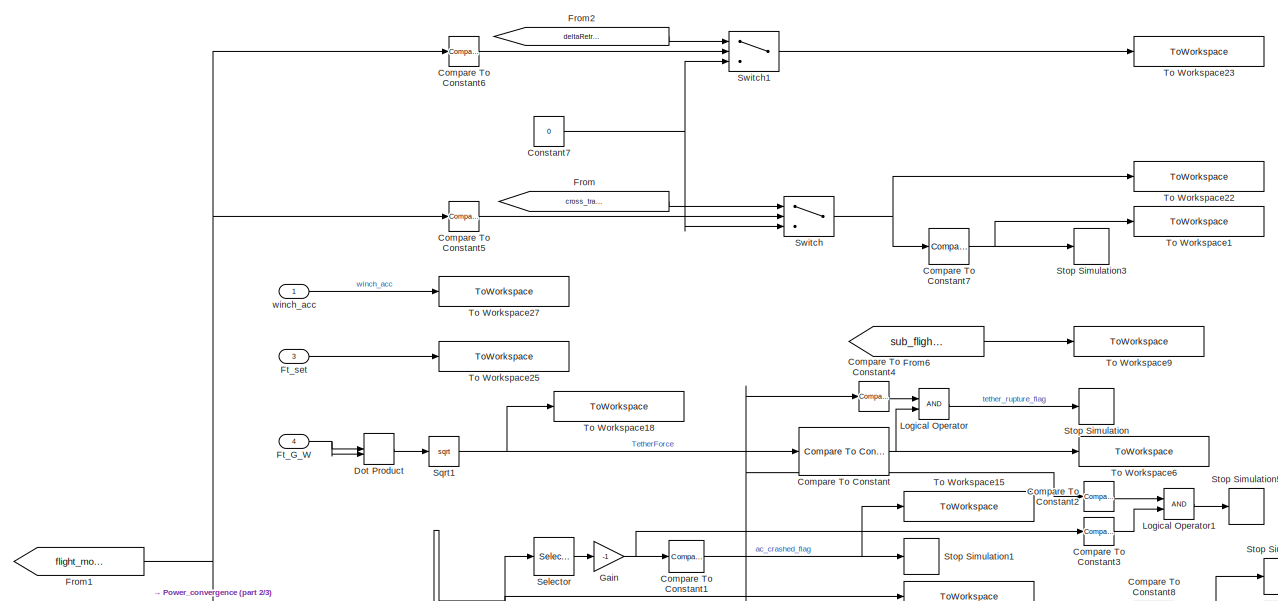
[diagram: RequirementModelsAndLogging - part 1/3, full width, top band]
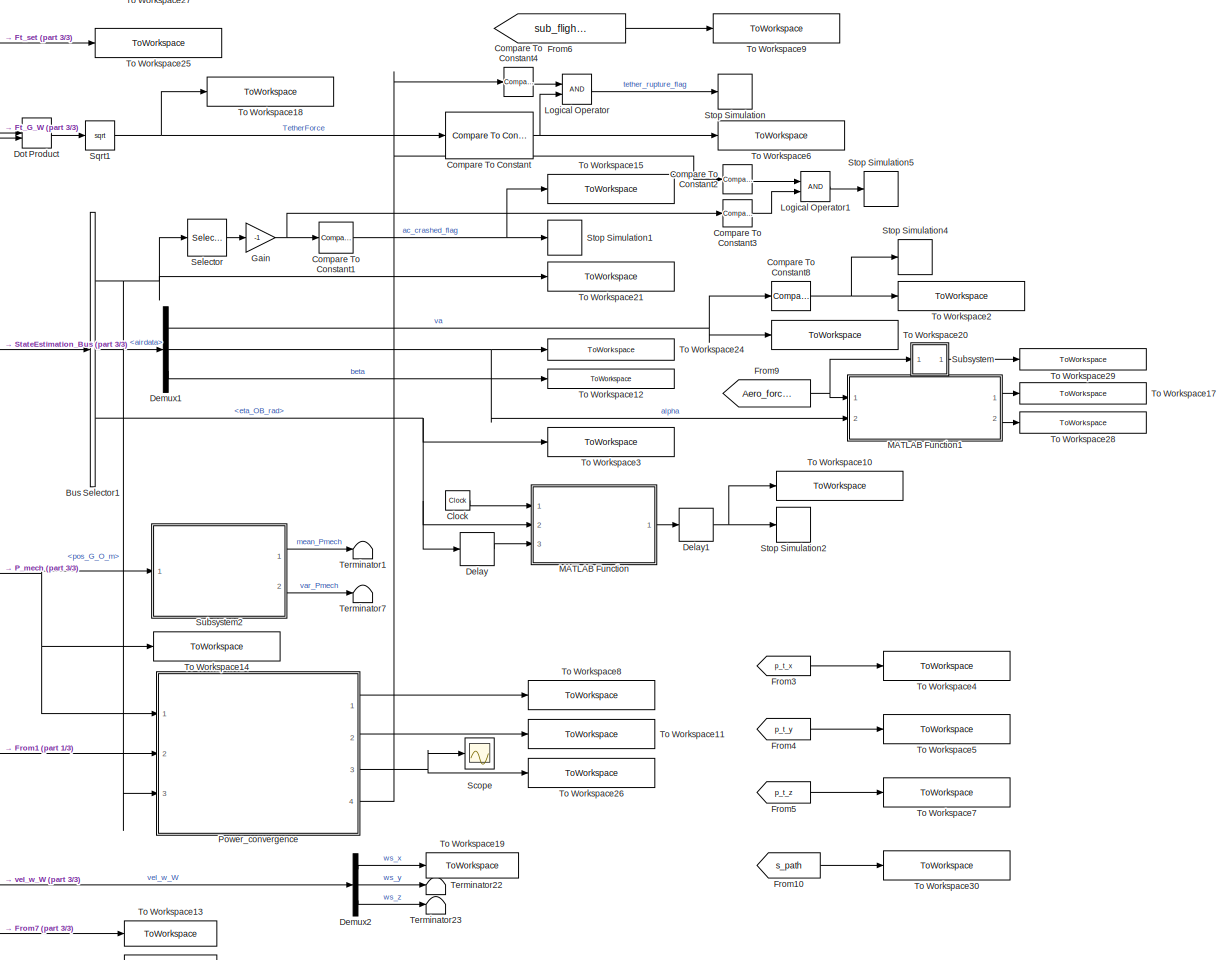
[diagram: RequirementModelsAndLogging - part 2/3, full width, middle band]
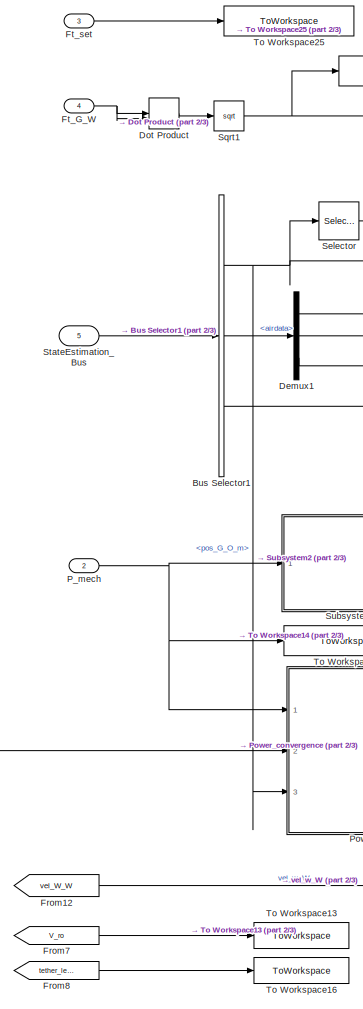
[diagram: RequirementModelsAndLogging - part 3/3, left side, full height]
BLOCK [SubSystem] RequirementModelsAndLogging
  Ports = [5]
  RequestExecContextInheritance = off
BLOCK [BusSelector] RequirementModelsAndLogging/Bus Selector1
  OutputAsBus = off
  OutputSignals = pos_G_O_m,airdata,eta_OB_rad
  Ports = [1, 3]
BLOCK [Clock] RequirementModelsAndLogging/Clock
BLOCK [Reference] RequirementModelsAndLogging/Compare To Constant  REF=simulink/Logic and Bit
Operations/Compare
To Constant
  Ports = [1, 1]
  SourceBlock = simulink/Logic and Bit\nOperations/Compare\nTo Constant
  SourceProductBaseCode = SL
  SourceType = Compare To Constant
BLOCK [Reference] RequirementModelsAndLogging/Compare To Constant1  REF=simulink/Logic and Bit
Operations/Compare
To Constant
  Ports = [1, 1]
  SourceBlock = simulink/Logic and Bit\nOperations/Compare\nTo Constant
  SourceProductBaseCode = SL
  SourceType = Compare To Constant
BLOCK [Reference] RequirementModelsAndLogging/Compare To Constant2  REF=simulink/Logic and Bit
Operations/Compare
To Constant
  Ports = [1, 1]
  SourceBlock = simulink/Logic and Bit\nOperations/Compare\nTo Constant
  SourceProductBaseCode = SL
  SourceType = Compare To Constant
BLOCK [Reference] RequirementModelsAndLogging/Compare To Constant3  REF=simulink/Logic and Bit
Operations/Compare
To Constant
  Ports = [1, 1]
  SourceBlock = simulink/Logic and Bit\nOperations/Compare\nTo Constant
  SourceProductBaseCode = SL
  SourceType = Compare To Constant
BLOCK [Reference] RequirementModelsAndLogging/Compare To Constant4  REF=simulink/Logic and Bit
Operations/Compare
To Constant
  Ports = [1, 1]
  SourceBlock = simulink/Logic and Bit\nOperations/Compare\nTo Constant
  SourceProductBaseCode = SL
  SourceType = Compare To Constant
BLOCK [Reference] RequirementModelsAndLogging/Compare To Constant5  REF=simulink/Logic and Bit
Operations/Compare
To Constant
  Ports = [1, 1]
  SourceBlock = simulink/Logic and Bit\nOperations/Compare\nTo Constant
  SourceProductBaseCode = SL
  SourceType = Compare To Constant
BLOCK [Reference] RequirementModelsAndLogging/Compare To Constant6  REF=simulink/Logic and Bit
Operations/Compare
To Constant
  Ports = [1, 1]
  SourceBlock = simulink/Logic and Bit\nOperations/Compare\nTo Constant
  SourceProductBaseCode = SL
  SourceType = Compare To Constant
BLOCK [Reference] RequirementModelsAndLogging/Compare To Constant7  REF=simulink/Logic and Bit
Operations/Compare
To Constant
  Ports = [1, 1]
  SourceBlock = simulink/Logic and Bit\nOperations/Compare\nTo Constant
  SourceProductBaseCode = SL
  SourceType = Compare To Constant
BLOCK [Reference] RequirementModelsAndLogging/Compare To Constant8  REF=simulink/Logic and Bit
Operations/Compare
To Constant
  Ports = [1, 1]
  SourceBlock = simulink/Logic and Bit\nOperations/Compare\nTo Constant
  SourceProductBaseCode = SL
  SourceType = Compare To Constant
BLOCK [Constant] RequirementModelsAndLogging/Constant7
  Value = 0
BLOCK [Delay] RequirementModelsAndLogging/Delay
  DelayLength = 1
  InitialCondition = zeros(3,1)
  InputPortMap = u0
  Ports = [1, 1]
BLOCK [Delay] RequirementModelsAndLogging/Delay1
  DelayLength = 1
  InputPortMap = u0
  Ports = [1, 1]
BLOCK [Demux] RequirementModelsAndLogging/Demux1
  DisplayOption = bar
  Outputs = 3
  Ports = [1, 3]
BLOCK [Demux] RequirementModelsAndLogging/Demux2
  DisplayOption = bar
  Outputs = 3
  Ports = [1, 3]
BLOCK [DotProduct] RequirementModelsAndLogging/Dot Product
  OutDataTypeStr = Inherit: Inherit via internal rule
BLOCK [From] RequirementModelsAndLogging/From
  GotoTag = cross_track_error
  TagVisibility = global
BLOCK [From] RequirementModelsAndLogging/From1
  GotoTag = flight_mode
  TagVisibility = global
BLOCK [From] RequirementModelsAndLogging/From10
  GotoTag = s_path
  TagVisibility = global
BLOCK [From] RequirementModelsAndLogging/From12
  GotoTag = vel_W_W
  TagVisibility = global
BLOCK [From] RequirementModelsAndLogging/From2
  GotoTag = deltaRetractionSlope
  TagVisibility = global
BLOCK [From] RequirementModelsAndLogging/From3
  GotoTag = p_t_x
  TagVisibility = global
BLOCK [From] RequirementModelsAndLogging/From4
  GotoTag = p_t_y
  TagVisibility = global
BLOCK [From] RequirementModelsAndLogging/From5
  GotoTag = p_t_z
  TagVisibility = global
BLOCK [From] RequirementModelsAndLogging/From6
  GotoTag = sub_flight_state
  TagVisibility = global
BLOCK [From] RequirementModelsAndLogging/From7
  GotoTag = V_ro
  TagVisibility = global
BLOCK [From] RequirementModelsAndLogging/From8
  GotoTag = tether_length
  TagVisibility = global
BLOCK [From] RequirementModelsAndLogging/From9
  GotoTag = Aero_forces
  TagVisibility = global
BLOCK [Inport] RequirementModelsAndLogging/Ft_G_W
  IconDisplay = Port number
  Port = 4
BLOCK [Inport] RequirementModelsAndLogging/Ft_set
  IconDisplay = Port number
  Port = 3
BLOCK [Gain] RequirementModelsAndLogging/Gain
  Gain = -1
  OutDataTypeStr = Inherit: Inherit via internal rule
  ParamDataTypeStr = Inherit: Inherit via internal rule
  SaturateOnIntegerOverflow = off
BLOCK [Logic] RequirementModelsAndLogging/Logical Operator
  AllPortsSameDT = off
  OutDataTypeStr = boolean
  Ports = [2, 1]
BLOCK [Logic] RequirementModelsAndLogging/Logical Operator1
  AllPortsSameDT = off
  OutDataTypeStr = boolean
  Ports = [2, 1]
BLOCK [SubSystem] RequirementModelsAndLogging/MATLAB Function
  ErrorFcn = Stateflow.Translate.translate
  PermitHierarchicalResolution = ExplicitOnly
  Ports = [3, 1]
  RequestExecContextInheritance = off
  SFBlockType = MATLAB Function
  TreatAsAtomicUnit = on
BLOCK [Demux] RequirementModelsAndLogging/MATLAB Function/ Demux 
  DisplayOption = bar
  Outputs = 1
  Ports = [1, 1]
BLOCK [S-Function] RequirementModelsAndLogging/MATLAB Function/ SFunction 
  EnableBusSupport = on
  FunctionName = sf_sfun
  PortCounts = [3 2]
  Ports = [3, 2]
  SFcnIsStateOwnerBlock = off
  SFunctionDeploymentMode = off
  Tag = Stateflow S-Function 14
BLOCK [Terminator] RequirementModelsAndLogging/MATLAB Function/ Terminator 
BLOCK [Inport] RequirementModelsAndLogging/MATLAB Function/eul
  IconDisplay = Port number
  Port = 2
BLOCK [Inport] RequirementModelsAndLogging/MATLAB Function/eul_old
  IconDisplay = Port number
  Port = 3
BLOCK [Outport] RequirementModelsAndLogging/MATLAB Function/stop_flag
  IconDisplay = Port number
BLOCK [Inport] RequirementModelsAndLogging/MATLAB Function/time
  IconDisplay = Port number
BLOCK [SubSystem] RequirementModelsAndLogging/MATLAB Function1
  ErrorFcn = Stateflow.Translate.translate
  PermitHierarchicalResolution = ExplicitOnly
  Ports = [2, 2]
  RequestExecContextInheritance = off
  SFBlockType = MATLAB Function
  TreatAsAtomicUnit = on
BLOCK [Demux] RequirementModelsAndLogging/MATLAB Function1/ Demux 
  DisplayOption = bar
  Outputs = 1
  Ports = [1, 1]
BLOCK [S-Function] RequirementModelsAndLogging/MATLAB Function1/ SFunction 
  EnableBusSupport = on
  FunctionName = sf_sfun
  PortCounts = [2 3]
  Ports = [2, 3]
  SFcnIsStateOwnerBlock = off
  SFunctionDeploymentMode = off
  Tag = Stateflow S-Function 15
BLOCK [Terminator] RequirementModelsAndLogging/MATLAB Function1/ Terminator 
BLOCK [Inport] RequirementModelsAndLogging/MATLAB Function1/AoA
  IconDisplay = Port number
  Port = 2
BLOCK [Outport] RequirementModelsAndLogging/MATLAB Function1/Drag
  IconDisplay = Port number
  Port = 2
  VectorParamsAs1DForOutWhenUnconnected = off
BLOCK [Inport] RequirementModelsAndLogging/MATLAB Function1/F_a_B
  IconDisplay = Port number
BLOCK [Outport] RequirementModelsAndLogging/MATLAB Function1/Lift
  IconDisplay = Port number
BLOCK [Inport] RequirementModelsAndLogging/P_mech
  IconDisplay = Port number
  Port = 2
BLOCK [SubSystem] RequirementModelsAndLogging/Power_convergence
  Ports = [3, 4]
  RequestExecContextInheritance = off
BLOCK [Logic] RequirementModelsAndLogging/Power_convergence/AND
  AllPortsSameDT = off
  OutDataTypeStr = boolean
  Ports = [2, 1]
BLOCK [Sum] RequirementModelsAndLogging/Power_convergence/Add
  Commented = on
  InputSameDT = off
  Inputs = +-
  OutDataTypeStr = Inherit: Inherit via internal rule
  Ports = [2, 1]
  SaturateOnIntegerOverflow = off
BLOCK [Reference] RequirementModelsAndLogging/Power_convergence/Compare To Constant  REF=simulink/Logic and Bit
Operations/Compare
To Constant
  Commented = on
  Ports = [1, 1]
  SourceBlock = simulink/Logic and Bit\nOperations/Compare\nTo Constant
  SourceProductBaseCode = SL
  SourceType = Compare To Constant
BLOCK [Reference] RequirementModelsAndLogging/Power_convergence/Compare To Constant1  REF=simulink/Logic and Bit
Operations/Compare
To Constant
  Ports = [1, 1]
  SourceBlock = simulink/Logic and Bit\nOperations/Compare\nTo Constant
  SourceProductBaseCode = SL
  SourceType = Compare To Constant
BLOCK [Reference] RequirementModelsAndLogging/Power_convergence/Compare To Constant2  REF=simulink/Logic and Bit
Operations/Compare
To Constant
  Commented = on
  Ports = [1, 1]
  SourceBlock = simulink/Logic and Bit\nOperations/Compare\nTo Constant
  SourceProductBaseCode = SL
  SourceType = Compare To Constant
BLOCK [Reference] RequirementModelsAndLogging/Power_convergence/Compare To Constant3  REF=simulink/Logic and Bit
Operations/Compare
To Constant
  Commented = on
  Ports = [1, 1]
  SourceBlock = simulink/Logic and Bit\nOperations/Compare\nTo Constant
  SourceProductBaseCode = SL
  SourceType = Compare To Constant
BLOCK [Reference] RequirementModelsAndLogging/Power_convergence/Compare To Constant4  REF=simulink/Logic and Bit
Operations/Compare
To Constant
  Commented = on
  Ports = [1, 1]
  SourceBlock = simulink/Logic and Bit\nOperations/Compare\nTo Constant
  SourceProductBaseCode = SL
  SourceProductName = Simulink
  SourceType = Compare To Constant
BLOCK [Constant] RequirementModelsAndLogging/Power_convergence/Constant
  Value = threshold/min_cycles
BLOCK [Delay] RequirementModelsAndLogging/Power_convergence/Delay
  Commented = on
  DelayLength = 10
  InputPortMap = u0
  Ports = [1, 1]
BLOCK [Delay] RequirementModelsAndLogging/Power_convergence/Delay1
  DelayLength = 1
  InitialCondition = 0
  InputPortMap = u0
  Ports = [1, 1]
BLOCK [Delay] RequirementModelsAndLogging/Power_convergence/Delay10
  Commented = on
  DelayLength = 1
  ExternalReset = Rising
  InitialCondition = 0
  InitialConditionSource = Input port
  InputPortMap = u0,r5,p4
  Ports = [3, 1]
BLOCK [Delay] RequirementModelsAndLogging/Power_convergence/Delay12
  Commented = on
  DelayLength = 1
  InitialCondition = 0
  InputPortMap = u0
  Ports = [1, 1]
BLOCK [Delay] RequirementModelsAndLogging/Power_convergence/Delay14
  Commented = on
  DelayLength = 1
  ExternalReset = Rising
  InitialCondition = 0
  InitialConditionSource = Input port
  InputPortMap = u0,r5,p4
  Ports = [3, 1]
BLOCK [Delay] RequirementModelsAndLogging/Power_convergence/Delay2
  DelayLength = 1
  InitialCondition = 0
  InputPortMap = u0
  Ports = [1, 1]
BLOCK [Delay] RequirementModelsAndLogging/Power_convergence/Delay3
  DelayLength = 1
  InitialCondition = 0
  InputPortMap = u0
  Ports = [1, 1]
BLOCK [Delay] RequirementModelsAndLogging/Power_convergence/Delay4
  DelayLength = 1
  InitialCondition = 0
  InputPortMap = u0
  Ports = [1, 1]
BLOCK [Delay] RequirementModelsAndLogging/Power_convergence/Delay5
  DelayLength = 1
  InitialCondition = threshold+1000
  InputPortMap = u0
  Ports = [1, 1]
BLOCK [Delay] RequirementModelsAndLogging/Power_convergence/Delay6
  DelayLength = 1
  InitialCondition = 0
  InputPortMap = u0
  Ports = [1, 1]
BLOCK [Delay] RequirementModelsAndLogging/Power_convergence/Delay7
  DelayLength = 1
  InitialCondition = 0
  InputPortMap = u0
  Ports = [1, 1]
BLOCK [Delay] RequirementModelsAndLogging/Power_convergence/Delay8
  Commented = on
  DelayLength = 1
  ExternalReset = Rising
  InitialCondition = 0
  InputPortMap = u0,r5
  Ports = [2, 1]
BLOCK [Reference] RequirementModelsAndLogging/Power_convergence/Detect Change  REF=simulink/Logic and Bit
Operations/Detect
Change
  Commented = on
  Ports = [1, 1]
  SourceBlock = simulink/Logic and Bit\nOperations/Detect\nChange
  SourceProductBaseCode = SL
  SourceProductName = Simulink
  SourceType = Detect Change
BLOCK [DotProduct] RequirementModelsAndLogging/Power_convergence/Dot Product
  Commented = on
  OutDataTypeStr = Inherit: Inherit via internal rule
BLOCK [SubSystem] RequirementModelsAndLogging/Power_convergence/MATLAB Function
  ErrorFcn = Stateflow.Translate.translate
  PermitHierarchicalResolution = ExplicitOnly
  Ports = [9, 7]
  RequestExecContextInheritance = off
  SFBlockType = MATLAB Function
  TreatAsAtomicUnit = on
BLOCK [Demux] RequirementModelsAndLogging/Power_convergence/MATLAB Function/ Demux 
  DisplayOption = bar
  Outputs = 1
  Ports = [1, 1]
BLOCK [S-Function] RequirementModelsAndLogging/Power_convergence/MATLAB Function/ SFunction 
  EnableBusSupport = on
  FunctionName = sf_sfun
  PortCounts = [9 8]
  Ports = [9, 8]
  SFcnIsStateOwnerBlock = off
  SFunctionDeploymentMode = off
  Tag = Stateflow S-Function 101
BLOCK [Terminator] RequirementModelsAndLogging/Power_convergence/MATLAB Function/ Terminator 
BLOCK [Outport] RequirementModelsAndLogging/Power_convergence/MATLAB Function/cnt
  IconDisplay = Port number
  Port = 4
  VectorParamsAs1DForOutWhenUnconnected = off
BLOCK [Inport] RequirementModelsAndLogging/Power_convergence/MATLAB Function/cnt 
  IconDisplay = Port number
  Port = 4
BLOCK [Outport] RequirementModelsAndLogging/Power_convergence/MATLAB Function/cnt_max_mat
  IconDisplay = Port number
  Port = 6
  VectorParamsAs1DForOutWhenUnconnected = off
BLOCK [Inport] RequirementModelsAndLogging/Power_convergence/MATLAB Function/cnt_max_mat 
  IconDisplay = Port number
  Port = 8
BLOCK [Outport] RequirementModelsAndLogging/Power_convergence/MATLAB Function/cycles_cnt
  IconDisplay = Port number
  Port = 7
BLOCK [Inport] RequirementModelsAndLogging/Power_convergence/MATLAB Function/cycles_cnt 
  IconDisplay = Port number
  Port = 9
BLOCK [Outport] RequirementModelsAndLogging/Power_convergence/MATLAB Function/e_new
  IconDisplay = Port number
  Port = 5
  VectorParamsAs1DForOutWhenUnconnected = off
BLOCK [Inport] RequirementModelsAndLogging/Power_convergence/MATLAB Function/e_old
  IconDisplay = Port number
  Port = 7
BLOCK [Outport] RequirementModelsAndLogging/Power_convergence/MATLAB Function/flag
  IconDisplay = Port number
  VectorParamsAs1DForOutWhenUnconnected = off
BLOCK [Inport] RequirementModelsAndLogging/Power_convergence/MATLAB Function/flag 
  IconDisplay = Port number
BLOCK [Inport] RequirementModelsAndLogging/Power_convergence/MATLAB Function/flightMode
  IconDisplay = Port number
  Port = 6
BLOCK [Outport] RequirementModelsAndLogging/Power_convergence/MATLAB Function/m_new
  IconDisplay = Port number
  Port = 2
  VectorParamsAs1DForOutWhenUnconnected = off
BLOCK [Inport] RequirementModelsAndLogging/Power_convergence/MATLAB Function/m_old
  IconDisplay = Port number
  Port = 2
BLOCK [Outport] RequirementModelsAndLogging/Power_convergence/MATLAB Function/p_sum
  IconDisplay = Port number
  Port = 3
  VectorParamsAs1DForOutWhenUnconnected = off
BLOCK [Inport] RequirementModelsAndLogging/Power_convergence/MATLAB Function/p_sum 
  IconDisplay = Port number
  Port = 3
BLOCK [Inport] RequirementModelsAndLogging/Power_convergence/MATLAB Function/u
  IconDisplay = Port number
  Port = 5
BLOCK [Product] RequirementModelsAndLogging/Power_convergence/Matrix Multiply
  InputSameDT = off
  OutDataTypeStr = Inherit: Inherit via internal rule
  Ports = [2, 1]
  RndMeth = Floor
  SaturateOnIntegerOverflow = off
BLOCK [Outport] RequirementModelsAndLogging/Power_convergence/No_cycles
  IconDisplay = Port number
  Port = 4
BLOCK [Inport] RequirementModelsAndLogging/Power_convergence/P_mech
  IconDisplay = Port number
BLOCK [RateTransition] RequirementModelsAndLogging/Power_convergence/Rate Transition8
  Commented = on
  InitialCondition = [0;0;0]
  OutPortSampleTime = sample_time
BLOCK [RelationalOperator] RequirementModelsAndLogging/Power_convergence/Relational Operator
  InputSameDT = off
  Operator = <=
  OutDataTypeStr = boolean
  Ports = [2, 1]
  RndMeth = Simplest
BLOCK [Sqrt] RequirementModelsAndLogging/Power_convergence/Sqrt
  Commented = on
BLOCK [Stop] RequirementModelsAndLogging/Power_convergence/Stop Simulation
BLOCK [ToWorkspace] RequirementModelsAndLogging/Power_convergence/To Workspace
  FixptAsFi = on
  MaxDataPoints = 1
  Ports = [1]
  SampleTime = -1
  SaveFormat = Timeseries
  VariableName = No_of_Cycles
BLOCK [Outport] RequirementModelsAndLogging/Power_convergence/cycle_signal_counter
  IconDisplay = Port number
  Port = 2
  VectorParamsAs1DForOutWhenUnconnected = off
BLOCK [Outport] RequirementModelsAndLogging/Power_convergence/error_power
  IconDisplay = Port number
  Port = 3
  VectorParamsAs1DForOutWhenUnconnected = off
BLOCK [Inport] RequirementModelsAndLogging/Power_convergence/flightMode
  IconDisplay = Port number
  Port = 2
BLOCK [Inport] RequirementModelsAndLogging/Power_convergence/pos
  IconDisplay = Port number
  Port = 3
BLOCK [Outport] RequirementModelsAndLogging/Power_convergence/power_conv_flag
  IconDisplay = Port number
  VectorParamsAs1DForOutWhenUnconnected = off
BLOCK [Scope] RequirementModelsAndLogging/Scope
  Floating = off
  NumInputPorts = 1
  Ports = [1]
  ScopeSpecificationString = Simulink.scopes.TimeScopeBlockCfg('CurrentConfiguration', extmgr.ConfigurationSet(extmgr.Configuration('Core','General UI',true),extmgr.Configuration('Core','Source UI',true),extmgr.Configuration('Sources','WiredSimulink',true,'DataLoggingVariableName','ScopeData1'),extmgr.Configuration('Visuals','Time Domain',true,'SerializedDisplays',{struct('MinYLimReal','-168369.29524','MaxYLimReal','2411885.3...<+1494ch>
BLOCK [Selector] RequirementModelsAndLogging/Selector
  IndexOptions = Index vector (dialog)
  Indices = 3
  InputPortWidth = 3
  OutputSizes = 1
  Ports = [1, 1]
BLOCK [Sqrt] RequirementModelsAndLogging/Sqrt1
BLOCK [Inport] RequirementModelsAndLogging/StateEstimation_Bus
  IconDisplay = Port number
  Port = 5
BLOCK [Stop] RequirementModelsAndLogging/Stop Simulation
BLOCK [Stop] RequirementModelsAndLogging/Stop Simulation1
BLOCK [Stop] RequirementModelsAndLogging/Stop Simulation2
BLOCK [Stop] RequirementModelsAndLogging/Stop Simulation3
BLOCK [Stop] RequirementModelsAndLogging/Stop Simulation4
BLOCK [Stop] RequirementModelsAndLogging/Stop Simulation5
BLOCK [SubSystem] RequirementModelsAndLogging/Subsystem
  Ports = [1, 1]
  RequestExecContextInheritance = off
BLOCK [DotProduct] RequirementModelsAndLogging/Subsystem/Dot Product3
  OutDataTypeStr = Inherit: Inherit via internal rule
BLOCK [Inport] RequirementModelsAndLogging/Subsystem/In1
  IconDisplay = Port number
BLOCK [Outport] RequirementModelsAndLogging/Subsystem/Out1
  IconDisplay = Port number
BLOCK [Sqrt] RequirementModelsAndLogging/Subsystem/Sqrt1
BLOCK [SubSystem] RequirementModelsAndLogging/Subsystem2
  Commented = on
  Ports = [1, 2]
  RequestExecContextInheritance = off
BLOCK [Constant] RequirementModelsAndLogging/Subsystem2/Constant7
BLOCK [Delay] RequirementModelsAndLogging/Subsystem2/Delay1
  DelayLength = 1
  InputPortMap = u0
  Ports = [1, 1]
  SampleTime = 0.1
BLOCK [Delay] RequirementModelsAndLogging/Subsystem2/Delay3
  DelayLength = 1
  InputPortMap = u0
  Ports = [1, 1]
  SampleTime = 0.1
BLOCK [Delay] RequirementModelsAndLogging/Subsystem2/Delay4
  DelayLength = 1
  InitialCondition = 1
  InputPortMap = u0
  Ports = [1, 1]
  SampleTime = 0.1
BLOCK [Product] RequirementModelsAndLogging/Subsystem2/Divide
  InputSameDT = off
  Inputs = */
  OutDataTypeStr = Inherit: Inherit via internal rule
  Ports = [2, 1]
  RndMeth = Floor
  SaturateOnIntegerOverflow = off
BLOCK [Product] RequirementModelsAndLogging/Subsystem2/Divide1
  InputSameDT = off
  Inputs = */
  OutDataTypeStr = Inherit: Inherit via internal rule
  Ports = [2, 1]
  RndMeth = Floor
  SaturateOnIntegerOverflow = off
BLOCK [Inport] RequirementModelsAndLogging/Subsystem2/P_mech
  IconDisplay = Port number
BLOCK [Product] RequirementModelsAndLogging/Subsystem2/Product
  InputSameDT = off
  OutDataTypeStr = Inherit: Inherit via internal rule
  Ports = [2, 1]
  RndMeth = Floor
  SaturateOnIntegerOverflow = off
BLOCK [RateTransition] RequirementModelsAndLogging/Subsystem2/Rate Transition1
  OutPortSampleTime = 0.1
BLOCK [RateTransition] RequirementModelsAndLogging/Subsystem2/Rate Transition6
  OutPortSampleTime = 0.1
BLOCK [Sum] RequirementModelsAndLogging/Subsystem2/Sum
  IconShape = round
  InputSameDT = off
  Inputs = |+-
  OutDataTypeStr = Inherit: Inherit via internal rule
  Ports = [2, 1]
  SaturateOnIntegerOverflow = off
BLOCK [Sum] RequirementModelsAndLogging/Subsystem2/Sum1
  IconShape = round
  InputSameDT = off
  Inputs = |++
  OutDataTypeStr = Inherit: Inherit via internal rule
  Ports = [2, 1]
  SaturateOnIntegerOverflow = off
BLOCK [Sum] RequirementModelsAndLogging/Subsystem2/Sum3
  IconShape = round
  InputSameDT = off
  Inputs = |++
  OutDataTypeStr = Inherit: Inherit via internal rule
  Ports = [2, 1]
  SaturateOnIntegerOverflow = off
BLOCK [Sum] RequirementModelsAndLogging/Subsystem2/Sum4
  IconShape = round
  InputSameDT = off
  Inputs = |++
  OutDataTypeStr = Inherit: Inherit via internal rule
  Ports = [2, 1]
  SaturateOnIntegerOverflow = off
BLOCK [ToWorkspace] RequirementModelsAndLogging/Subsystem2/To Workspace
  Commented = on
  FixptAsFi = on
  MaxDataPoints = inf
  Ports = [1]
  SampleTime = log_sample_time
  VariableName = P_mech
BLOCK [Outport] RequirementModelsAndLogging/Subsystem2/mean_Pmech
  IconDisplay = Port number
  VectorParamsAs1DForOutWhenUnconnected = off
BLOCK [Outport] RequirementModelsAndLogging/Subsystem2/var_Pmech
  IconDisplay = Port number
  Port = 2
  VectorParamsAs1DForOutWhenUnconnected = off
BLOCK [Switch] RequirementModelsAndLogging/Switch
  Criteria = u2 > Threshold
  InputSameDT = off
  SaturateOnIntegerOverflow = off
BLOCK [Switch] RequirementModelsAndLogging/Switch1
  Criteria = u2 > Threshold
  InputSameDT = off
  SaturateOnIntegerOverflow = off
BLOCK [Terminator] RequirementModelsAndLogging/Terminator1
  Commented = on
BLOCK [Terminator] RequirementModelsAndLogging/Terminator22
BLOCK [Terminator] RequirementModelsAndLogging/Terminator23
BLOCK [Terminator] RequirementModelsAndLogging/Terminator7
  Commented = on
BLOCK [ToWorkspace] RequirementModelsAndLogging/To Workspace1
  FixptAsFi = on
  MaxDataPoints = 1
  Ports = [1]
  SampleTime = -1
  VariableName = max_crosstrack_viol1
BLOCK [ToWorkspace] RequirementModelsAndLogging/To Workspace10
  FixptAsFi = on
  MaxDataPoints = 1
  Ports = [1]
  SampleTime = -1
  VariableName = bad_manoeuvre_flag
BLOCK [ToWorkspace] RequirementModelsAndLogging/To Workspace11
  FixptAsFi = on
  MaxDataPoints = 1
  Ports = [1]
  SampleTime = -1
  Save2DSignal = 2-D array (concatenate along first dimension)
  SaveFormat = Timeseries
  VariableName = cycle_signal_counter
BLOCK [ToWorkspace] RequirementModelsAndLogging/To Workspace12
  FixptAsFi = on
  MaxDataPoints = inf
  Ports = [1]
  SampleTime = simInit.AttLoggingTs
  Save2DSignal = 2-D array (concatenate along first dimension)
  SaveFormat = Timeseries
  VariableName = beta
BLOCK [ToWorkspace] RequirementModelsAndLogging/To Workspace13
  FixptAsFi = on
  MaxDataPoints = inf
  Ports = [1]
  SampleTime = simInit.PLoggingTs
  SaveFormat = Timeseries
  VariableName = v_reel
BLOCK [ToWorkspace] RequirementModelsAndLogging/To Workspace14
  FixptAsFi = on
  MaxDataPoints = inf
  Ports = [1]
  SampleTime = simInit.PLoggingTs
  SaveFormat = Timeseries
  VariableName = P_mech
BLOCK [ToWorkspace] RequirementModelsAndLogging/To Workspace15
  FixptAsFi = on
  MaxDataPoints = 1
  Ports = [1]
  SampleTime = -1
  VariableName = ground_crash
BLOCK [ToWorkspace] RequirementModelsAndLogging/To Workspace16
  FixptAsFi = on
  MaxDataPoints = inf
  Ports = [1]
  SampleTime = simInit.AttLoggingTs
  SaveFormat = Timeseries
  VariableName = tether_length
BLOCK [ToWorkspace] RequirementModelsAndLogging/To Workspace17
  FixptAsFi = on
  MaxDataPoints = inf
  Ports = [1]
  SampleTime = simInit.AttLoggingTs
  Save2DSignal = 2-D array (concatenate along first dimension)
  SaveFormat = Timeseries
  VariableName = lift
BLOCK [ToWorkspace] RequirementModelsAndLogging/To Workspace18
  FixptAsFi = on
  MaxDataPoints = inf
  Ports = [1]
  SampleTime = simInit.FtLoggingTs
  SaveFormat = Timeseries
  VariableName = TetherForce
BLOCK [ToWorkspace] RequirementModelsAndLogging/To Workspace19
  FixptAsFi = on
  MaxDataPoints = inf
  Ports = [1]
  SampleTime = simInit.PLoggingTs
  SaveFormat = Timeseries
  VariableName = v_w
BLOCK [ToWorkspace] RequirementModelsAndLogging/To Workspace2
  FixptAsFi = on
  MaxDataPoints = 1
  Ports = [1]
  SampleTime = -1
  VariableName = max_speed_viol
BLOCK [ToWorkspace] RequirementModelsAndLogging/To Workspace20
  FixptAsFi = on
  MaxDataPoints = inf
  Ports = [1]
  SampleTime = simInit.AttLoggingTs
  Save2DSignal = 2-D array (concatenate along first dimension)
  SaveFormat = Timeseries
  VariableName = va
BLOCK [ToWorkspace] RequirementModelsAndLogging/To Workspace21
  FixptAsFi = on
  MaxDataPoints = inf
  Ports = [1]
  SampleTime = simInit.PLoggingTs
  Save2DSignal = 2-D array (concatenate along first dimension)
  SaveFormat = Timeseries
  VariableName = pos_O
BLOCK [ToWorkspace] RequirementModelsAndLogging/To Workspace22
  FixptAsFi = on
  MaxDataPoints = inf
  Ports = [1]
  SampleTime = simInit.CteLoggingTs
  Save2DSignal = 2-D array (concatenate along first dimension)
  SaveFormat = Timeseries
  VariableName = CrossTrackError
BLOCK [ToWorkspace] RequirementModelsAndLogging/To Workspace23
  FixptAsFi = on
  MaxDataPoints = inf
  Ports = [1]
  SampleTime = simInit.GSLoggingTs
  Save2DSignal = 2-D array (concatenate along first dimension)
  SaveFormat = Timeseries
  VariableName = GlideslopeTrackingError
BLOCK [ToWorkspace] RequirementModelsAndLogging/To Workspace24
  FixptAsFi = on
  MaxDataPoints = inf
  Ports = [1]
  SampleTime = simInit.AttLoggingTs
  Save2DSignal = 2-D array (concatenate along first dimension)
  SaveFormat = Timeseries
  VariableName = alpha
BLOCK [ToWorkspace] RequirementModelsAndLogging/To Workspace25
  FixptAsFi = on
  MaxDataPoints = inf
  Ports = [1]
  SampleTime = simInit.FtLoggingTs
  SaveFormat = Timeseries
  VariableName = Ft_set
BLOCK [ToWorkspace] RequirementModelsAndLogging/To Workspace26
  FixptAsFi = on
  MaxDataPoints = inf
  Ports = [1]
  SampleTime = -1
  Save2DSignal = 2-D array (concatenate along first dimension)
  SaveFormat = Timeseries
  VariableName = power_conv_error
BLOCK [ToWorkspace] RequirementModelsAndLogging/To Workspace27
  FixptAsFi = on
  MaxDataPoints = inf
  Ports = [1]
  SampleTime = simInit.PLoggingTs
  SaveFormat = Timeseries
  VariableName = winch_a
BLOCK [ToWorkspace] RequirementModelsAndLogging/To Workspace28
  FixptAsFi = on
  MaxDataPoints = inf
  Ports = [1]
  SampleTime = simInit.AttLoggingTs
  Save2DSignal = 2-D array (concatenate along first dimension)
  SaveFormat = Timeseries
  VariableName = drag
BLOCK [ToWorkspace] RequirementModelsAndLogging/To Workspace29
  FixptAsFi = on
  MaxDataPoints = inf
  Ports = [1]
  SampleTime = simInit.AttLoggingTs
  Save2DSignal = 2-D array (concatenate along first dimension)
  SaveFormat = Timeseries
  VariableName = Faero
BLOCK [ToWorkspace] RequirementModelsAndLogging/To Workspace3
  FixptAsFi = on
  MaxDataPoints = inf
  Ports = [1]
  SampleTime = simInit.PLoggingTs
  Save2DSignal = 2-D array (concatenate along first dimension)
  SaveFormat = Timeseries
  VariableName = Eul_ang
BLOCK [ToWorkspace] RequirementModelsAndLogging/To Workspace30
  FixptAsFi = on
  MaxDataPoints = inf
  Ports = [1]
  SampleTime = simInit.PLoggingTs
  Save2DSignal = 2-D array (concatenate along first dimension)
  SaveFormat = Timeseries
  VariableName = s_path
BLOCK [ToWorkspace] RequirementModelsAndLogging/To Workspace4
  FixptAsFi = on
  MaxDataPoints = inf
  Ports = [1]
  SampleTime = simInit.PLoggingTs
  Save2DSignal = 2-D array (concatenate along first dimension)
  SaveFormat = Timeseries
  VariableName = Tether_x
BLOCK [ToWorkspace] RequirementModelsAndLogging/To Workspace5
  FixptAsFi = on
  MaxDataPoints = inf
  Ports = [1]
  SampleTime = simInit.PLoggingTs
  Save2DSignal = 2-D array (concatenate along first dimension)
  SaveFormat = Timeseries
  VariableName = Tether_y
BLOCK [ToWorkspace] RequirementModelsAndLogging/To Workspace6
  FixptAsFi = on
  MaxDataPoints = 1
  Ports = [1]
  SampleTime = -1
  VariableName = max_tether_force_viol
BLOCK [ToWorkspace] RequirementModelsAndLogging/To Workspace7
  FixptAsFi = on
  MaxDataPoints = inf
  Ports = [1]
  SampleTime = simInit.PLoggingTs
  Save2DSignal = 2-D array (concatenate along first dimension)
  SaveFormat = Timeseries
  VariableName = Tether_z
BLOCK [ToWorkspace] RequirementModelsAndLogging/To Workspace8
  FixptAsFi = on
  MaxDataPoints = 1
  Ports = [1]
  SampleTime = -1
  VariableName = power_conv_flag
BLOCK [ToWorkspace] RequirementModelsAndLogging/To Workspace9
  FixptAsFi = on
  MaxDataPoints = inf
  Ports = [1]
  SampleTime = simInit.FtLoggingTs
  SaveFormat = Timeseries
  VariableName = sub_flight_state
BLOCK [Inport] RequirementModelsAndLogging/winch_acc
  IconDisplay = Port number
BLOCK [Sqrt] Sqrt3
  Commented = on
BLOCK [SubSystem] Subsystem WinchControl
  BlockKeywords = __PRM__SERIALIZED__DATA__:SubsystemReferenceBlock
  Ports = [3, 5]
  ReferencedSubsystem = WinchControl
  RequestExecContextInheritance = off
BLOCK [Terminator] Terminator
BLOCK [Scope] Tether Force
  Commented = on
  Floating = off
  NumInputPorts = 3
  Ports = [3]
  ScopeSpecificationString = Simulink.scopes.TimeScopeBlockCfg('CurrentConfiguration', extmgr.ConfigurationSet(extmgr.Configuration('Core','General UI',true),extmgr.Configuration('Core','Source UI',true),extmgr.Configuration('Sources','WiredSimulink',true,'DataLoggingVariableName','ScopeData1'),extmgr.Configuration('Visuals','Time Domain',true,'SerializedDisplays',{struct('MinYLimReal','-346001.78757','MaxYLimReal','3114016.0...<+1538ch>
BLOCK [SubSystem] Visualisation
  Commented = on
  Ports = [1]
  ReferencedSubsystem = Visualisation
  RequestExecContextInheritance = off
BLOCK [Scope] Vro
  Commented = on
  Floating = off
  NumInputPorts = 1
  Ports = [1]
  ScopeSpecificationString = Simulink.scopes.TimeScopeBlockCfg('CurrentConfiguration', extmgr.ConfigurationSet(extmgr.Configuration('Core','General UI',true),extmgr.Configuration('Core','Source UI',true),extmgr.Configuration('Sources','WiredSimulink',true,'DataLoggingVariableName','ScopeData1'),extmgr.Configuration('Visuals','Time Domain',true,'SerializedDisplays',{struct('MinYLimReal','-31.25','MaxYLimReal','31.25','YLabelRe...<+1433ch>
LINE AirborneSystem/6DoFDynamics/Bus Creator1:1 -> AirborneSystem/6DoFDynamics/StateEstimation_Bus:1
LINE AirborneSystem/6DoFDynamics/Delay1:1 -> AirborneSystem/6DoFDynamics/Bus Creator1:12
LINE AirborneSystem/6DoFDynamics/Demux:1 -> AirborneSystem/6DoFDynamics/Bus Creator1:9
LINE AirborneSystem/6DoFDynamics/Demux:2 -> AirborneSystem/6DoFDynamics/Mux1:2
LINE AirborneSystem/6DoFDynamics/Demux:3 -> AirborneSystem/6DoFDynamics/Mux1:3
LINE AirborneSystem/6DoFDynamics/Dot Product1:1 -> AirborneSystem/6DoFDynamics/Sqrt1:1
LINE AirborneSystem/6DoFDynamics/Dot Product:1 -> AirborneSystem/6DoFDynamics/Sqrt:1
LINE AirborneSystem/6DoFDynamics/F_a_B:1 -> AirborneSystem/6DoFDynamics/Subsystem:1
LINE AirborneSystem/6DoFDynamics/F_p_B:1 -> AirborneSystem/6DoFDynamics/Subsystem:2
LINE AirborneSystem/6DoFDynamics/F_t_W:1 -> AirborneSystem/6DoFDynamics/Subsystem:5
LINE AirborneSystem/6DoFDynamics/From1:1 -> AirborneSystem/6DoFDynamics/Subsystem:4
LINE AirborneSystem/6DoFDynamics/From:1 -> AirborneSystem/6DoFDynamics/MATLAB Function3:1
LINE AirborneSystem/6DoFDynamics/MATLAB Function3:1 -> AirborneSystem/6DoFDynamics/Bus Creator1:15
LINE AirborneSystem/6DoFDynamics/Mux1:1 -> AirborneSystem/6DoFDynamics/Bus Creator1:8
LINE AirborneSystem/6DoFDynamics/Sqrt1:1 -> AirborneSystem/6DoFDynamics/Delay1:1
LINE AirborneSystem/6DoFDynamics/Sqrt:1 -> AirborneSystem/6DoFDynamics/Vk:1
LINE AirborneSystem/6DoFDynamics/Subsystem/Delay11:1 -> AirborneSystem/6DoFDynamics/Subsystem/a_B:1
LINE AirborneSystem/6DoFDynamics/Subsystem/Delay13:1 -> AirborneSystem/6DoFDynamics/Subsystem/mu_k:1
LINE AirborneSystem/6DoFDynamics/Subsystem/Delay14:1 -> AirborneSystem/6DoFDynamics/Subsystem/eta_a:1
LINE AirborneSystem/6DoFDynamics/Subsystem/Delay1:1 -> AirborneSystem/6DoFDynamics/Subsystem/Estimations:3
LINE AirborneSystem/6DoFDynamics/Subsystem/Delay2:1 -> AirborneSystem/6DoFDynamics/Subsystem/Goto3:1
LINE AirborneSystem/6DoFDynamics/Subsystem/Delay3:1 -> AirborneSystem/6DoFDynamics/Subsystem/Goto4:1
NET AirborneSystem/6DoFDynamics/Subsystem/Delay4:1 -> AirborneSystem/6DoFDynamics/Subsystem/Estimations:6, AirborneSystem/6DoFDynamics/Subsystem/M_OB:1
LINE AirborneSystem/6DoFDynamics/Subsystem/Delay5:1 -> AirborneSystem/6DoFDynamics/Subsystem/pathangles_a:1
LINE AirborneSystem/6DoFDynamics/Subsystem/Delay7:1 -> AirborneSystem/6DoFDynamics/Subsystem/Va:1
LINE AirborneSystem/6DoFDynamics/Subsystem/Delay9:1 -> AirborneSystem/6DoFDynamics/Subsystem/pathangles_k:1
LINE AirborneSystem/6DoFDynamics/Subsystem/Delay:1 -> AirborneSystem/6DoFDynamics/Subsystem/Estimations:2
LINE AirborneSystem/6DoFDynamics/Subsystem/Dot Product:1 -> AirborneSystem/6DoFDynamics/Subsystem/Sqrt:1
LINE AirborneSystem/6DoFDynamics/Subsystem/Estimations:1 -> AirborneSystem/6DoFDynamics/Subsystem/Delay13:1
LINE AirborneSystem/6DoFDynamics/Subsystem/Estimations:10 -> AirborneSystem/6DoFDynamics/Subsystem/vel_K_O_mDs:1
LINE AirborneSystem/6DoFDynamics/Subsystem/Estimations:11 -> AirborneSystem/6DoFDynamics/Subsystem/pos_W:1
LINE AirborneSystem/6DoFDynamics/Subsystem/Estimations:12 -> AirborneSystem/6DoFDynamics/Subsystem/pos_O:1
NET AirborneSystem/6DoFDynamics/Subsystem/Estimations:13 -> AirborneSystem/6DoFDynamics/Subsystem/MATLAB Function2:6, AirborneSystem/6DoFDynamics/Subsystem/vel_W:1
LINE AirborneSystem/6DoFDynamics/Subsystem/Estimations:2 -> AirborneSystem/6DoFDynamics/Subsystem/Delay7:1
LINE AirborneSystem/6DoFDynamics/Subsystem/Estimations:3 -> AirborneSystem/6DoFDynamics/Subsystem/Mux:1
LINE AirborneSystem/6DoFDynamics/Subsystem/Estimations:4 -> AirborneSystem/6DoFDynamics/Subsystem/Mux:2
LINE AirborneSystem/6DoFDynamics/Subsystem/Estimations:5 -> AirborneSystem/6DoFDynamics/Subsystem/Mux:3
LINE AirborneSystem/6DoFDynamics/Subsystem/Estimations:6 -> AirborneSystem/6DoFDynamics/Subsystem/Delay2:1
LINE AirborneSystem/6DoFDynamics/Subsystem/Estimations:7 -> AirborneSystem/6DoFDynamics/Subsystem/Delay3:1
LINE AirborneSystem/6DoFDynamics/Subsystem/Estimations:8 -> AirborneSystem/6DoFDynamics/Subsystem/Delay5:1
LINE AirborneSystem/6DoFDynamics/Subsystem/Estimations:9 -> AirborneSystem/6DoFDynamics/Subsystem/Delay9:1
NET AirborneSystem/6DoFDynamics/Subsystem/F_a_B:1 -> AirborneSystem/6DoFDynamics/Subsystem/Delay:1, AirborneSystem/6DoFDynamics/Subsystem/MATLAB Function2:2
NET AirborneSystem/6DoFDynamics/Subsystem/F_p_B:1 -> AirborneSystem/6DoFDynamics/Subsystem/Delay1:1, AirborneSystem/6DoFDynamics/Subsystem/MATLAB Function2:3
NET AirborneSystem/6DoFDynamics/Subsystem/F_t_W:1 -> AirborneSystem/6DoFDynamics/Subsystem/Dot Product:1, AirborneSystem/6DoFDynamics/Subsystem/Dot Product:2, AirborneSystem/6DoFDynamics/Subsystem/MATLAB Function2:4
NET AirborneSystem/6DoFDynamics/Subsystem/Integrator1:1 -> AirborneSystem/6DoFDynamics/Subsystem/Estimations:4, AirborneSystem/6DoFDynamics/Subsystem/MATLAB Function2:1, AirborneSystem/6DoFDynamics/Subsystem/v_k_B:1
NET AirborneSystem/6DoFDynamics/Subsystem/Integrator2:1 -> AirborneSystem/6DoFDynamics/Subsystem/Estimations:9, AirborneSystem/6DoFDynamics/Subsystem/MATLAB Function2:10
NET AirborneSystem/6DoFDynamics/Subsystem/Integrator5:1 -> AirborneSystem/6DoFDynamics/Subsystem/MATLAB Function2:7, AirborneSystem/6DoFDynamics/Subsystem/omega_OB_B:1
NET AirborneSystem/6DoFDynamics/Subsystem/Integrator6:1 -> AirborneSystem/6DoFDynamics/Subsystem/Estimations:7, AirborneSystem/6DoFDynamics/Subsystem/MATLAB Function2:8, AirborneSystem/6DoFDynamics/Subsystem/longlat:1
NET AirborneSystem/6DoFDynamics/Subsystem/Integrator:1 -> AirborneSystem/6DoFDynamics/Subsystem/EULER:1, AirborneSystem/6DoFDynamics/Subsystem/Estimations:8, AirborneSystem/6DoFDynamics/Subsystem/MATLAB Function2:9
NET AirborneSystem/6DoFDynamics/Subsystem/MATLAB Function2:1 -> AirborneSystem/6DoFDynamics/Subsystem/Delay11:1, AirborneSystem/6DoFDynamics/Subsystem/Integrator1:1
LINE AirborneSystem/6DoFDynamics/Subsystem/MATLAB Function2:2 -> AirborneSystem/6DoFDynamics/Subsystem/Delay4:1
LINE AirborneSystem/6DoFDynamics/Subsystem/MATLAB Function2:3 -> AirborneSystem/6DoFDynamics/Subsystem/Integrator5:1
NET AirborneSystem/6DoFDynamics/Subsystem/MATLAB Function2:4 -> AirborneSystem/6DoFDynamics/Subsystem/Integrator6:1, AirborneSystem/6DoFDynamics/Subsystem/Selector1:1, AirborneSystem/6DoFDynamics/Subsystem/Selector:1
LINE AirborneSystem/6DoFDynamics/Subsystem/MATLAB Function2:5 -> AirborneSystem/6DoFDynamics/Subsystem/Integrator:1
LINE AirborneSystem/6DoFDynamics/Subsystem/MATLAB Function2:6 -> AirborneSystem/6DoFDynamics/Subsystem/Integrator2:1
LINE AirborneSystem/6DoFDynamics/Subsystem/Mux:1 -> AirborneSystem/6DoFDynamics/Subsystem/Delay14:1
LINE AirborneSystem/6DoFDynamics/Subsystem/Selector1:1 -> AirborneSystem/6DoFDynamics/Subsystem/Goto1:1
LINE AirborneSystem/6DoFDynamics/Subsystem/Selector:1 -> AirborneSystem/6DoFDynamics/Subsystem/Goto:1
LINE AirborneSystem/6DoFDynamics/Subsystem/Sqrt:1 -> AirborneSystem/6DoFDynamics/Subsystem/Estimations:1
LINE AirborneSystem/6DoFDynamics/Subsystem/Torques_B:1 -> AirborneSystem/6DoFDynamics/Subsystem/MATLAB Function2:5
LINE AirborneSystem/6DoFDynamics/Subsystem/v_w_W:1 -> AirborneSystem/6DoFDynamics/Subsystem/Estimations:5
LINE AirborneSystem/6DoFDynamics/Subsystem:1 -> AirborneSystem/6DoFDynamics/Bus Creator1:1
LINE AirborneSystem/6DoFDynamics/Subsystem:10 -> AirborneSystem/6DoFDynamics/Bus Creator1:10
LINE AirborneSystem/6DoFDynamics/Subsystem:11 -> AirborneSystem/6DoFDynamics/Bus Creator1:11
NET AirborneSystem/6DoFDynamics/Subsystem:12 -> AirborneSystem/6DoFDynamics/Dot Product1:1, AirborneSystem/6DoFDynamics/Dot Product1:2
LINE AirborneSystem/6DoFDynamics/Subsystem:13 -> AirborneSystem/6DoFDynamics/Bus Creator1:13
LINE AirborneSystem/6DoFDynamics/Subsystem:14 -> AirborneSystem/6DoFDynamics/Bus Creator1:14
LINE AirborneSystem/6DoFDynamics/Subsystem:15 -> AirborneSystem/6DoFDynamics/M_OB:1
NET AirborneSystem/6DoFDynamics/Subsystem:2 -> AirborneSystem/6DoFDynamics/Bus Creator1:2, AirborneSystem/6DoFDynamics/Dot Product:1, AirborneSystem/6DoFDynamics/Dot Product:2
LINE AirborneSystem/6DoFDynamics/Subsystem:3 -> AirborneSystem/6DoFDynamics/Bus Creator1:3
LINE AirborneSystem/6DoFDynamics/Subsystem:4 -> AirborneSystem/6DoFDynamics/Bus Creator1:4
LINE AirborneSystem/6DoFDynamics/Subsystem:5 -> AirborneSystem/6DoFDynamics/Bus Creator1:5
LINE AirborneSystem/6DoFDynamics/Subsystem:6 -> AirborneSystem/6DoFDynamics/Bus Creator1:6
LINE AirborneSystem/6DoFDynamics/Subsystem:7 -> AirborneSystem/6DoFDynamics/Bus Creator1:7
LINE AirborneSystem/6DoFDynamics/Subsystem:8 -> AirborneSystem/6DoFDynamics/Mux1:1
LINE AirborneSystem/6DoFDynamics/Subsystem:9 -> AirborneSystem/6DoFDynamics/Demux:1
LINE AirborneSystem/6DoFDynamics/Torques:1 -> AirborneSystem/6DoFDynamics/Subsystem:3
LINE AirborneSystem/6DoFDynamics:1 -> AirborneSystem/M_OB:1
NET AirborneSystem/6DoFDynamics:2 -> AirborneSystem/FlightControlSystem:4, AirborneSystem/ForcesAndTorques:3, AirborneSystem/StateEstimation_Bus:1
LINE AirborneSystem/Dot Product:1 -> AirborneSystem/Sqrt:1
LINE AirborneSystem/FlightControlSystem/AirspeedController:1 -> AirborneSystem/FlightControlSystem/throttle//brake:1
NET AirborneSystem/FlightControlSystem/AttitudeAndRateLoop/AttitudeController/Bus Selector:1 -> AirborneSystem/FlightControlSystem/AttitudeAndRateLoop/AttitudeController/Selector1:1, AirborneSystem/FlightControlSystem/AttitudeAndRateLoop/AttitudeController/Selector:1
NET AirborneSystem/FlightControlSystem/AttitudeAndRateLoop/AttitudeController/Bus Selector:2 -> AirborneSystem/FlightControlSystem/AttitudeAndRateLoop/AttitudeController/InversionAttitude:1, AirborneSystem/FlightControlSystem/AttitudeAndRateLoop/AttitudeController/PI-controller:3, AirborneSystem/FlightControlSystem/AttitudeAndRateLoop/AttitudeController/mu_control:3
LINE AirborneSystem/FlightControlSystem/AttitudeAndRateLoop/AttitudeController/Bus Selector:3 -> AirborneSystem/FlightControlSystem/AttitudeAndRateLoop/AttitudeController/Selector2:1
LINE AirborneSystem/FlightControlSystem/AttitudeAndRateLoop/AttitudeController/Demux:1 -> AirborneSystem/FlightControlSystem/AttitudeAndRateLoop/AttitudeController/SecondOrderReferenceModel_mu_a:2
LINE AirborneSystem/FlightControlSystem/AttitudeAndRateLoop/AttitudeController/Demux:2 -> AirborneSystem/FlightControlSystem/AttitudeAndRateLoop/AttitudeController/SecondOrderReferenceModel_alpha_a:2
LINE AirborneSystem/FlightControlSystem/AttitudeAndRateLoop/AttitudeController/Demux:3 -> AirborneSystem/FlightControlSystem/AttitudeAndRateLoop/AttitudeController/Terminator:1
LINE AirborneSystem/FlightControlSystem/AttitudeAndRateLoop/AttitudeController/From1:1 -> AirborneSystem/FlightControlSystem/AttitudeAndRateLoop/AttitudeController/InversionAttitude:8
LINE AirborneSystem/FlightControlSystem/AttitudeAndRateLoop/AttitudeController/From2:1 -> AirborneSystem/FlightControlSystem/AttitudeAndRateLoop/AttitudeController/InversionAttitude:7
LINE AirborneSystem/FlightControlSystem/AttitudeAndRateLoop/AttitudeController/Gain1:1 -> AirborneSystem/FlightControlSystem/AttitudeAndRateLoop/AttitudeController/Scope3:1
LINE AirborneSystem/FlightControlSystem/AttitudeAndRateLoop/AttitudeController/InversionAttitude:1 -> AirborneSystem/FlightControlSystem/AttitudeAndRateLoop/AttitudeController/omega_OB_B_cmd:1
LINE AirborneSystem/FlightControlSystem/AttitudeAndRateLoop/AttitudeController/InversionAttitude:2 -> AirborneSystem/FlightControlSystem/AttitudeAndRateLoop/AttitudeController/Sum:2
LINE AirborneSystem/FlightControlSystem/AttitudeAndRateLoop/AttitudeController/Mux:1 -> AirborneSystem/FlightControlSystem/AttitudeAndRateLoop/AttitudeController/Sum:1
LINE AirborneSystem/FlightControlSystem/AttitudeAndRateLoop/AttitudeController/PI-controller/Constant:1 -> AirborneSystem/FlightControlSystem/AttitudeAndRateLoop/AttitudeController/PI-controller/Sum2:1
LINE AirborneSystem/FlightControlSystem/AttitudeAndRateLoop/AttitudeController/PI-controller/Discrete-Time Integrator1:1 -> AirborneSystem/FlightControlSystem/AttitudeAndRateLoop/AttitudeController/PI-controller/Gain4:1
LINE AirborneSystem/FlightControlSystem/AttitudeAndRateLoop/AttitudeController/PI-controller/Discrete-Time Integrator2:1 -> AirborneSystem/FlightControlSystem/AttitudeAndRateLoop/AttitudeController/PI-controller/Gain5:1
LINE AirborneSystem/FlightControlSystem/AttitudeAndRateLoop/AttitudeController/PI-controller/Discrete-Time Integrator3:1 -> AirborneSystem/FlightControlSystem/AttitudeAndRateLoop/AttitudeController/PI-controller/Gain3:1
LINE AirborneSystem/FlightControlSystem/AttitudeAndRateLoop/AttitudeController/PI-controller/Gain1:1 -> AirborneSystem/FlightControlSystem/AttitudeAndRateLoop/AttitudeController/PI-controller/Sum1:1
LINE AirborneSystem/FlightControlSystem/AttitudeAndRateLoop/AttitudeController/PI-controller/Gain3:1 -> AirborneSystem/FlightControlSystem/AttitudeAndRateLoop/AttitudeController/PI-controller/Sum1:2
LINE AirborneSystem/FlightControlSystem/AttitudeAndRateLoop/AttitudeController/PI-controller/Gain4:1 -> AirborneSystem/FlightControlSystem/AttitudeAndRateLoop/AttitudeController/PI-controller/Sum9:2
LINE AirborneSystem/FlightControlSystem/AttitudeAndRateLoop/AttitudeController/PI-controller/Gain5:1 -> AirborneSystem/FlightControlSystem/AttitudeAndRateLoop/AttitudeController/PI-controller/Sum10:2
LINE AirborneSystem/FlightControlSystem/AttitudeAndRateLoop/AttitudeController/PI-controller/Gain7:1 -> AirborneSystem/FlightControlSystem/AttitudeAndRateLoop/AttitudeController/PI-controller/Sum6:2
LINE AirborneSystem/FlightControlSystem/AttitudeAndRateLoop/AttitudeController/PI-controller/Gain8:1 -> AirborneSystem/FlightControlSystem/AttitudeAndRateLoop/AttitudeController/PI-controller/Sum7:2
LINE AirborneSystem/FlightControlSystem/AttitudeAndRateLoop/AttitudeController/PI-controller/Sum10:1 -> AirborneSystem/FlightControlSystem/AttitudeAndRateLoop/AttitudeController/PI-controller/nu_alpha:1
LINE AirborneSystem/FlightControlSystem/AttitudeAndRateLoop/AttitudeController/PI-controller/Sum1:1 -> AirborneSystem/FlightControlSystem/AttitudeAndRateLoop/AttitudeController/PI-controller/nu_beta:1
NET AirborneSystem/FlightControlSystem/AttitudeAndRateLoop/AttitudeController/PI-controller/Sum2:1 -> AirborneSystem/FlightControlSystem/AttitudeAndRateLoop/AttitudeController/PI-controller/Discrete-Time Integrator3:1, AirborneSystem/FlightControlSystem/AttitudeAndRateLoop/AttitudeController/PI-controller/Gain1:1
NET AirborneSystem/FlightControlSystem/AttitudeAndRateLoop/AttitudeController/PI-controller/Sum4:1 -> AirborneSystem/FlightControlSystem/AttitudeAndRateLoop/AttitudeController/PI-controller/Discrete-Time Integrator2:1, AirborneSystem/FlightControlSystem/AttitudeAndRateLoop/AttitudeController/PI-controller/Gain8:1
NET AirborneSystem/FlightControlSystem/AttitudeAndRateLoop/AttitudeController/PI-controller/Sum5:1 -> AirborneSystem/FlightControlSystem/AttitudeAndRateLoop/AttitudeController/PI-controller/Discrete-Time Integrator1:1, AirborneSystem/FlightControlSystem/AttitudeAndRateLoop/AttitudeController/PI-controller/Gain7:1
LINE AirborneSystem/FlightControlSystem/AttitudeAndRateLoop/AttitudeController/PI-controller/Sum6:1 -> AirborneSystem/FlightControlSystem/AttitudeAndRateLoop/AttitudeController/PI-controller/Sum9:1
LINE AirborneSystem/FlightControlSystem/AttitudeAndRateLoop/AttitudeController/PI-controller/Sum7:1 -> AirborneSystem/FlightControlSystem/AttitudeAndRateLoop/AttitudeController/PI-controller/Sum10:1
LINE AirborneSystem/FlightControlSystem/AttitudeAndRateLoop/AttitudeController/PI-controller/Sum9:1 -> AirborneSystem/FlightControlSystem/AttitudeAndRateLoop/AttitudeController/PI-controller/nu_mu:1
LINE AirborneSystem/FlightControlSystem/AttitudeAndRateLoop/AttitudeController/PI-controller/alpha:1 -> AirborneSystem/FlightControlSystem/AttitudeAndRateLoop/AttitudeController/PI-controller/Sum4:2
LINE AirborneSystem/FlightControlSystem/AttitudeAndRateLoop/AttitudeController/PI-controller/alpha_dot_ref:1 -> AirborneSystem/FlightControlSystem/AttitudeAndRateLoop/AttitudeController/PI-controller/Sum7:1
LINE AirborneSystem/FlightControlSystem/AttitudeAndRateLoop/AttitudeController/PI-controller/alpha_ref:1 -> AirborneSystem/FlightControlSystem/AttitudeAndRateLoop/AttitudeController/PI-controller/Sum4:1
LINE AirborneSystem/FlightControlSystem/AttitudeAndRateLoop/AttitudeController/PI-controller/beta:1 -> AirborneSystem/FlightControlSystem/AttitudeAndRateLoop/AttitudeController/PI-controller/Sum2:2
LINE AirborneSystem/FlightControlSystem/AttitudeAndRateLoop/AttitudeController/PI-controller/mu_a:1 -> AirborneSystem/FlightControlSystem/AttitudeAndRateLoop/AttitudeController/PI-controller/Sum5:2
LINE AirborneSystem/FlightControlSystem/AttitudeAndRateLoop/AttitudeController/PI-controller/mu_dot_ref:1 -> AirborneSystem/FlightControlSystem/AttitudeAndRateLoop/AttitudeController/PI-controller/Sum6:1
LINE AirborneSystem/FlightControlSystem/AttitudeAndRateLoop/AttitudeController/PI-controller/mu_ref:1 -> AirborneSystem/FlightControlSystem/AttitudeAndRateLoop/AttitudeController/PI-controller/Sum5:1
NET AirborneSystem/FlightControlSystem/AttitudeAndRateLoop/AttitudeController/PI-controller/reset:1 -> AirborneSystem/FlightControlSystem/AttitudeAndRateLoop/AttitudeController/PI-controller/Discrete-Time Integrator1:2, AirborneSystem/FlightControlSystem/AttitudeAndRateLoop/AttitudeController/PI-controller/Discrete-Time Integrator2:2, AirborneSystem/FlightControlSystem/AttitudeAndRateLoop/AttitudeController/PI-controller/Discrete-Time Integrator3:2
NET AirborneSystem/FlightControlSystem/AttitudeAndRateLoop/AttitudeController/PI-controller:1 -> AirborneSystem/FlightControlSystem/AttitudeAndRateLoop/AttitudeController/InversionAttitude:6, AirborneSystem/FlightControlSystem/AttitudeAndRateLoop/AttitudeController/Mux:3
NET AirborneSystem/FlightControlSystem/AttitudeAndRateLoop/AttitudeController/PI-controller:2 -> AirborneSystem/FlightControlSystem/AttitudeAndRateLoop/AttitudeController/InversionAttitude:5, AirborneSystem/FlightControlSystem/AttitudeAndRateLoop/AttitudeController/Mux:2
NET AirborneSystem/FlightControlSystem/AttitudeAndRateLoop/AttitudeController/PI-controller:3 -> AirborneSystem/FlightControlSystem/AttitudeAndRateLoop/AttitudeController/InversionAttitude:4, AirborneSystem/FlightControlSystem/AttitudeAndRateLoop/AttitudeController/Mux:1
NET AirborneSystem/FlightControlSystem/AttitudeAndRateLoop/AttitudeController/SecondOrderReferenceModel_alpha_a/Constant5:1 -> AirborneSystem/FlightControlSystem/AttitudeAndRateLoop/AttitudeController/SecondOrderReferenceModel_alpha_a/Product1:2, AirborneSystem/FlightControlSystem/AttitudeAndRateLoop/AttitudeController/SecondOrderReferenceModel_alpha_a/Product:1, AirborneSystem/FlightControlSystem/AttitudeAndRateLoop/AttitudeController/SecondOrderReferenceModel_alpha_a/Product:3
NET AirborneSystem/FlightControlSystem/AttitudeAndRateLoop/AttitudeController/SecondOrderReferenceModel_alpha_a/Discrete-Time Integrator1:1 -> AirborneSystem/FlightControlSystem/AttitudeAndRateLoop/AttitudeController/SecondOrderReferenceModel_alpha_a/Product1:1, AirborneSystem/FlightControlSystem/AttitudeAndRateLoop/AttitudeController/SecondOrderReferenceModel_alpha_a/Sum2:1, AirborneSystem/FlightControlSystem/AttitudeAndRateLoop/AttitudeController/SecondOrderReferenceModel_alpha_a/y_ref_dot:1
NET AirborneSystem/FlightControlSystem/AttitudeAndRateLoop/AttitudeController/SecondOrderReferenceModel_alpha_a/Discrete-Time Integrator:1 -> AirborneSystem/FlightControlSystem/AttitudeAndRateLoop/AttitudeController/SecondOrderReferenceModel_alpha_a/Sum1:2, AirborneSystem/FlightControlSystem/AttitudeAndRateLoop/AttitudeController/SecondOrderReferenceModel_alpha_a/y_ref:1
LINE AirborneSystem/FlightControlSystem/AttitudeAndRateLoop/AttitudeController/SecondOrderReferenceModel_alpha_a/Gain2:1 -> AirborneSystem/FlightControlSystem/AttitudeAndRateLoop/AttitudeController/SecondOrderReferenceModel_alpha_a/Sum:2
LINE AirborneSystem/FlightControlSystem/AttitudeAndRateLoop/AttitudeController/SecondOrderReferenceModel_alpha_a/Product1:1 -> AirborneSystem/FlightControlSystem/AttitudeAndRateLoop/AttitudeController/SecondOrderReferenceModel_alpha_a/Gain2:1
LINE AirborneSystem/FlightControlSystem/AttitudeAndRateLoop/AttitudeController/SecondOrderReferenceModel_alpha_a/Product:1 -> AirborneSystem/FlightControlSystem/AttitudeAndRateLoop/AttitudeController/SecondOrderReferenceModel_alpha_a/Sum:1
LINE AirborneSystem/FlightControlSystem/AttitudeAndRateLoop/AttitudeController/SecondOrderReferenceModel_alpha_a/Saturation1:1 -> AirborneSystem/FlightControlSystem/AttitudeAndRateLoop/AttitudeController/SecondOrderReferenceModel_alpha_a/Discrete-Time Integrator1:1
LINE AirborneSystem/FlightControlSystem/AttitudeAndRateLoop/AttitudeController/SecondOrderReferenceModel_alpha_a/Saturation:1 -> AirborneSystem/FlightControlSystem/AttitudeAndRateLoop/AttitudeController/SecondOrderReferenceModel_alpha_a/Sum1:1
LINE AirborneSystem/FlightControlSystem/AttitudeAndRateLoop/AttitudeController/SecondOrderReferenceModel_alpha_a/Sum1:1 -> AirborneSystem/FlightControlSystem/AttitudeAndRateLoop/AttitudeController/SecondOrderReferenceModel_alpha_a/Product:2
LINE AirborneSystem/FlightControlSystem/AttitudeAndRateLoop/AttitudeController/SecondOrderReferenceModel_alpha_a/Sum2:1 -> AirborneSystem/FlightControlSystem/AttitudeAndRateLoop/AttitudeController/SecondOrderReferenceModel_alpha_a/Discrete-Time Integrator:1
LINE AirborneSystem/FlightControlSystem/AttitudeAndRateLoop/AttitudeController/SecondOrderReferenceModel_alpha_a/Sum:1 -> AirborneSystem/FlightControlSystem/AttitudeAndRateLoop/AttitudeController/SecondOrderReferenceModel_alpha_a/Saturation1:1
LINE AirborneSystem/FlightControlSystem/AttitudeAndRateLoop/AttitudeController/SecondOrderReferenceModel_alpha_a/hedge:1 -> AirborneSystem/FlightControlSystem/AttitudeAndRateLoop/AttitudeController/SecondOrderReferenceModel_alpha_a/Sum2:2
LINE AirborneSystem/FlightControlSystem/AttitudeAndRateLoop/AttitudeController/SecondOrderReferenceModel_alpha_a/y_cmd:1 -> AirborneSystem/FlightControlSystem/AttitudeAndRateLoop/AttitudeController/SecondOrderReferenceModel_alpha_a/Saturation:1
NET AirborneSystem/FlightControlSystem/AttitudeAndRateLoop/AttitudeController/SecondOrderReferenceModel_alpha_a:1 -> AirborneSystem/FlightControlSystem/AttitudeAndRateLoop/AttitudeController/PI-controller:4, AirborneSystem/FlightControlSystem/AttitudeAndRateLoop/AttitudeController/alpha_control:2
LINE AirborneSystem/FlightControlSystem/AttitudeAndRateLoop/AttitudeController/SecondOrderReferenceModel_alpha_a:2 -> AirborneSystem/FlightControlSystem/AttitudeAndRateLoop/AttitudeController/PI-controller:5
NET AirborneSystem/FlightControlSystem/AttitudeAndRateLoop/AttitudeController/SecondOrderReferenceModel_mu_a/Constant5:1 -> AirborneSystem/FlightControlSystem/AttitudeAndRateLoop/AttitudeController/SecondOrderReferenceModel_mu_a/Product1:2, AirborneSystem/FlightControlSystem/AttitudeAndRateLoop/AttitudeController/SecondOrderReferenceModel_mu_a/Product:1, AirborneSystem/FlightControlSystem/AttitudeAndRateLoop/AttitudeController/SecondOrderReferenceModel_mu_a/Product:3
NET AirborneSystem/FlightControlSystem/AttitudeAndRateLoop/AttitudeController/SecondOrderReferenceModel_mu_a/Discrete-Time Integrator1:1 -> AirborneSystem/FlightControlSystem/AttitudeAndRateLoop/AttitudeController/SecondOrderReferenceModel_mu_a/Product1:1, AirborneSystem/FlightControlSystem/AttitudeAndRateLoop/AttitudeController/SecondOrderReferenceModel_mu_a/Sum2:1, AirborneSystem/FlightControlSystem/AttitudeAndRateLoop/AttitudeController/SecondOrderReferenceModel_mu_a/y_ref_dot:1
NET AirborneSystem/FlightControlSystem/AttitudeAndRateLoop/AttitudeController/SecondOrderReferenceModel_mu_a/Discrete-Time Integrator:1 -> AirborneSystem/FlightControlSystem/AttitudeAndRateLoop/AttitudeController/SecondOrderReferenceModel_mu_a/Sum1:2, AirborneSystem/FlightControlSystem/AttitudeAndRateLoop/AttitudeController/SecondOrderReferenceModel_mu_a/y_ref:1
LINE AirborneSystem/FlightControlSystem/AttitudeAndRateLoop/AttitudeController/SecondOrderReferenceModel_mu_a/Gain2:1 -> AirborneSystem/FlightControlSystem/AttitudeAndRateLoop/AttitudeController/SecondOrderReferenceModel_mu_a/Sum:2
LINE AirborneSystem/FlightControlSystem/AttitudeAndRateLoop/AttitudeController/SecondOrderReferenceModel_mu_a/Product1:1 -> AirborneSystem/FlightControlSystem/AttitudeAndRateLoop/AttitudeController/SecondOrderReferenceModel_mu_a/Gain2:1
LINE AirborneSystem/FlightControlSystem/AttitudeAndRateLoop/AttitudeController/SecondOrderReferenceModel_mu_a/Product:1 -> AirborneSystem/FlightControlSystem/AttitudeAndRateLoop/AttitudeController/SecondOrderReferenceModel_mu_a/Sum:1
LINE AirborneSystem/FlightControlSystem/AttitudeAndRateLoop/AttitudeController/SecondOrderReferenceModel_mu_a/Saturation1:1 -> AirborneSystem/FlightControlSystem/AttitudeAndRateLoop/AttitudeController/SecondOrderReferenceModel_mu_a/Discrete-Time Integrator1:1
LINE AirborneSystem/FlightControlSystem/AttitudeAndRateLoop/AttitudeController/SecondOrderReferenceModel_mu_a/Saturation:1 -> AirborneSystem/FlightControlSystem/AttitudeAndRateLoop/AttitudeController/SecondOrderReferenceModel_mu_a/Sum1:1
LINE AirborneSystem/FlightControlSystem/AttitudeAndRateLoop/AttitudeController/SecondOrderReferenceModel_mu_a/Sum1:1 -> AirborneSystem/FlightControlSystem/AttitudeAndRateLoop/AttitudeController/SecondOrderReferenceModel_mu_a/Product:2
LINE AirborneSystem/FlightControlSystem/AttitudeAndRateLoop/AttitudeController/SecondOrderReferenceModel_mu_a/Sum2:1 -> AirborneSystem/FlightControlSystem/AttitudeAndRateLoop/AttitudeController/SecondOrderReferenceModel_mu_a/Discrete-Time Integrator:1
LINE AirborneSystem/FlightControlSystem/AttitudeAndRateLoop/AttitudeController/SecondOrderReferenceModel_mu_a/Sum:1 -> AirborneSystem/FlightControlSystem/AttitudeAndRateLoop/AttitudeController/SecondOrderReferenceModel_mu_a/Saturation1:1
LINE AirborneSystem/FlightControlSystem/AttitudeAndRateLoop/AttitudeController/SecondOrderReferenceModel_mu_a/hedge:1 -> AirborneSystem/FlightControlSystem/AttitudeAndRateLoop/AttitudeController/SecondOrderReferenceModel_mu_a/Sum2:2
LINE AirborneSystem/FlightControlSystem/AttitudeAndRateLoop/AttitudeController/SecondOrderReferenceModel_mu_a/y_cmd:1 -> AirborneSystem/FlightControlSystem/AttitudeAndRateLoop/AttitudeController/SecondOrderReferenceModel_mu_a/Saturation:1
NET AirborneSystem/FlightControlSystem/AttitudeAndRateLoop/AttitudeController/SecondOrderReferenceModel_mu_a:1 -> AirborneSystem/FlightControlSystem/AttitudeAndRateLoop/AttitudeController/PI-controller:1, AirborneSystem/FlightControlSystem/AttitudeAndRateLoop/AttitudeController/mu_control:2
LINE AirborneSystem/FlightControlSystem/AttitudeAndRateLoop/AttitudeController/SecondOrderReferenceModel_mu_a:2 -> AirborneSystem/FlightControlSystem/AttitudeAndRateLoop/AttitudeController/PI-controller:2
NET AirborneSystem/FlightControlSystem/AttitudeAndRateLoop/AttitudeController/Selector1:1 -> AirborneSystem/FlightControlSystem/AttitudeAndRateLoop/AttitudeController/Gain1:1, AirborneSystem/FlightControlSystem/AttitudeAndRateLoop/AttitudeController/InversionAttitude:3, AirborneSystem/FlightControlSystem/AttitudeAndRateLoop/AttitudeController/PI-controller:8
LINE AirborneSystem/FlightControlSystem/AttitudeAndRateLoop/AttitudeController/Selector2:1 -> AirborneSystem/FlightControlSystem/AttitudeAndRateLoop/AttitudeController/InversionAttitude:9
NET AirborneSystem/FlightControlSystem/AttitudeAndRateLoop/AttitudeController/Selector:1 -> AirborneSystem/FlightControlSystem/AttitudeAndRateLoop/AttitudeController/InversionAttitude:2, AirborneSystem/FlightControlSystem/AttitudeAndRateLoop/AttitudeController/PI-controller:7, AirborneSystem/FlightControlSystem/AttitudeAndRateLoop/AttitudeController/alpha_control:3
LINE AirborneSystem/FlightControlSystem/AttitudeAndRateLoop/AttitudeController/StateEstimation_Bus:1 -> AirborneSystem/FlightControlSystem/AttitudeAndRateLoop/AttitudeController/Bus Selector:1
LINE AirborneSystem/FlightControlSystem/AttitudeAndRateLoop/AttitudeController/Sum:1 -> AirborneSystem/FlightControlSystem/AttitudeAndRateLoop/AttitudeController/Demux:1
NET AirborneSystem/FlightControlSystem/AttitudeAndRateLoop/AttitudeController/alpha_a_cmd:1 -> AirborneSystem/FlightControlSystem/AttitudeAndRateLoop/AttitudeController/SecondOrderReferenceModel_alpha_a:1, AirborneSystem/FlightControlSystem/AttitudeAndRateLoop/AttitudeController/alpha_control:1
NET AirborneSystem/FlightControlSystem/AttitudeAndRateLoop/AttitudeController/mu_a_cmd:1 -> AirborneSystem/FlightControlSystem/AttitudeAndRateLoop/AttitudeController/SecondOrderReferenceModel_mu_a:1, AirborneSystem/FlightControlSystem/AttitudeAndRateLoop/AttitudeController/mu_control:1
LINE AirborneSystem/FlightControlSystem/AttitudeAndRateLoop/AttitudeController/reset:1 -> AirborneSystem/FlightControlSystem/AttitudeAndRateLoop/AttitudeController/PI-controller:6
LINE AirborneSystem/FlightControlSystem/AttitudeAndRateLoop/AttitudeController:1 -> AirborneSystem/FlightControlSystem/AttitudeAndRateLoop/RateLoop:2
LINE AirborneSystem/FlightControlSystem/AttitudeAndRateLoop/Compare To Constant:1 -> AirborneSystem/FlightControlSystem/AttitudeAndRateLoop/AttitudeController:4
LINE AirborneSystem/FlightControlSystem/AttitudeAndRateLoop/M_a_B_est:1 -> AirborneSystem/FlightControlSystem/AttitudeAndRateLoop/RateLoop:3
LINE AirborneSystem/FlightControlSystem/AttitudeAndRateLoop/RateLoop/Actuatormodel :1 -> AirborneSystem/FlightControlSystem/AttitudeAndRateLoop/RateLoop/ControlAllocation:1
LINE AirborneSystem/FlightControlSystem/AttitudeAndRateLoop/RateLoop/Bus Selector:1 -> AirborneSystem/FlightControlSystem/AttitudeAndRateLoop/RateLoop/ControlAllocation:2
LINE AirborneSystem/FlightControlSystem/AttitudeAndRateLoop/RateLoop/Bus Selector:2 -> AirborneSystem/FlightControlSystem/AttitudeAndRateLoop/RateLoop/Rate_Loop:1
LINE AirborneSystem/FlightControlSystem/AttitudeAndRateLoop/RateLoop/ControlAllocation/Constant1:1 -> AirborneSystem/FlightControlSystem/AttitudeAndRateLoop/RateLoop/ControlAllocation/Sum2:2
LINE AirborneSystem/FlightControlSystem/AttitudeAndRateLoop/RateLoop/ControlAllocation/Delta_mom_cmd:1 -> AirborneSystem/FlightControlSystem/AttitudeAndRateLoop/RateLoop/ControlAllocation/Product:1
LINE AirborneSystem/FlightControlSystem/AttitudeAndRateLoop/RateLoop/ControlAllocation/Gain14:1 -> AirborneSystem/FlightControlSystem/AttitudeAndRateLoop/RateLoop/ControlAllocation/allocation:1
LINE AirborneSystem/FlightControlSystem/AttitudeAndRateLoop/RateLoop/ControlAllocation/Gain15:1 -> AirborneSystem/FlightControlSystem/AttitudeAndRateLoop/RateLoop/ControlAllocation/Sum2:1
LINE AirborneSystem/FlightControlSystem/AttitudeAndRateLoop/RateLoop/ControlAllocation/Gain3:1 -> AirborneSystem/FlightControlSystem/AttitudeAndRateLoop/RateLoop/ControlAllocation/Gain15:1
LINE AirborneSystem/FlightControlSystem/AttitudeAndRateLoop/RateLoop/ControlAllocation/Product2:1 -> AirborneSystem/FlightControlSystem/AttitudeAndRateLoop/RateLoop/ControlAllocation/Gain3:1
LINE AirborneSystem/FlightControlSystem/AttitudeAndRateLoop/RateLoop/ControlAllocation/Product:1 -> AirborneSystem/FlightControlSystem/AttitudeAndRateLoop/RateLoop/ControlAllocation/Gain14:1
LINE AirborneSystem/FlightControlSystem/AttitudeAndRateLoop/RateLoop/ControlAllocation/Selector1:1 -> AirborneSystem/FlightControlSystem/AttitudeAndRateLoop/RateLoop/ControlAllocation/allocation:2
NET AirborneSystem/FlightControlSystem/AttitudeAndRateLoop/RateLoop/ControlAllocation/Selector:1 -> AirborneSystem/FlightControlSystem/AttitudeAndRateLoop/RateLoop/ControlAllocation/Product2:1, AirborneSystem/FlightControlSystem/AttitudeAndRateLoop/RateLoop/ControlAllocation/Product2:2
LINE AirborneSystem/FlightControlSystem/AttitudeAndRateLoop/RateLoop/ControlAllocation/Sum13:1 -> AirborneSystem/FlightControlSystem/AttitudeAndRateLoop/RateLoop/ControlAllocation/deflections_cmd:1
LINE AirborneSystem/FlightControlSystem/AttitudeAndRateLoop/RateLoop/ControlAllocation/Sum2:1 -> AirborneSystem/FlightControlSystem/AttitudeAndRateLoop/RateLoop/ControlAllocation/Product:2
NET AirborneSystem/FlightControlSystem/AttitudeAndRateLoop/RateLoop/ControlAllocation/airdata:1 -> AirborneSystem/FlightControlSystem/AttitudeAndRateLoop/RateLoop/ControlAllocation/Selector1:1, AirborneSystem/FlightControlSystem/AttitudeAndRateLoop/RateLoop/ControlAllocation/Selector:1
LINE AirborneSystem/FlightControlSystem/AttitudeAndRateLoop/RateLoop/ControlAllocation/allocation:1 -> AirborneSystem/FlightControlSystem/AttitudeAndRateLoop/RateLoop/ControlAllocation/Sum13:2
LINE AirborneSystem/FlightControlSystem/AttitudeAndRateLoop/RateLoop/ControlAllocation/deflections_actuator_output:1 -> AirborneSystem/FlightControlSystem/AttitudeAndRateLoop/RateLoop/ControlAllocation/Sum13:1
NET AirborneSystem/FlightControlSystem/AttitudeAndRateLoop/RateLoop/ControlAllocation:1 -> AirborneSystem/FlightControlSystem/AttitudeAndRateLoop/RateLoop/Actuatormodel :1, AirborneSystem/FlightControlSystem/AttitudeAndRateLoop/RateLoop/u_rb:1
LINE AirborneSystem/FlightControlSystem/AttitudeAndRateLoop/RateLoop/M_a_B_est:1 -> AirborneSystem/FlightControlSystem/AttitudeAndRateLoop/RateLoop/Rate_Loop:3
LINE AirborneSystem/FlightControlSystem/AttitudeAndRateLoop/RateLoop/Rate_Loop/Demux1:1 -> AirborneSystem/FlightControlSystem/AttitudeAndRateLoop/RateLoop/Rate_Loop/Mux:2
LINE AirborneSystem/FlightControlSystem/AttitudeAndRateLoop/RateLoop/Rate_Loop/Demux1:2 -> AirborneSystem/FlightControlSystem/AttitudeAndRateLoop/RateLoop/Rate_Loop/Mux1:2
LINE AirborneSystem/FlightControlSystem/AttitudeAndRateLoop/RateLoop/Rate_Loop/Demux1:3 -> AirborneSystem/FlightControlSystem/AttitudeAndRateLoop/RateLoop/Rate_Loop/Mux4:2
LINE AirborneSystem/FlightControlSystem/AttitudeAndRateLoop/RateLoop/Rate_Loop/Demux2:1 -> AirborneSystem/FlightControlSystem/AttitudeAndRateLoop/RateLoop/Rate_Loop/Mux:1
LINE AirborneSystem/FlightControlSystem/AttitudeAndRateLoop/RateLoop/Rate_Loop/Demux2:2 -> AirborneSystem/FlightControlSystem/AttitudeAndRateLoop/RateLoop/Rate_Loop/Mux1:1
LINE AirborneSystem/FlightControlSystem/AttitudeAndRateLoop/RateLoop/Rate_Loop/Demux2:3 -> AirborneSystem/FlightControlSystem/AttitudeAndRateLoop/RateLoop/Rate_Loop/Mux4:1
LINE AirborneSystem/FlightControlSystem/AttitudeAndRateLoop/RateLoop/Rate_Loop/Demux3:1 -> AirborneSystem/FlightControlSystem/AttitudeAndRateLoop/RateLoop/Rate_Loop/Mux:3
LINE AirborneSystem/FlightControlSystem/AttitudeAndRateLoop/RateLoop/Rate_Loop/Demux3:2 -> AirborneSystem/FlightControlSystem/AttitudeAndRateLoop/RateLoop/Rate_Loop/Mux1:3
LINE AirborneSystem/FlightControlSystem/AttitudeAndRateLoop/RateLoop/Rate_Loop/Demux3:3 -> AirborneSystem/FlightControlSystem/AttitudeAndRateLoop/RateLoop/Rate_Loop/Mux4:3
LINE AirborneSystem/FlightControlSystem/AttitudeAndRateLoop/RateLoop/Rate_Loop/Gain1:1 -> AirborneSystem/FlightControlSystem/AttitudeAndRateLoop/RateLoop/Rate_Loop/Scope:2
LINE AirborneSystem/FlightControlSystem/AttitudeAndRateLoop/RateLoop/Rate_Loop/Gain2:1 -> AirborneSystem/FlightControlSystem/AttitudeAndRateLoop/RateLoop/Rate_Loop/Scope:3
LINE AirborneSystem/FlightControlSystem/AttitudeAndRateLoop/RateLoop/Rate_Loop/Gain:1 -> AirborneSystem/FlightControlSystem/AttitudeAndRateLoop/RateLoop/Rate_Loop/Scope:1
LINE AirborneSystem/FlightControlSystem/AttitudeAndRateLoop/RateLoop/Rate_Loop/Hedging/Demux1:1 -> AirborneSystem/FlightControlSystem/AttitudeAndRateLoop/RateLoop/Rate_Loop/Hedging/InversionRotationalDynamics1:2
LINE AirborneSystem/FlightControlSystem/AttitudeAndRateLoop/RateLoop/Rate_Loop/Hedging/Demux1:2 -> AirborneSystem/FlightControlSystem/AttitudeAndRateLoop/RateLoop/Rate_Loop/Hedging/InversionRotationalDynamics1:3
LINE AirborneSystem/FlightControlSystem/AttitudeAndRateLoop/RateLoop/Rate_Loop/Hedging/Demux1:3 -> AirborneSystem/FlightControlSystem/AttitudeAndRateLoop/RateLoop/Rate_Loop/Hedging/InversionRotationalDynamics1:4
LINE AirborneSystem/FlightControlSystem/AttitudeAndRateLoop/RateLoop/Rate_Loop/Hedging/InversionRotationalDynamics1:1 -> AirborneSystem/FlightControlSystem/AttitudeAndRateLoop/RateLoop/Rate_Loop/Hedging/nu_p_hat:1
LINE AirborneSystem/FlightControlSystem/AttitudeAndRateLoop/RateLoop/Rate_Loop/Hedging/InversionRotationalDynamics1:2 -> AirborneSystem/FlightControlSystem/AttitudeAndRateLoop/RateLoop/Rate_Loop/Hedging/nu_q_hat:1
LINE AirborneSystem/FlightControlSystem/AttitudeAndRateLoop/RateLoop/Rate_Loop/Hedging/InversionRotationalDynamics1:3 -> AirborneSystem/FlightControlSystem/AttitudeAndRateLoop/RateLoop/Rate_Loop/Hedging/nu_r_hat:1
LINE AirborneSystem/FlightControlSystem/AttitudeAndRateLoop/RateLoop/Rate_Loop/Hedging/Signal Specification:1 -> AirborneSystem/FlightControlSystem/AttitudeAndRateLoop/RateLoop/Rate_Loop/Hedging/InversionRotationalDynamics1:1
LINE AirborneSystem/FlightControlSystem/AttitudeAndRateLoop/RateLoop/Rate_Loop/Hedging/Torque_estimate:1 -> AirborneSystem/FlightControlSystem/AttitudeAndRateLoop/RateLoop/Rate_Loop/Hedging/Signal Specification:1
LINE AirborneSystem/FlightControlSystem/AttitudeAndRateLoop/RateLoop/Rate_Loop/Hedging/rates:1 -> AirborneSystem/FlightControlSystem/AttitudeAndRateLoop/RateLoop/Rate_Loop/Hedging/Demux1:1
LINE AirborneSystem/FlightControlSystem/AttitudeAndRateLoop/RateLoop/Rate_Loop/Hedging:1 -> AirborneSystem/FlightControlSystem/AttitudeAndRateLoop/RateLoop/Rate_Loop/Sum2:2
LINE AirborneSystem/FlightControlSystem/AttitudeAndRateLoop/RateLoop/Rate_Loop/Hedging:2 -> AirborneSystem/FlightControlSystem/AttitudeAndRateLoop/RateLoop/Rate_Loop/Sum1:2
LINE AirborneSystem/FlightControlSystem/AttitudeAndRateLoop/RateLoop/Rate_Loop/Hedging:3 -> AirborneSystem/FlightControlSystem/AttitudeAndRateLoop/RateLoop/Rate_Loop/Sum3:2
LINE AirborneSystem/FlightControlSystem/AttitudeAndRateLoop/RateLoop/Rate_Loop/InversionRotationalDynamics:1 -> AirborneSystem/FlightControlSystem/AttitudeAndRateLoop/RateLoop/Rate_Loop/Sum12:2
NET AirborneSystem/FlightControlSystem/AttitudeAndRateLoop/RateLoop/Rate_Loop/M_a_B_est:1 -> AirborneSystem/FlightControlSystem/AttitudeAndRateLoop/RateLoop/Rate_Loop/Hedging:1, AirborneSystem/FlightControlSystem/AttitudeAndRateLoop/RateLoop/Rate_Loop/Sum12:1
NET AirborneSystem/FlightControlSystem/AttitudeAndRateLoop/RateLoop/Rate_Loop/Mux1:1 -> AirborneSystem/FlightControlSystem/AttitudeAndRateLoop/RateLoop/Rate_Loop/Gain1:1, AirborneSystem/FlightControlSystem/AttitudeAndRateLoop/RateLoop/Rate_Loop/Mux2:2
LINE AirborneSystem/FlightControlSystem/AttitudeAndRateLoop/RateLoop/Rate_Loop/Mux2:1 -> AirborneSystem/FlightControlSystem/AttitudeAndRateLoop/RateLoop/Rate_Loop/To Workspace11:1
NET AirborneSystem/FlightControlSystem/AttitudeAndRateLoop/RateLoop/Rate_Loop/Mux4:1 -> AirborneSystem/FlightControlSystem/AttitudeAndRateLoop/RateLoop/Rate_Loop/Gain2:1, AirborneSystem/FlightControlSystem/AttitudeAndRateLoop/RateLoop/Rate_Loop/Mux2:3
NET AirborneSystem/FlightControlSystem/AttitudeAndRateLoop/RateLoop/Rate_Loop/Mux:1 -> AirborneSystem/FlightControlSystem/AttitudeAndRateLoop/RateLoop/Rate_Loop/Gain:1, AirborneSystem/FlightControlSystem/AttitudeAndRateLoop/RateLoop/Rate_Loop/Mux2:1
NET AirborneSystem/FlightControlSystem/AttitudeAndRateLoop/RateLoop/Rate_Loop/NonlinearDynamicInversion/Demux3:1 -> AirborneSystem/FlightControlSystem/AttitudeAndRateLoop/RateLoop/Rate_Loop/NonlinearDynamicInversion/Mux1:1, AirborneSystem/FlightControlSystem/AttitudeAndRateLoop/RateLoop/Rate_Loop/NonlinearDynamicInversion/Subsystem2:1
NET AirborneSystem/FlightControlSystem/AttitudeAndRateLoop/RateLoop/Rate_Loop/NonlinearDynamicInversion/Demux3:2 -> AirborneSystem/FlightControlSystem/AttitudeAndRateLoop/RateLoop/Rate_Loop/NonlinearDynamicInversion/Mux3:1, AirborneSystem/FlightControlSystem/AttitudeAndRateLoop/RateLoop/Rate_Loop/NonlinearDynamicInversion/Subsystem7:1
NET AirborneSystem/FlightControlSystem/AttitudeAndRateLoop/RateLoop/Rate_Loop/NonlinearDynamicInversion/Demux3:3 -> AirborneSystem/FlightControlSystem/AttitudeAndRateLoop/RateLoop/Rate_Loop/NonlinearDynamicInversion/Mux4:1, AirborneSystem/FlightControlSystem/AttitudeAndRateLoop/RateLoop/Rate_Loop/NonlinearDynamicInversion/Subsystem8:1
LINE AirborneSystem/FlightControlSystem/AttitudeAndRateLoop/RateLoop/Rate_Loop/NonlinearDynamicInversion/Mux1:1 -> AirborneSystem/FlightControlSystem/AttitudeAndRateLoop/RateLoop/Rate_Loop/NonlinearDynamicInversion/Scope3:1
LINE AirborneSystem/FlightControlSystem/AttitudeAndRateLoop/RateLoop/Rate_Loop/NonlinearDynamicInversion/Mux2:1 -> AirborneSystem/FlightControlSystem/AttitudeAndRateLoop/RateLoop/Rate_Loop/NonlinearDynamicInversion/nu_NDI:1
LINE AirborneSystem/FlightControlSystem/AttitudeAndRateLoop/RateLoop/Rate_Loop/NonlinearDynamicInversion/Mux3:1 -> AirborneSystem/FlightControlSystem/AttitudeAndRateLoop/RateLoop/Rate_Loop/NonlinearDynamicInversion/Scope3:2
LINE AirborneSystem/FlightControlSystem/AttitudeAndRateLoop/RateLoop/Rate_Loop/NonlinearDynamicInversion/Mux4:1 -> AirborneSystem/FlightControlSystem/AttitudeAndRateLoop/RateLoop/Rate_Loop/NonlinearDynamicInversion/Scope3:3
LINE AirborneSystem/FlightControlSystem/AttitudeAndRateLoop/RateLoop/Rate_Loop/NonlinearDynamicInversion/Mux:1 -> AirborneSystem/FlightControlSystem/AttitudeAndRateLoop/RateLoop/Rate_Loop/NonlinearDynamicInversion/omega_OB_ref:1
LINE AirborneSystem/FlightControlSystem/AttitudeAndRateLoop/RateLoop/Rate_Loop/NonlinearDynamicInversion/Selector1:1 -> AirborneSystem/FlightControlSystem/AttitudeAndRateLoop/RateLoop/Rate_Loop/NonlinearDynamicInversion/Subsystem7:3
LINE AirborneSystem/FlightControlSystem/AttitudeAndRateLoop/RateLoop/Rate_Loop/NonlinearDynamicInversion/Selector2:1 -> AirborneSystem/FlightControlSystem/AttitudeAndRateLoop/RateLoop/Rate_Loop/NonlinearDynamicInversion/Subsystem8:3
LINE AirborneSystem/FlightControlSystem/AttitudeAndRateLoop/RateLoop/Rate_Loop/NonlinearDynamicInversion/Selector:1 -> AirborneSystem/FlightControlSystem/AttitudeAndRateLoop/RateLoop/Rate_Loop/NonlinearDynamicInversion/Subsystem2:3
LINE AirborneSystem/FlightControlSystem/AttitudeAndRateLoop/RateLoop/Rate_Loop/NonlinearDynamicInversion/Subsystem2/Omega:1 -> AirborneSystem/FlightControlSystem/AttitudeAndRateLoop/RateLoop/Rate_Loop/NonlinearDynamicInversion/Subsystem2/Roll_PI1:2
LINE AirborneSystem/FlightControlSystem/AttitudeAndRateLoop/RateLoop/Rate_Loop/NonlinearDynamicInversion/Subsystem2/Roll_PI1/Constant1:1 -> AirborneSystem/FlightControlSystem/AttitudeAndRateLoop/RateLoop/Rate_Loop/NonlinearDynamicInversion/Subsystem2/Roll_PI1/Product:2
LINE AirborneSystem/FlightControlSystem/AttitudeAndRateLoop/RateLoop/Rate_Loop/NonlinearDynamicInversion/Subsystem2/Roll_PI1/Constant3:1 -> AirborneSystem/FlightControlSystem/AttitudeAndRateLoop/RateLoop/Rate_Loop/NonlinearDynamicInversion/Subsystem2/Roll_PI1/Product2:2
LINE AirborneSystem/FlightControlSystem/AttitudeAndRateLoop/RateLoop/Rate_Loop/NonlinearDynamicInversion/Subsystem2/Roll_PI1/Discrete-Time Integrator1:1 -> AirborneSystem/FlightControlSystem/AttitudeAndRateLoop/RateLoop/Rate_Loop/NonlinearDynamicInversion/Subsystem2/Roll_PI1/Sum:2
LINE AirborneSystem/FlightControlSystem/AttitudeAndRateLoop/RateLoop/Rate_Loop/NonlinearDynamicInversion/Subsystem2/Roll_PI1/Product2:1 -> AirborneSystem/FlightControlSystem/AttitudeAndRateLoop/RateLoop/Rate_Loop/NonlinearDynamicInversion/Subsystem2/Roll_PI1/Discrete-Time Integrator1:1
LINE AirborneSystem/FlightControlSystem/AttitudeAndRateLoop/RateLoop/Rate_Loop/NonlinearDynamicInversion/Subsystem2/Roll_PI1/Product:1 -> AirborneSystem/FlightControlSystem/AttitudeAndRateLoop/RateLoop/Rate_Loop/NonlinearDynamicInversion/Subsystem2/Roll_PI1/Sum:1
NET AirborneSystem/FlightControlSystem/AttitudeAndRateLoop/RateLoop/Rate_Loop/NonlinearDynamicInversion/Subsystem2/Roll_PI1/Sum6:1 -> AirborneSystem/FlightControlSystem/AttitudeAndRateLoop/RateLoop/Rate_Loop/NonlinearDynamicInversion/Subsystem2/Roll_PI1/Product2:1, AirborneSystem/FlightControlSystem/AttitudeAndRateLoop/RateLoop/Rate_Loop/NonlinearDynamicInversion/Subsystem2/Roll_PI1/Product:1
LINE AirborneSystem/FlightControlSystem/AttitudeAndRateLoop/RateLoop/Rate_Loop/NonlinearDynamicInversion/Subsystem2/Roll_PI1/Sum:1 -> AirborneSystem/FlightControlSystem/AttitudeAndRateLoop/RateLoop/Rate_Loop/NonlinearDynamicInversion/Subsystem2/Roll_PI1/nu_e:1
LINE AirborneSystem/FlightControlSystem/AttitudeAndRateLoop/RateLoop/Rate_Loop/NonlinearDynamicInversion/Subsystem2/Roll_PI1/p:1 -> AirborneSystem/FlightControlSystem/AttitudeAndRateLoop/RateLoop/Rate_Loop/NonlinearDynamicInversion/Subsystem2/Roll_PI1/Sum6:2
LINE AirborneSystem/FlightControlSystem/AttitudeAndRateLoop/RateLoop/Rate_Loop/NonlinearDynamicInversion/Subsystem2/Roll_PI1/p_ref:1 -> AirborneSystem/FlightControlSystem/AttitudeAndRateLoop/RateLoop/Rate_Loop/NonlinearDynamicInversion/Subsystem2/Roll_PI1/Sum6:1
LINE AirborneSystem/FlightControlSystem/AttitudeAndRateLoop/RateLoop/Rate_Loop/NonlinearDynamicInversion/Subsystem2/Roll_PI1:1 -> AirborneSystem/FlightControlSystem/AttitudeAndRateLoop/RateLoop/Rate_Loop/NonlinearDynamicInversion/Subsystem2/Sum:2
NET AirborneSystem/FlightControlSystem/AttitudeAndRateLoop/RateLoop/Rate_Loop/NonlinearDynamicInversion/Subsystem2/SecondOrderReferenceModel_p/Constant5:1 -> AirborneSystem/FlightControlSystem/AttitudeAndRateLoop/RateLoop/Rate_Loop/NonlinearDynamicInversion/Subsystem2/SecondOrderReferenceModel_p/Product1:2, AirborneSystem/FlightControlSystem/AttitudeAndRateLoop/RateLoop/Rate_Loop/NonlinearDynamicInversion/Subsystem2/SecondOrderReferenceModel_p/Product:1, AirborneSystem/FlightControlSystem/AttitudeAndRateLoop/RateLoop/Rate_Loop/NonlinearDynamicInversion/Subsystem2/SecondOrderReferenceModel_p/Product:3
NET AirborneSystem/FlightControlSystem/AttitudeAndRateLoop/RateLoop/Rate_Loop/NonlinearDynamicInversion/Subsystem2/SecondOrderReferenceModel_p/Discrete-Time Integrator1:1 -> AirborneSystem/FlightControlSystem/AttitudeAndRateLoop/RateLoop/Rate_Loop/NonlinearDynamicInversion/Subsystem2/SecondOrderReferenceModel_p/Product1:1, AirborneSystem/FlightControlSystem/AttitudeAndRateLoop/RateLoop/Rate_Loop/NonlinearDynamicInversion/Subsystem2/SecondOrderReferenceModel_p/Sum2:1, AirborneSystem/FlightControlSystem/AttitudeAndRateLoop/RateLoop/Rate_Loop/NonlinearDynamicInversion/Subsystem2/SecondOrderReferenceModel_p/y_ref_dot:1
NET AirborneSystem/FlightControlSystem/AttitudeAndRateLoop/RateLoop/Rate_Loop/NonlinearDynamicInversion/Subsystem2/SecondOrderReferenceModel_p/Discrete-Time Integrator:1 -> AirborneSystem/FlightControlSystem/AttitudeAndRateLoop/RateLoop/Rate_Loop/NonlinearDynamicInversion/Subsystem2/SecondOrderReferenceModel_p/Sum1:2, AirborneSystem/FlightControlSystem/AttitudeAndRateLoop/RateLoop/Rate_Loop/NonlinearDynamicInversion/Subsystem2/SecondOrderReferenceModel_p/y_ref:1
LINE AirborneSystem/FlightControlSystem/AttitudeAndRateLoop/RateLoop/Rate_Loop/NonlinearDynamicInversion/Subsystem2/SecondOrderReferenceModel_p/Gain2:1 -> AirborneSystem/FlightControlSystem/AttitudeAndRateLoop/RateLoop/Rate_Loop/NonlinearDynamicInversion/Subsystem2/SecondOrderReferenceModel_p/Sum:2
LINE AirborneSystem/FlightControlSystem/AttitudeAndRateLoop/RateLoop/Rate_Loop/NonlinearDynamicInversion/Subsystem2/SecondOrderReferenceModel_p/Product1:1 -> AirborneSystem/FlightControlSystem/AttitudeAndRateLoop/RateLoop/Rate_Loop/NonlinearDynamicInversion/Subsystem2/SecondOrderReferenceModel_p/Gain2:1
LINE AirborneSystem/FlightControlSystem/AttitudeAndRateLoop/RateLoop/Rate_Loop/NonlinearDynamicInversion/Subsystem2/SecondOrderReferenceModel_p/Product:1 -> AirborneSystem/FlightControlSystem/AttitudeAndRateLoop/RateLoop/Rate_Loop/NonlinearDynamicInversion/Subsystem2/SecondOrderReferenceModel_p/Sum:1
LINE AirborneSystem/FlightControlSystem/AttitudeAndRateLoop/RateLoop/Rate_Loop/NonlinearDynamicInversion/Subsystem2/SecondOrderReferenceModel_p/Saturation1:1 -> AirborneSystem/FlightControlSystem/AttitudeAndRateLoop/RateLoop/Rate_Loop/NonlinearDynamicInversion/Subsystem2/SecondOrderReferenceModel_p/Discrete-Time Integrator1:1
LINE AirborneSystem/FlightControlSystem/AttitudeAndRateLoop/RateLoop/Rate_Loop/NonlinearDynamicInversion/Subsystem2/SecondOrderReferenceModel_p/Saturation:1 -> AirborneSystem/FlightControlSystem/AttitudeAndRateLoop/RateLoop/Rate_Loop/NonlinearDynamicInversion/Subsystem2/SecondOrderReferenceModel_p/Sum1:1
LINE AirborneSystem/FlightControlSystem/AttitudeAndRateLoop/RateLoop/Rate_Loop/NonlinearDynamicInversion/Subsystem2/SecondOrderReferenceModel_p/Sum1:1 -> AirborneSystem/FlightControlSystem/AttitudeAndRateLoop/RateLoop/Rate_Loop/NonlinearDynamicInversion/Subsystem2/SecondOrderReferenceModel_p/Product:2
LINE AirborneSystem/FlightControlSystem/AttitudeAndRateLoop/RateLoop/Rate_Loop/NonlinearDynamicInversion/Subsystem2/SecondOrderReferenceModel_p/Sum2:1 -> AirborneSystem/FlightControlSystem/AttitudeAndRateLoop/RateLoop/Rate_Loop/NonlinearDynamicInversion/Subsystem2/SecondOrderReferenceModel_p/Discrete-Time Integrator:1
LINE AirborneSystem/FlightControlSystem/AttitudeAndRateLoop/RateLoop/Rate_Loop/NonlinearDynamicInversion/Subsystem2/SecondOrderReferenceModel_p/Sum:1 -> AirborneSystem/FlightControlSystem/AttitudeAndRateLoop/RateLoop/Rate_Loop/NonlinearDynamicInversion/Subsystem2/SecondOrderReferenceModel_p/Saturation1:1
LINE AirborneSystem/FlightControlSystem/AttitudeAndRateLoop/RateLoop/Rate_Loop/NonlinearDynamicInversion/Subsystem2/SecondOrderReferenceModel_p/hedge:1 -> AirborneSystem/FlightControlSystem/AttitudeAndRateLoop/RateLoop/Rate_Loop/NonlinearDynamicInversion/Subsystem2/SecondOrderReferenceModel_p/Sum2:2
LINE AirborneSystem/FlightControlSystem/AttitudeAndRateLoop/RateLoop/Rate_Loop/NonlinearDynamicInversion/Subsystem2/SecondOrderReferenceModel_p/y_cmd:1 -> AirborneSystem/FlightControlSystem/AttitudeAndRateLoop/RateLoop/Rate_Loop/NonlinearDynamicInversion/Subsystem2/SecondOrderReferenceModel_p/Saturation:1
NET AirborneSystem/FlightControlSystem/AttitudeAndRateLoop/RateLoop/Rate_Loop/NonlinearDynamicInversion/Subsystem2/SecondOrderReferenceModel_p:1 -> AirborneSystem/FlightControlSystem/AttitudeAndRateLoop/RateLoop/Rate_Loop/NonlinearDynamicInversion/Subsystem2/Roll_PI1:1, AirborneSystem/FlightControlSystem/AttitudeAndRateLoop/RateLoop/Rate_Loop/NonlinearDynamicInversion/Subsystem2/y_ref:1
LINE AirborneSystem/FlightControlSystem/AttitudeAndRateLoop/RateLoop/Rate_Loop/NonlinearDynamicInversion/Subsystem2/SecondOrderReferenceModel_p:2 -> AirborneSystem/FlightControlSystem/AttitudeAndRateLoop/RateLoop/Rate_Loop/NonlinearDynamicInversion/Subsystem2/Sum:1
LINE AirborneSystem/FlightControlSystem/AttitudeAndRateLoop/RateLoop/Rate_Loop/NonlinearDynamicInversion/Subsystem2/Sum:1 -> AirborneSystem/FlightControlSystem/AttitudeAndRateLoop/RateLoop/Rate_Loop/NonlinearDynamicInversion/Subsystem2/nu_e:1
LINE AirborneSystem/FlightControlSystem/AttitudeAndRateLoop/RateLoop/Rate_Loop/NonlinearDynamicInversion/Subsystem2/hedge:1 -> AirborneSystem/FlightControlSystem/AttitudeAndRateLoop/RateLoop/Rate_Loop/NonlinearDynamicInversion/Subsystem2/SecondOrderReferenceModel_p:2
LINE AirborneSystem/FlightControlSystem/AttitudeAndRateLoop/RateLoop/Rate_Loop/NonlinearDynamicInversion/Subsystem2/y_cmd:1 -> AirborneSystem/FlightControlSystem/AttitudeAndRateLoop/RateLoop/Rate_Loop/NonlinearDynamicInversion/Subsystem2/SecondOrderReferenceModel_p:1
NET AirborneSystem/FlightControlSystem/AttitudeAndRateLoop/RateLoop/Rate_Loop/NonlinearDynamicInversion/Subsystem2:1 -> AirborneSystem/FlightControlSystem/AttitudeAndRateLoop/RateLoop/Rate_Loop/NonlinearDynamicInversion/Mux1:2, AirborneSystem/FlightControlSystem/AttitudeAndRateLoop/RateLoop/Rate_Loop/NonlinearDynamicInversion/Mux:1
LINE AirborneSystem/FlightControlSystem/AttitudeAndRateLoop/RateLoop/Rate_Loop/NonlinearDynamicInversion/Subsystem2:2 -> AirborneSystem/FlightControlSystem/AttitudeAndRateLoop/RateLoop/Rate_Loop/NonlinearDynamicInversion/Mux2:1
LINE AirborneSystem/FlightControlSystem/AttitudeAndRateLoop/RateLoop/Rate_Loop/NonlinearDynamicInversion/Subsystem7/Omega:1 -> AirborneSystem/FlightControlSystem/AttitudeAndRateLoop/RateLoop/Rate_Loop/NonlinearDynamicInversion/Subsystem7/Roll_PI1:2
LINE AirborneSystem/FlightControlSystem/AttitudeAndRateLoop/RateLoop/Rate_Loop/NonlinearDynamicInversion/Subsystem7/Roll_PI1/Constant1:1 -> AirborneSystem/FlightControlSystem/AttitudeAndRateLoop/RateLoop/Rate_Loop/NonlinearDynamicInversion/Subsystem7/Roll_PI1/Product:2
LINE AirborneSystem/FlightControlSystem/AttitudeAndRateLoop/RateLoop/Rate_Loop/NonlinearDynamicInversion/Subsystem7/Roll_PI1/Constant3:1 -> AirborneSystem/FlightControlSystem/AttitudeAndRateLoop/RateLoop/Rate_Loop/NonlinearDynamicInversion/Subsystem7/Roll_PI1/Product2:2
LINE AirborneSystem/FlightControlSystem/AttitudeAndRateLoop/RateLoop/Rate_Loop/NonlinearDynamicInversion/Subsystem7/Roll_PI1/Discrete-Time Integrator1:1 -> AirborneSystem/FlightControlSystem/AttitudeAndRateLoop/RateLoop/Rate_Loop/NonlinearDynamicInversion/Subsystem7/Roll_PI1/Sum:2
LINE AirborneSystem/FlightControlSystem/AttitudeAndRateLoop/RateLoop/Rate_Loop/NonlinearDynamicInversion/Subsystem7/Roll_PI1/Product2:1 -> AirborneSystem/FlightControlSystem/AttitudeAndRateLoop/RateLoop/Rate_Loop/NonlinearDynamicInversion/Subsystem7/Roll_PI1/Discrete-Time Integrator1:1
LINE AirborneSystem/FlightControlSystem/AttitudeAndRateLoop/RateLoop/Rate_Loop/NonlinearDynamicInversion/Subsystem7/Roll_PI1/Product:1 -> AirborneSystem/FlightControlSystem/AttitudeAndRateLoop/RateLoop/Rate_Loop/NonlinearDynamicInversion/Subsystem7/Roll_PI1/Sum:1
NET AirborneSystem/FlightControlSystem/AttitudeAndRateLoop/RateLoop/Rate_Loop/NonlinearDynamicInversion/Subsystem7/Roll_PI1/Sum6:1 -> AirborneSystem/FlightControlSystem/AttitudeAndRateLoop/RateLoop/Rate_Loop/NonlinearDynamicInversion/Subsystem7/Roll_PI1/Product2:1, AirborneSystem/FlightControlSystem/AttitudeAndRateLoop/RateLoop/Rate_Loop/NonlinearDynamicInversion/Subsystem7/Roll_PI1/Product:1
LINE AirborneSystem/FlightControlSystem/AttitudeAndRateLoop/RateLoop/Rate_Loop/NonlinearDynamicInversion/Subsystem7/Roll_PI1/Sum:1 -> AirborneSystem/FlightControlSystem/AttitudeAndRateLoop/RateLoop/Rate_Loop/NonlinearDynamicInversion/Subsystem7/Roll_PI1/nu_e:1
LINE AirborneSystem/FlightControlSystem/AttitudeAndRateLoop/RateLoop/Rate_Loop/NonlinearDynamicInversion/Subsystem7/Roll_PI1/p:1 -> AirborneSystem/FlightControlSystem/AttitudeAndRateLoop/RateLoop/Rate_Loop/NonlinearDynamicInversion/Subsystem7/Roll_PI1/Sum6:2
LINE AirborneSystem/FlightControlSystem/AttitudeAndRateLoop/RateLoop/Rate_Loop/NonlinearDynamicInversion/Subsystem7/Roll_PI1/p_ref:1 -> AirborneSystem/FlightControlSystem/AttitudeAndRateLoop/RateLoop/Rate_Loop/NonlinearDynamicInversion/Subsystem7/Roll_PI1/Sum6:1
LINE AirborneSystem/FlightControlSystem/AttitudeAndRateLoop/RateLoop/Rate_Loop/NonlinearDynamicInversion/Subsystem7/Roll_PI1:1 -> AirborneSystem/FlightControlSystem/AttitudeAndRateLoop/RateLoop/Rate_Loop/NonlinearDynamicInversion/Subsystem7/Sum:2
NET AirborneSystem/FlightControlSystem/AttitudeAndRateLoop/RateLoop/Rate_Loop/NonlinearDynamicInversion/Subsystem7/SecondOrderReferenceModel_p/Constant5:1 -> AirborneSystem/FlightControlSystem/AttitudeAndRateLoop/RateLoop/Rate_Loop/NonlinearDynamicInversion/Subsystem7/SecondOrderReferenceModel_p/Product1:2, AirborneSystem/FlightControlSystem/AttitudeAndRateLoop/RateLoop/Rate_Loop/NonlinearDynamicInversion/Subsystem7/SecondOrderReferenceModel_p/Product:1, AirborneSystem/FlightControlSystem/AttitudeAndRateLoop/RateLoop/Rate_Loop/NonlinearDynamicInversion/Subsystem7/SecondOrderReferenceModel_p/Product:3
NET AirborneSystem/FlightControlSystem/AttitudeAndRateLoop/RateLoop/Rate_Loop/NonlinearDynamicInversion/Subsystem7/SecondOrderReferenceModel_p/Discrete-Time Integrator1:1 -> AirborneSystem/FlightControlSystem/AttitudeAndRateLoop/RateLoop/Rate_Loop/NonlinearDynamicInversion/Subsystem7/SecondOrderReferenceModel_p/Product1:1, AirborneSystem/FlightControlSystem/AttitudeAndRateLoop/RateLoop/Rate_Loop/NonlinearDynamicInversion/Subsystem7/SecondOrderReferenceModel_p/Sum2:1, AirborneSystem/FlightControlSystem/AttitudeAndRateLoop/RateLoop/Rate_Loop/NonlinearDynamicInversion/Subsystem7/SecondOrderReferenceModel_p/y_ref_dot:1
NET AirborneSystem/FlightControlSystem/AttitudeAndRateLoop/RateLoop/Rate_Loop/NonlinearDynamicInversion/Subsystem7/SecondOrderReferenceModel_p/Discrete-Time Integrator:1 -> AirborneSystem/FlightControlSystem/AttitudeAndRateLoop/RateLoop/Rate_Loop/NonlinearDynamicInversion/Subsystem7/SecondOrderReferenceModel_p/Sum1:2, AirborneSystem/FlightControlSystem/AttitudeAndRateLoop/RateLoop/Rate_Loop/NonlinearDynamicInversion/Subsystem7/SecondOrderReferenceModel_p/y_ref:1
LINE AirborneSystem/FlightControlSystem/AttitudeAndRateLoop/RateLoop/Rate_Loop/NonlinearDynamicInversion/Subsystem7/SecondOrderReferenceModel_p/Gain2:1 -> AirborneSystem/FlightControlSystem/AttitudeAndRateLoop/RateLoop/Rate_Loop/NonlinearDynamicInversion/Subsystem7/SecondOrderReferenceModel_p/Sum:2
LINE AirborneSystem/FlightControlSystem/AttitudeAndRateLoop/RateLoop/Rate_Loop/NonlinearDynamicInversion/Subsystem7/SecondOrderReferenceModel_p/Product1:1 -> AirborneSystem/FlightControlSystem/AttitudeAndRateLoop/RateLoop/Rate_Loop/NonlinearDynamicInversion/Subsystem7/SecondOrderReferenceModel_p/Gain2:1
LINE AirborneSystem/FlightControlSystem/AttitudeAndRateLoop/RateLoop/Rate_Loop/NonlinearDynamicInversion/Subsystem7/SecondOrderReferenceModel_p/Product:1 -> AirborneSystem/FlightControlSystem/AttitudeAndRateLoop/RateLoop/Rate_Loop/NonlinearDynamicInversion/Subsystem7/SecondOrderReferenceModel_p/Sum:1
LINE AirborneSystem/FlightControlSystem/AttitudeAndRateLoop/RateLoop/Rate_Loop/NonlinearDynamicInversion/Subsystem7/SecondOrderReferenceModel_p/Saturation1:1 -> AirborneSystem/FlightControlSystem/AttitudeAndRateLoop/RateLoop/Rate_Loop/NonlinearDynamicInversion/Subsystem7/SecondOrderReferenceModel_p/Discrete-Time Integrator1:1
LINE AirborneSystem/FlightControlSystem/AttitudeAndRateLoop/RateLoop/Rate_Loop/NonlinearDynamicInversion/Subsystem7/SecondOrderReferenceModel_p/Saturation:1 -> AirborneSystem/FlightControlSystem/AttitudeAndRateLoop/RateLoop/Rate_Loop/NonlinearDynamicInversion/Subsystem7/SecondOrderReferenceModel_p/Sum1:1
LINE AirborneSystem/FlightControlSystem/AttitudeAndRateLoop/RateLoop/Rate_Loop/NonlinearDynamicInversion/Subsystem7/SecondOrderReferenceModel_p/Sum1:1 -> AirborneSystem/FlightControlSystem/AttitudeAndRateLoop/RateLoop/Rate_Loop/NonlinearDynamicInversion/Subsystem7/SecondOrderReferenceModel_p/Product:2
LINE AirborneSystem/FlightControlSystem/AttitudeAndRateLoop/RateLoop/Rate_Loop/NonlinearDynamicInversion/Subsystem7/SecondOrderReferenceModel_p/Sum2:1 -> AirborneSystem/FlightControlSystem/AttitudeAndRateLoop/RateLoop/Rate_Loop/NonlinearDynamicInversion/Subsystem7/SecondOrderReferenceModel_p/Discrete-Time Integrator:1
LINE AirborneSystem/FlightControlSystem/AttitudeAndRateLoop/RateLoop/Rate_Loop/NonlinearDynamicInversion/Subsystem7/SecondOrderReferenceModel_p/Sum:1 -> AirborneSystem/FlightControlSystem/AttitudeAndRateLoop/RateLoop/Rate_Loop/NonlinearDynamicInversion/Subsystem7/SecondOrderReferenceModel_p/Saturation1:1
LINE AirborneSystem/FlightControlSystem/AttitudeAndRateLoop/RateLoop/Rate_Loop/NonlinearDynamicInversion/Subsystem7/SecondOrderReferenceModel_p/hedge:1 -> AirborneSystem/FlightControlSystem/AttitudeAndRateLoop/RateLoop/Rate_Loop/NonlinearDynamicInversion/Subsystem7/SecondOrderReferenceModel_p/Sum2:2
LINE AirborneSystem/FlightControlSystem/AttitudeAndRateLoop/RateLoop/Rate_Loop/NonlinearDynamicInversion/Subsystem7/SecondOrderReferenceModel_p/y_cmd:1 -> AirborneSystem/FlightControlSystem/AttitudeAndRateLoop/RateLoop/Rate_Loop/NonlinearDynamicInversion/Subsystem7/SecondOrderReferenceModel_p/Saturation:1
NET AirborneSystem/FlightControlSystem/AttitudeAndRateLoop/RateLoop/Rate_Loop/NonlinearDynamicInversion/Subsystem7/SecondOrderReferenceModel_p:1 -> AirborneSystem/FlightControlSystem/AttitudeAndRateLoop/RateLoop/Rate_Loop/NonlinearDynamicInversion/Subsystem7/Roll_PI1:1, AirborneSystem/FlightControlSystem/AttitudeAndRateLoop/RateLoop/Rate_Loop/NonlinearDynamicInversion/Subsystem7/y_ref:1
LINE AirborneSystem/FlightControlSystem/AttitudeAndRateLoop/RateLoop/Rate_Loop/NonlinearDynamicInversion/Subsystem7/SecondOrderReferenceModel_p:2 -> AirborneSystem/FlightControlSystem/AttitudeAndRateLoop/RateLoop/Rate_Loop/NonlinearDynamicInversion/Subsystem7/Sum:1
LINE AirborneSystem/FlightControlSystem/AttitudeAndRateLoop/RateLoop/Rate_Loop/NonlinearDynamicInversion/Subsystem7/Sum:1 -> AirborneSystem/FlightControlSystem/AttitudeAndRateLoop/RateLoop/Rate_Loop/NonlinearDynamicInversion/Subsystem7/nu_e:1
LINE AirborneSystem/FlightControlSystem/AttitudeAndRateLoop/RateLoop/Rate_Loop/NonlinearDynamicInversion/Subsystem7/hedge:1 -> AirborneSystem/FlightControlSystem/AttitudeAndRateLoop/RateLoop/Rate_Loop/NonlinearDynamicInversion/Subsystem7/SecondOrderReferenceModel_p:2
LINE AirborneSystem/FlightControlSystem/AttitudeAndRateLoop/RateLoop/Rate_Loop/NonlinearDynamicInversion/Subsystem7/y_cmd:1 -> AirborneSystem/FlightControlSystem/AttitudeAndRateLoop/RateLoop/Rate_Loop/NonlinearDynamicInversion/Subsystem7/SecondOrderReferenceModel_p:1
NET AirborneSystem/FlightControlSystem/AttitudeAndRateLoop/RateLoop/Rate_Loop/NonlinearDynamicInversion/Subsystem7:1 -> AirborneSystem/FlightControlSystem/AttitudeAndRateLoop/RateLoop/Rate_Loop/NonlinearDynamicInversion/Mux3:2, AirborneSystem/FlightControlSystem/AttitudeAndRateLoop/RateLoop/Rate_Loop/NonlinearDynamicInversion/Mux:2
LINE AirborneSystem/FlightControlSystem/AttitudeAndRateLoop/RateLoop/Rate_Loop/NonlinearDynamicInversion/Subsystem7:2 -> AirborneSystem/FlightControlSystem/AttitudeAndRateLoop/RateLoop/Rate_Loop/NonlinearDynamicInversion/Mux2:2
LINE AirborneSystem/FlightControlSystem/AttitudeAndRateLoop/RateLoop/Rate_Loop/NonlinearDynamicInversion/Subsystem8/Omega:1 -> AirborneSystem/FlightControlSystem/AttitudeAndRateLoop/RateLoop/Rate_Loop/NonlinearDynamicInversion/Subsystem8/Roll_PI1:2
LINE AirborneSystem/FlightControlSystem/AttitudeAndRateLoop/RateLoop/Rate_Loop/NonlinearDynamicInversion/Subsystem8/Roll_PI1/Constant1:1 -> AirborneSystem/FlightControlSystem/AttitudeAndRateLoop/RateLoop/Rate_Loop/NonlinearDynamicInversion/Subsystem8/Roll_PI1/Product:2
LINE AirborneSystem/FlightControlSystem/AttitudeAndRateLoop/RateLoop/Rate_Loop/NonlinearDynamicInversion/Subsystem8/Roll_PI1/Constant3:1 -> AirborneSystem/FlightControlSystem/AttitudeAndRateLoop/RateLoop/Rate_Loop/NonlinearDynamicInversion/Subsystem8/Roll_PI1/Product2:2
LINE AirborneSystem/FlightControlSystem/AttitudeAndRateLoop/RateLoop/Rate_Loop/NonlinearDynamicInversion/Subsystem8/Roll_PI1/Discrete-Time Integrator1:1 -> AirborneSystem/FlightControlSystem/AttitudeAndRateLoop/RateLoop/Rate_Loop/NonlinearDynamicInversion/Subsystem8/Roll_PI1/Sum:2
LINE AirborneSystem/FlightControlSystem/AttitudeAndRateLoop/RateLoop/Rate_Loop/NonlinearDynamicInversion/Subsystem8/Roll_PI1/Product2:1 -> AirborneSystem/FlightControlSystem/AttitudeAndRateLoop/RateLoop/Rate_Loop/NonlinearDynamicInversion/Subsystem8/Roll_PI1/Discrete-Time Integrator1:1
LINE AirborneSystem/FlightControlSystem/AttitudeAndRateLoop/RateLoop/Rate_Loop/NonlinearDynamicInversion/Subsystem8/Roll_PI1/Product:1 -> AirborneSystem/FlightControlSystem/AttitudeAndRateLoop/RateLoop/Rate_Loop/NonlinearDynamicInversion/Subsystem8/Roll_PI1/Sum:1
NET AirborneSystem/FlightControlSystem/AttitudeAndRateLoop/RateLoop/Rate_Loop/NonlinearDynamicInversion/Subsystem8/Roll_PI1/Sum6:1 -> AirborneSystem/FlightControlSystem/AttitudeAndRateLoop/RateLoop/Rate_Loop/NonlinearDynamicInversion/Subsystem8/Roll_PI1/Product2:1, AirborneSystem/FlightControlSystem/AttitudeAndRateLoop/RateLoop/Rate_Loop/NonlinearDynamicInversion/Subsystem8/Roll_PI1/Product:1
LINE AirborneSystem/FlightControlSystem/AttitudeAndRateLoop/RateLoop/Rate_Loop/NonlinearDynamicInversion/Subsystem8/Roll_PI1/Sum:1 -> AirborneSystem/FlightControlSystem/AttitudeAndRateLoop/RateLoop/Rate_Loop/NonlinearDynamicInversion/Subsystem8/Roll_PI1/nu_e:1
LINE AirborneSystem/FlightControlSystem/AttitudeAndRateLoop/RateLoop/Rate_Loop/NonlinearDynamicInversion/Subsystem8/Roll_PI1/p:1 -> AirborneSystem/FlightControlSystem/AttitudeAndRateLoop/RateLoop/Rate_Loop/NonlinearDynamicInversion/Subsystem8/Roll_PI1/Sum6:2
LINE AirborneSystem/FlightControlSystem/AttitudeAndRateLoop/RateLoop/Rate_Loop/NonlinearDynamicInversion/Subsystem8/Roll_PI1/p_ref:1 -> AirborneSystem/FlightControlSystem/AttitudeAndRateLoop/RateLoop/Rate_Loop/NonlinearDynamicInversion/Subsystem8/Roll_PI1/Sum6:1
LINE AirborneSystem/FlightControlSystem/AttitudeAndRateLoop/RateLoop/Rate_Loop/NonlinearDynamicInversion/Subsystem8/Roll_PI1:1 -> AirborneSystem/FlightControlSystem/AttitudeAndRateLoop/RateLoop/Rate_Loop/NonlinearDynamicInversion/Subsystem8/Sum:2
NET AirborneSystem/FlightControlSystem/AttitudeAndRateLoop/RateLoop/Rate_Loop/NonlinearDynamicInversion/Subsystem8/SecondOrderReferenceModel_p/Constant5:1 -> AirborneSystem/FlightControlSystem/AttitudeAndRateLoop/RateLoop/Rate_Loop/NonlinearDynamicInversion/Subsystem8/SecondOrderReferenceModel_p/Product1:2, AirborneSystem/FlightControlSystem/AttitudeAndRateLoop/RateLoop/Rate_Loop/NonlinearDynamicInversion/Subsystem8/SecondOrderReferenceModel_p/Product:1, AirborneSystem/FlightControlSystem/AttitudeAndRateLoop/RateLoop/Rate_Loop/NonlinearDynamicInversion/Subsystem8/SecondOrderReferenceModel_p/Product:3
NET AirborneSystem/FlightControlSystem/AttitudeAndRateLoop/RateLoop/Rate_Loop/NonlinearDynamicInversion/Subsystem8/SecondOrderReferenceModel_p/Discrete-Time Integrator1:1 -> AirborneSystem/FlightControlSystem/AttitudeAndRateLoop/RateLoop/Rate_Loop/NonlinearDynamicInversion/Subsystem8/SecondOrderReferenceModel_p/Product1:1, AirborneSystem/FlightControlSystem/AttitudeAndRateLoop/RateLoop/Rate_Loop/NonlinearDynamicInversion/Subsystem8/SecondOrderReferenceModel_p/Sum2:1, AirborneSystem/FlightControlSystem/AttitudeAndRateLoop/RateLoop/Rate_Loop/NonlinearDynamicInversion/Subsystem8/SecondOrderReferenceModel_p/y_ref_dot:1
NET AirborneSystem/FlightControlSystem/AttitudeAndRateLoop/RateLoop/Rate_Loop/NonlinearDynamicInversion/Subsystem8/SecondOrderReferenceModel_p/Discrete-Time Integrator:1 -> AirborneSystem/FlightControlSystem/AttitudeAndRateLoop/RateLoop/Rate_Loop/NonlinearDynamicInversion/Subsystem8/SecondOrderReferenceModel_p/Sum1:2, AirborneSystem/FlightControlSystem/AttitudeAndRateLoop/RateLoop/Rate_Loop/NonlinearDynamicInversion/Subsystem8/SecondOrderReferenceModel_p/y_ref:1
LINE AirborneSystem/FlightControlSystem/AttitudeAndRateLoop/RateLoop/Rate_Loop/NonlinearDynamicInversion/Subsystem8/SecondOrderReferenceModel_p/Gain2:1 -> AirborneSystem/FlightControlSystem/AttitudeAndRateLoop/RateLoop/Rate_Loop/NonlinearDynamicInversion/Subsystem8/SecondOrderReferenceModel_p/Sum:2
LINE AirborneSystem/FlightControlSystem/AttitudeAndRateLoop/RateLoop/Rate_Loop/NonlinearDynamicInversion/Subsystem8/SecondOrderReferenceModel_p/Product1:1 -> AirborneSystem/FlightControlSystem/AttitudeAndRateLoop/RateLoop/Rate_Loop/NonlinearDynamicInversion/Subsystem8/SecondOrderReferenceModel_p/Gain2:1
LINE AirborneSystem/FlightControlSystem/AttitudeAndRateLoop/RateLoop/Rate_Loop/NonlinearDynamicInversion/Subsystem8/SecondOrderReferenceModel_p/Product:1 -> AirborneSystem/FlightControlSystem/AttitudeAndRateLoop/RateLoop/Rate_Loop/NonlinearDynamicInversion/Subsystem8/SecondOrderReferenceModel_p/Sum:1
LINE AirborneSystem/FlightControlSystem/AttitudeAndRateLoop/RateLoop/Rate_Loop/NonlinearDynamicInversion/Subsystem8/SecondOrderReferenceModel_p/Saturation1:1 -> AirborneSystem/FlightControlSystem/AttitudeAndRateLoop/RateLoop/Rate_Loop/NonlinearDynamicInversion/Subsystem8/SecondOrderReferenceModel_p/Discrete-Time Integrator1:1
LINE AirborneSystem/FlightControlSystem/AttitudeAndRateLoop/RateLoop/Rate_Loop/NonlinearDynamicInversion/Subsystem8/SecondOrderReferenceModel_p/Saturation:1 -> AirborneSystem/FlightControlSystem/AttitudeAndRateLoop/RateLoop/Rate_Loop/NonlinearDynamicInversion/Subsystem8/SecondOrderReferenceModel_p/Sum1:1
LINE AirborneSystem/FlightControlSystem/AttitudeAndRateLoop/RateLoop/Rate_Loop/NonlinearDynamicInversion/Subsystem8/SecondOrderReferenceModel_p/Sum1:1 -> AirborneSystem/FlightControlSystem/AttitudeAndRateLoop/RateLoop/Rate_Loop/NonlinearDynamicInversion/Subsystem8/SecondOrderReferenceModel_p/Product:2
LINE AirborneSystem/FlightControlSystem/AttitudeAndRateLoop/RateLoop/Rate_Loop/NonlinearDynamicInversion/Subsystem8/SecondOrderReferenceModel_p/Sum2:1 -> AirborneSystem/FlightControlSystem/AttitudeAndRateLoop/RateLoop/Rate_Loop/NonlinearDynamicInversion/Subsystem8/SecondOrderReferenceModel_p/Discrete-Time Integrator:1
LINE AirborneSystem/FlightControlSystem/AttitudeAndRateLoop/RateLoop/Rate_Loop/NonlinearDynamicInversion/Subsystem8/SecondOrderReferenceModel_p/Sum:1 -> AirborneSystem/FlightControlSystem/AttitudeAndRateLoop/RateLoop/Rate_Loop/NonlinearDynamicInversion/Subsystem8/SecondOrderReferenceModel_p/Saturation1:1
LINE AirborneSystem/FlightControlSystem/AttitudeAndRateLoop/RateLoop/Rate_Loop/NonlinearDynamicInversion/Subsystem8/SecondOrderReferenceModel_p/hedge:1 -> AirborneSystem/FlightControlSystem/AttitudeAndRateLoop/RateLoop/Rate_Loop/NonlinearDynamicInversion/Subsystem8/SecondOrderReferenceModel_p/Sum2:2
LINE AirborneSystem/FlightControlSystem/AttitudeAndRateLoop/RateLoop/Rate_Loop/NonlinearDynamicInversion/Subsystem8/SecondOrderReferenceModel_p/y_cmd:1 -> AirborneSystem/FlightControlSystem/AttitudeAndRateLoop/RateLoop/Rate_Loop/NonlinearDynamicInversion/Subsystem8/SecondOrderReferenceModel_p/Saturation:1
NET AirborneSystem/FlightControlSystem/AttitudeAndRateLoop/RateLoop/Rate_Loop/NonlinearDynamicInversion/Subsystem8/SecondOrderReferenceModel_p:1 -> AirborneSystem/FlightControlSystem/AttitudeAndRateLoop/RateLoop/Rate_Loop/NonlinearDynamicInversion/Subsystem8/Roll_PI1:1, AirborneSystem/FlightControlSystem/AttitudeAndRateLoop/RateLoop/Rate_Loop/NonlinearDynamicInversion/Subsystem8/y_ref:1
LINE AirborneSystem/FlightControlSystem/AttitudeAndRateLoop/RateLoop/Rate_Loop/NonlinearDynamicInversion/Subsystem8/SecondOrderReferenceModel_p:2 -> AirborneSystem/FlightControlSystem/AttitudeAndRateLoop/RateLoop/Rate_Loop/NonlinearDynamicInversion/Subsystem8/Sum:1
LINE AirborneSystem/FlightControlSystem/AttitudeAndRateLoop/RateLoop/Rate_Loop/NonlinearDynamicInversion/Subsystem8/Sum:1 -> AirborneSystem/FlightControlSystem/AttitudeAndRateLoop/RateLoop/Rate_Loop/NonlinearDynamicInversion/Subsystem8/nu_e:1
LINE AirborneSystem/FlightControlSystem/AttitudeAndRateLoop/RateLoop/Rate_Loop/NonlinearDynamicInversion/Subsystem8/hedge:1 -> AirborneSystem/FlightControlSystem/AttitudeAndRateLoop/RateLoop/Rate_Loop/NonlinearDynamicInversion/Subsystem8/SecondOrderReferenceModel_p:2
LINE AirborneSystem/FlightControlSystem/AttitudeAndRateLoop/RateLoop/Rate_Loop/NonlinearDynamicInversion/Subsystem8/y_cmd:1 -> AirborneSystem/FlightControlSystem/AttitudeAndRateLoop/RateLoop/Rate_Loop/NonlinearDynamicInversion/Subsystem8/SecondOrderReferenceModel_p:1
NET AirborneSystem/FlightControlSystem/AttitudeAndRateLoop/RateLoop/Rate_Loop/NonlinearDynamicInversion/Subsystem8:1 -> AirborneSystem/FlightControlSystem/AttitudeAndRateLoop/RateLoop/Rate_Loop/NonlinearDynamicInversion/Mux4:2, AirborneSystem/FlightControlSystem/AttitudeAndRateLoop/RateLoop/Rate_Loop/NonlinearDynamicInversion/Mux:3
LINE AirborneSystem/FlightControlSystem/AttitudeAndRateLoop/RateLoop/Rate_Loop/NonlinearDynamicInversion/Subsystem8:2 -> AirborneSystem/FlightControlSystem/AttitudeAndRateLoop/RateLoop/Rate_Loop/NonlinearDynamicInversion/Mux2:3
NET AirborneSystem/FlightControlSystem/AttitudeAndRateLoop/RateLoop/Rate_Loop/NonlinearDynamicInversion/omega_OB_B:1 -> AirborneSystem/FlightControlSystem/AttitudeAndRateLoop/RateLoop/Rate_Loop/NonlinearDynamicInversion/Selector1:1, AirborneSystem/FlightControlSystem/AttitudeAndRateLoop/RateLoop/Rate_Loop/NonlinearDynamicInversion/Selector2:1, AirborneSystem/FlightControlSystem/AttitudeAndRateLoop/RateLoop/Rate_Loop/NonlinearDynamicInversion/Selector:1
LINE AirborneSystem/FlightControlSystem/AttitudeAndRateLoop/RateLoop/Rate_Loop/NonlinearDynamicInversion/omega_OB_B_cmd:1 -> AirborneSystem/FlightControlSystem/AttitudeAndRateLoop/RateLoop/Rate_Loop/NonlinearDynamicInversion/Demux3:1
LINE AirborneSystem/FlightControlSystem/AttitudeAndRateLoop/RateLoop/Rate_Loop/NonlinearDynamicInversion/p_h:1 -> AirborneSystem/FlightControlSystem/AttitudeAndRateLoop/RateLoop/Rate_Loop/NonlinearDynamicInversion/Subsystem2:2
LINE AirborneSystem/FlightControlSystem/AttitudeAndRateLoop/RateLoop/Rate_Loop/NonlinearDynamicInversion/q_h:1 -> AirborneSystem/FlightControlSystem/AttitudeAndRateLoop/RateLoop/Rate_Loop/NonlinearDynamicInversion/Subsystem7:2
LINE AirborneSystem/FlightControlSystem/AttitudeAndRateLoop/RateLoop/Rate_Loop/NonlinearDynamicInversion/r_h:1 -> AirborneSystem/FlightControlSystem/AttitudeAndRateLoop/RateLoop/Rate_Loop/NonlinearDynamicInversion/Subsystem8:2
LINE AirborneSystem/FlightControlSystem/AttitudeAndRateLoop/RateLoop/Rate_Loop/NonlinearDynamicInversion:1 -> AirborneSystem/FlightControlSystem/AttitudeAndRateLoop/RateLoop/Rate_Loop/Demux1:1
NET AirborneSystem/FlightControlSystem/AttitudeAndRateLoop/RateLoop/Rate_Loop/NonlinearDynamicInversion:2 -> AirborneSystem/FlightControlSystem/AttitudeAndRateLoop/RateLoop/Rate_Loop/InversionRotationalDynamics:2, AirborneSystem/FlightControlSystem/AttitudeAndRateLoop/RateLoop/Rate_Loop/Selector1:1, AirborneSystem/FlightControlSystem/AttitudeAndRateLoop/RateLoop/Rate_Loop/Selector2:1, AirborneSystem/FlightControlSystem/AttitudeAndRateLoop/RateLoop/Rate_Loop/Selector:1
LINE AirborneSystem/FlightControlSystem/AttitudeAndRateLoop/RateLoop/Rate_Loop/Selector1:1 -> AirborneSystem/FlightControlSystem/AttitudeAndRateLoop/RateLoop/Rate_Loop/Sum1:1
LINE AirborneSystem/FlightControlSystem/AttitudeAndRateLoop/RateLoop/Rate_Loop/Selector2:1 -> AirborneSystem/FlightControlSystem/AttitudeAndRateLoop/RateLoop/Rate_Loop/Sum3:1
LINE AirborneSystem/FlightControlSystem/AttitudeAndRateLoop/RateLoop/Rate_Loop/Selector:1 -> AirborneSystem/FlightControlSystem/AttitudeAndRateLoop/RateLoop/Rate_Loop/Sum2:1
LINE AirborneSystem/FlightControlSystem/AttitudeAndRateLoop/RateLoop/Rate_Loop/Sum12:1 -> AirborneSystem/FlightControlSystem/AttitudeAndRateLoop/RateLoop/Rate_Loop/delta_M_cmd:1
LINE AirborneSystem/FlightControlSystem/AttitudeAndRateLoop/RateLoop/Rate_Loop/Sum1:1 -> AirborneSystem/FlightControlSystem/AttitudeAndRateLoop/RateLoop/Rate_Loop/NonlinearDynamicInversion:2
LINE AirborneSystem/FlightControlSystem/AttitudeAndRateLoop/RateLoop/Rate_Loop/Sum2:1 -> AirborneSystem/FlightControlSystem/AttitudeAndRateLoop/RateLoop/Rate_Loop/NonlinearDynamicInversion:3
LINE AirborneSystem/FlightControlSystem/AttitudeAndRateLoop/RateLoop/Rate_Loop/Sum3:1 -> AirborneSystem/FlightControlSystem/AttitudeAndRateLoop/RateLoop/Rate_Loop/NonlinearDynamicInversion:1
NET AirborneSystem/FlightControlSystem/AttitudeAndRateLoop/RateLoop/Rate_Loop/omega_OB_B:1 -> AirborneSystem/FlightControlSystem/AttitudeAndRateLoop/RateLoop/Rate_Loop/Demux3:1, AirborneSystem/FlightControlSystem/AttitudeAndRateLoop/RateLoop/Rate_Loop/Hedging:2, AirborneSystem/FlightControlSystem/AttitudeAndRateLoop/RateLoop/Rate_Loop/InversionRotationalDynamics:1, AirborneSystem/FlightControlSystem/AttitudeAndRateLoop/RateLoop/Rate_Loop/NonlinearDynamicInversion:4
NET AirborneSystem/FlightControlSystem/AttitudeAndRateLoop/RateLoop/Rate_Loop/omega_OB_B_cmd:1 -> AirborneSystem/FlightControlSystem/AttitudeAndRateLoop/RateLoop/Rate_Loop/Demux2:1, AirborneSystem/FlightControlSystem/AttitudeAndRateLoop/RateLoop/Rate_Loop/NonlinearDynamicInversion:5
LINE AirborneSystem/FlightControlSystem/AttitudeAndRateLoop/RateLoop/Rate_Loop:1 -> AirborneSystem/FlightControlSystem/AttitudeAndRateLoop/RateLoop/ControlAllocation:3
LINE AirborneSystem/FlightControlSystem/AttitudeAndRateLoop/RateLoop/StateEstimation_Bus:1 -> AirborneSystem/FlightControlSystem/AttitudeAndRateLoop/RateLoop/Bus Selector:1
LINE AirborneSystem/FlightControlSystem/AttitudeAndRateLoop/RateLoop/omega_OB_B_cmd:1 -> AirborneSystem/FlightControlSystem/AttitudeAndRateLoop/RateLoop/Rate_Loop:2
LINE AirborneSystem/FlightControlSystem/AttitudeAndRateLoop/RateLoop:1 -> AirborneSystem/FlightControlSystem/AttitudeAndRateLoop/u_rb:1
NET AirborneSystem/FlightControlSystem/AttitudeAndRateLoop/StateEstimation_Bus:1 -> AirborneSystem/FlightControlSystem/AttitudeAndRateLoop/AttitudeController:1, AirborneSystem/FlightControlSystem/AttitudeAndRateLoop/RateLoop:1
LINE AirborneSystem/FlightControlSystem/AttitudeAndRateLoop/alpha_a_cmd:1 -> AirborneSystem/FlightControlSystem/AttitudeAndRateLoop/AttitudeController:3
LINE AirborneSystem/FlightControlSystem/AttitudeAndRateLoop/flightMode:1 -> AirborneSystem/FlightControlSystem/AttitudeAndRateLoop/Compare To Constant:1
LINE AirborneSystem/FlightControlSystem/AttitudeAndRateLoop/mu_a_cmd:1 -> AirborneSystem/FlightControlSystem/AttitudeAndRateLoop/AttitudeController:2
LINE AirborneSystem/FlightControlSystem/AttitudeAndRateLoop:1 -> AirborneSystem/FlightControlSystem/u_controlsurfaces:1
NET AirborneSystem/FlightControlSystem/Bus Selector:1 -> AirborneSystem/FlightControlSystem/Selector1:1, AirborneSystem/FlightControlSystem/Selector:1
LINE AirborneSystem/FlightControlSystem/Bus Selector:2 -> AirborneSystem/FlightControlSystem/Selector2:1
LINE AirborneSystem/FlightControlSystem/Bus Selector:3 -> AirborneSystem/FlightControlSystem/AirspeedController:4
NET AirborneSystem/FlightControlSystem/F_a_B:1 -> AirborneSystem/FlightControlSystem/AirspeedController:5, AirborneSystem/FlightControlSystem/PathFollowingController:3
LINE AirborneSystem/FlightControlSystem/Ft_set:1 -> AirborneSystem/FlightControlSystem/PathFollowingController:1
NET AirborneSystem/FlightControlSystem/Ft_tot_kite:1 -> AirborneSystem/FlightControlSystem/AirspeedController:6, AirborneSystem/FlightControlSystem/PathFollowingController:2
LINE AirborneSystem/FlightControlSystem/M_a_B:1 -> AirborneSystem/FlightControlSystem/AttitudeAndRateLoop:2
LINE AirborneSystem/FlightControlSystem/PathFollowingController:1 -> AirborneSystem/FlightControlSystem/AttitudeAndRateLoop:1
NET AirborneSystem/FlightControlSystem/PathFollowingController:2 -> AirborneSystem/FlightControlSystem/AoA:2, AirborneSystem/FlightControlSystem/AttitudeAndRateLoop:4
NET AirborneSystem/FlightControlSystem/Selector1:1 -> AirborneSystem/FlightControlSystem/AirspeedController:2, AirborneSystem/FlightControlSystem/AoA:1
LINE AirborneSystem/FlightControlSystem/Selector2:1 -> AirborneSystem/FlightControlSystem/AirspeedController:3
NET AirborneSystem/FlightControlSystem/Selector:1 -> AirborneSystem/FlightControlSystem/AirspeedController:1, AirborneSystem/FlightControlSystem/Va:1
NET AirborneSystem/FlightControlSystem/StateEstimation_Bus:1 -> AirborneSystem/FlightControlSystem/AttitudeAndRateLoop:5, AirborneSystem/FlightControlSystem/Bus Selector:1, AirborneSystem/FlightControlSystem/PathFollowingController:4
LINE AirborneSystem/FlightControlSystem/fm:1 -> AirborneSystem/FlightControlSystem/AttitudeAndRateLoop:3
LINE AirborneSystem/FlightControlSystem:1 -> AirborneSystem/ForcesAndTorques:1
LINE AirborneSystem/FlightControlSystem:2 -> AirborneSystem/ForcesAndTorques:2
LINE AirborneSystem/ForcesAndTorques/Bus Selector:1 -> AirborneSystem/ForcesAndTorques/aerodynamic forces FSI:1
LINE AirborneSystem/ForcesAndTorques/Bus Selector:2 -> AirborneSystem/ForcesAndTorques/Demux2:1
LINE AirborneSystem/ForcesAndTorques/Demux1:1 -> AirborneSystem/ForcesAndTorques/Mux2:2
LINE AirborneSystem/ForcesAndTorques/Demux1:2 -> AirborneSystem/ForcesAndTorques/Mux:2
LINE AirborneSystem/ForcesAndTorques/Demux1:3 -> AirborneSystem/ForcesAndTorques/Mux1:2
LINE AirborneSystem/ForcesAndTorques/Demux2:1 -> AirborneSystem/ForcesAndTorques/aerodynamic forces FSI:2
LINE AirborneSystem/ForcesAndTorques/Demux2:2 -> AirborneSystem/ForcesAndTorques/aerodynamic forces FSI:3
LINE AirborneSystem/ForcesAndTorques/Demux2:3 -> AirborneSystem/ForcesAndTorques/aerodynamic forces FSI:4
LINE AirborneSystem/ForcesAndTorques/Demux3:1 -> AirborneSystem/ForcesAndTorques/Deflections1:1
LINE AirborneSystem/ForcesAndTorques/Demux3:2 -> AirborneSystem/ForcesAndTorques/Deflections1:2
LINE AirborneSystem/ForcesAndTorques/Demux3:3 -> AirborneSystem/ForcesAndTorques/Deflections1:3
LINE AirborneSystem/ForcesAndTorques/Demux:1 -> AirborneSystem/ForcesAndTorques/Mux2:1
LINE AirborneSystem/ForcesAndTorques/Demux:2 -> AirborneSystem/ForcesAndTorques/Mux:1
LINE AirborneSystem/ForcesAndTorques/Demux:3 -> AirborneSystem/ForcesAndTorques/Mux1:1
LINE AirborneSystem/ForcesAndTorques/Gain:1 -> AirborneSystem/ForcesAndTorques/F_p_B:1
LINE AirborneSystem/ForcesAndTorques/Mux1:1 -> AirborneSystem/ForcesAndTorques/Deflections:3
LINE AirborneSystem/ForcesAndTorques/Mux2:1 -> AirborneSystem/ForcesAndTorques/Deflections:1
LINE AirborneSystem/ForcesAndTorques/Mux:1 -> AirborneSystem/ForcesAndTorques/Deflections:2
LINE AirborneSystem/ForcesAndTorques/StateEstimation_Bus:1 -> AirborneSystem/ForcesAndTorques/Bus Selector:1
NET AirborneSystem/ForcesAndTorques/Subsystem Reference:1 -> AirborneSystem/ForcesAndTorques/Demux1:1, AirborneSystem/ForcesAndTorques/aerodynamic forces FSI:5
LINE AirborneSystem/ForcesAndTorques/aerodynamic forces FSI/1-D Lookup Table2:1 -> AirborneSystem/ForcesAndTorques/aerodynamic forces FSI/Mux11:4
LINE AirborneSystem/ForcesAndTorques/aerodynamic forces FSI/1-D Lookup Table3:1 -> AirborneSystem/ForcesAndTorques/aerodynamic forces FSI/Mux11:5
LINE AirborneSystem/ForcesAndTorques/aerodynamic forces FSI/1-D Lookup Table5:1 -> AirborneSystem/ForcesAndTorques/aerodynamic forces FSI/Mux3:4
LINE AirborneSystem/ForcesAndTorques/aerodynamic forces FSI/1-D Lookup Table6:1 -> AirborneSystem/ForcesAndTorques/aerodynamic forces FSI/Mux3:5
LINE AirborneSystem/ForcesAndTorques/aerodynamic forces FSI/AoA:1 -> AirborneSystem/ForcesAndTorques/aerodynamic forces FSI/Angle of Attack:1
LINE AirborneSystem/ForcesAndTorques/aerodynamic forces FSI/Beta_yaw:1 -> AirborneSystem/ForcesAndTorques/aerodynamic forces FSI/Side slip angle:1
LINE AirborneSystem/ForcesAndTorques/aerodynamic forces FSI/Clock2:1 -> AirborneSystem/ForcesAndTorques/aerodynamic forces FSI/Wing Aero:2
LINE AirborneSystem/ForcesAndTorques/aerodynamic forces FSI/Deflection_act:1 -> AirborneSystem/ForcesAndTorques/aerodynamic forces FSI/Demux1:1
LINE AirborneSystem/ForcesAndTorques/aerodynamic forces FSI/Demux1:1 -> AirborneSystem/ForcesAndTorques/aerodynamic forces FSI/Aileron:1
LINE AirborneSystem/ForcesAndTorques/aerodynamic forces FSI/Demux1:2 -> AirborneSystem/ForcesAndTorques/aerodynamic forces FSI/elevator:1
LINE AirborneSystem/ForcesAndTorques/aerodynamic forces FSI/Demux1:3 -> AirborneSystem/ForcesAndTorques/aerodynamic forces FSI/rudder:1
LINE AirborneSystem/ForcesAndTorques/aerodynamic forces FSI/Demux:1 -> AirborneSystem/ForcesAndTorques/aerodynamic forces FSI/Mux:1
LINE AirborneSystem/ForcesAndTorques/aerodynamic forces FSI/Demux:2 -> AirborneSystem/ForcesAndTorques/aerodynamic forces FSI/Mux:2
LINE AirborneSystem/ForcesAndTorques/aerodynamic forces FSI/Demux:3 -> AirborneSystem/ForcesAndTorques/aerodynamic forces FSI/Mux:3
LINE AirborneSystem/ForcesAndTorques/aerodynamic forces FSI/Demux:4 -> AirborneSystem/ForcesAndTorques/aerodynamic forces FSI/Mux2:1
LINE AirborneSystem/ForcesAndTorques/aerodynamic forces FSI/Demux:5 -> AirborneSystem/ForcesAndTorques/aerodynamic forces FSI/Mux2:2
LINE AirborneSystem/ForcesAndTorques/aerodynamic forces FSI/Demux:6 -> AirborneSystem/ForcesAndTorques/aerodynamic forces FSI/Mux2:3
LINE AirborneSystem/ForcesAndTorques/aerodynamic forces FSI/Elevator Aero/Elevator_aero:1 -> AirborneSystem/ForcesAndTorques/aerodynamic forces FSI/Elevator Aero/Out:1
LINE AirborneSystem/ForcesAndTorques/aerodynamic forces FSI/Elevator Aero/In:1 -> AirborneSystem/ForcesAndTorques/aerodynamic forces FSI/Elevator Aero/Elevator_aero:1
LINE AirborneSystem/ForcesAndTorques/aerodynamic forces FSI/Elevator Aero:1 -> AirborneSystem/ForcesAndTorques/aerodynamic forces FSI/Sum:2
NET AirborneSystem/ForcesAndTorques/aerodynamic forces FSI/From10:1 -> AirborneSystem/ForcesAndTorques/aerodynamic forces FSI/Mux11:2, AirborneSystem/ForcesAndTorques/aerodynamic forces FSI/Subsystem:1, AirborneSystem/ForcesAndTorques/aerodynamic forces FSI/Sum1:1
NET AirborneSystem/ForcesAndTorques/aerodynamic forces FSI/From12:1 -> AirborneSystem/ForcesAndTorques/aerodynamic forces FSI/Mux11:3, AirborneSystem/ForcesAndTorques/aerodynamic forces FSI/Subsystem:2
LINE AirborneSystem/ForcesAndTorques/aerodynamic forces FSI/From13:1 -> AirborneSystem/ForcesAndTorques/aerodynamic forces FSI/Sum2:3
NET AirborneSystem/ForcesAndTorques/aerodynamic forces FSI/From14:1 -> AirborneSystem/ForcesAndTorques/aerodynamic forces FSI/Mux3:1, AirborneSystem/ForcesAndTorques/aerodynamic forces FSI/Subsystem2:3
NET AirborneSystem/ForcesAndTorques/aerodynamic forces FSI/From15:1 -> AirborneSystem/ForcesAndTorques/aerodynamic forces FSI/Mux3:2, AirborneSystem/ForcesAndTorques/aerodynamic forces FSI/Subsystem2:1
NET AirborneSystem/ForcesAndTorques/aerodynamic forces FSI/From16:1 -> AirborneSystem/ForcesAndTorques/aerodynamic forces FSI/Mux3:3, AirborneSystem/ForcesAndTorques/aerodynamic forces FSI/Subsystem2:2, AirborneSystem/ForcesAndTorques/aerodynamic forces FSI/Sum2:1
LINE AirborneSystem/ForcesAndTorques/aerodynamic forces FSI/From17:1 -> AirborneSystem/ForcesAndTorques/aerodynamic forces FSI/Subsystem2:4
NET AirborneSystem/ForcesAndTorques/aerodynamic forces FSI/From1:1 -> AirborneSystem/ForcesAndTorques/aerodynamic forces FSI/Mux11:1, AirborneSystem/ForcesAndTorques/aerodynamic forces FSI/Subsystem:3
LINE AirborneSystem/ForcesAndTorques/aerodynamic forces FSI/From2:1 -> AirborneSystem/ForcesAndTorques/aerodynamic forces FSI/Mux6:4
LINE AirborneSystem/ForcesAndTorques/aerodynamic forces FSI/From3:1 -> AirborneSystem/ForcesAndTorques/aerodynamic forces FSI/Mux6:1
LINE AirborneSystem/ForcesAndTorques/aerodynamic forces FSI/From4:1 -> AirborneSystem/ForcesAndTorques/aerodynamic forces FSI/Mux6:5
LINE AirborneSystem/ForcesAndTorques/aerodynamic forces FSI/From6:1 -> AirborneSystem/ForcesAndTorques/aerodynamic forces FSI/Sum1:3
LINE AirborneSystem/ForcesAndTorques/aerodynamic forces FSI/From7:1 -> AirborneSystem/ForcesAndTorques/aerodynamic forces FSI/Mux6:2
LINE AirborneSystem/ForcesAndTorques/aerodynamic forces FSI/From8:1 -> AirborneSystem/ForcesAndTorques/aerodynamic forces FSI/Subsystem:4
LINE AirborneSystem/ForcesAndTorques/aerodynamic forces FSI/From9:1 -> AirborneSystem/ForcesAndTorques/aerodynamic forces FSI/Mux6:3
LINE AirborneSystem/ForcesAndTorques/aerodynamic forces FSI/Mux11:1 -> AirborneSystem/ForcesAndTorques/aerodynamic forces FSI/Elevator Aero:1
LINE AirborneSystem/ForcesAndTorques/aerodynamic forces FSI/Mux2:1 -> AirborneSystem/ForcesAndTorques/aerodynamic forces FSI/M_a_B:1
LINE AirborneSystem/ForcesAndTorques/aerodynamic forces FSI/Mux3:1 -> AirborneSystem/ForcesAndTorques/aerodynamic forces FSI/Rudder Aero:1
LINE AirborneSystem/ForcesAndTorques/aerodynamic forces FSI/Mux6:1 -> AirborneSystem/ForcesAndTorques/aerodynamic forces FSI/Wing Aero:1
LINE AirborneSystem/ForcesAndTorques/aerodynamic forces FSI/Mux:1 -> AirborneSystem/ForcesAndTorques/aerodynamic forces FSI/F_a_B:1
LINE AirborneSystem/ForcesAndTorques/aerodynamic forces FSI/Radians to Degrees1:1 -> AirborneSystem/ForcesAndTorques/aerodynamic forces FSI/Saturation2:1
LINE AirborneSystem/ForcesAndTorques/aerodynamic forces FSI/Radians to Degrees2:1 -> AirborneSystem/ForcesAndTorques/aerodynamic forces FSI/Saturation1:1
LINE AirborneSystem/ForcesAndTorques/aerodynamic forces FSI/Rudder Aero/In:1 -> AirborneSystem/ForcesAndTorques/aerodynamic forces FSI/Rudder Aero/Rudder_aero:1
LINE AirborneSystem/ForcesAndTorques/aerodynamic forces FSI/Rudder Aero/Rudder_aero:1 -> AirborneSystem/ForcesAndTorques/aerodynamic forces FSI/Rudder Aero/Out:1
LINE AirborneSystem/ForcesAndTorques/aerodynamic forces FSI/Rudder Aero:1 -> AirborneSystem/ForcesAndTorques/aerodynamic forces FSI/Sum:3
NET AirborneSystem/ForcesAndTorques/aerodynamic forces FSI/Saturation1:1 -> AirborneSystem/ForcesAndTorques/aerodynamic forces FSI/1-D Lookup Table2:1, AirborneSystem/ForcesAndTorques/aerodynamic forces FSI/1-D Lookup Table3:1
NET AirborneSystem/ForcesAndTorques/aerodynamic forces FSI/Saturation2:1 -> AirborneSystem/ForcesAndTorques/aerodynamic forces FSI/1-D Lookup Table5:1, AirborneSystem/ForcesAndTorques/aerodynamic forces FSI/1-D Lookup Table6:1
LINE AirborneSystem/ForcesAndTorques/aerodynamic forces FSI/Subsystem/Atan2:1 -> AirborneSystem/ForcesAndTorques/aerodynamic forces FSI/Subsystem/alpha_damp:1
LINE AirborneSystem/ForcesAndTorques/aerodynamic forces FSI/Subsystem/Constant:1 -> AirborneSystem/ForcesAndTorques/aerodynamic forces FSI/Subsystem/Product3:1
NET AirborneSystem/ForcesAndTorques/aerodynamic forces FSI/Subsystem/Cos1:1 -> AirborneSystem/ForcesAndTorques/aerodynamic forces FSI/Subsystem/Product2:3, AirborneSystem/ForcesAndTorques/aerodynamic forces FSI/Subsystem/Product:3
LINE AirborneSystem/ForcesAndTorques/aerodynamic forces FSI/Subsystem/Cos:1 -> AirborneSystem/ForcesAndTorques/aerodynamic forces FSI/Subsystem/Product:2
LINE AirborneSystem/ForcesAndTorques/aerodynamic forces FSI/Subsystem/Omega:1 -> AirborneSystem/ForcesAndTorques/aerodynamic forces FSI/Subsystem/Selector:1
LINE AirborneSystem/ForcesAndTorques/aerodynamic forces FSI/Subsystem/Product1:1 -> AirborneSystem/ForcesAndTorques/aerodynamic forces FSI/Subsystem/Terminator:1
LINE AirborneSystem/ForcesAndTorques/aerodynamic forces FSI/Subsystem/Product2:1 -> AirborneSystem/ForcesAndTorques/aerodynamic forces FSI/Subsystem/Terminator1:1
LINE AirborneSystem/ForcesAndTorques/aerodynamic forces FSI/Subsystem/Product3:1 -> AirborneSystem/ForcesAndTorques/aerodynamic forces FSI/Subsystem/Atan2:1
LINE AirborneSystem/ForcesAndTorques/aerodynamic forces FSI/Subsystem/Product:1 -> AirborneSystem/ForcesAndTorques/aerodynamic forces FSI/Subsystem/Atan2:2
LINE AirborneSystem/ForcesAndTorques/aerodynamic forces FSI/Subsystem/Selector:1 -> AirborneSystem/ForcesAndTorques/aerodynamic forces FSI/Subsystem/Product3:2
LINE AirborneSystem/ForcesAndTorques/aerodynamic forces FSI/Subsystem/Sin1:1 -> AirborneSystem/ForcesAndTorques/aerodynamic forces FSI/Subsystem/Product1:2
LINE AirborneSystem/ForcesAndTorques/aerodynamic forces FSI/Subsystem/Sin:1 -> AirborneSystem/ForcesAndTorques/aerodynamic forces FSI/Subsystem/Product2:2
NET AirborneSystem/ForcesAndTorques/aerodynamic forces FSI/Subsystem/alpha:1 -> AirborneSystem/ForcesAndTorques/aerodynamic forces FSI/Subsystem/Cos:1, AirborneSystem/ForcesAndTorques/aerodynamic forces FSI/Subsystem/Sin:1
NET AirborneSystem/ForcesAndTorques/aerodynamic forces FSI/Subsystem/beta:1 -> AirborneSystem/ForcesAndTorques/aerodynamic forces FSI/Subsystem/Cos1:1, AirborneSystem/ForcesAndTorques/aerodynamic forces FSI/Subsystem/Sin1:1
NET AirborneSystem/ForcesAndTorques/aerodynamic forces FSI/Subsystem/velocity:1 -> AirborneSystem/ForcesAndTorques/aerodynamic forces FSI/Subsystem/Product1:1, AirborneSystem/ForcesAndTorques/aerodynamic forces FSI/Subsystem/Product2:1, AirborneSystem/ForcesAndTorques/aerodynamic forces FSI/Subsystem/Product:1
LINE AirborneSystem/ForcesAndTorques/aerodynamic forces FSI/Subsystem2/Atan2:1 -> AirborneSystem/ForcesAndTorques/aerodynamic forces FSI/Subsystem2/Gain:1
LINE AirborneSystem/ForcesAndTorques/aerodynamic forces FSI/Subsystem2/Constant:1 -> AirborneSystem/ForcesAndTorques/aerodynamic forces FSI/Subsystem2/Product3:1
NET AirborneSystem/ForcesAndTorques/aerodynamic forces FSI/Subsystem2/Cos1:1 -> AirborneSystem/ForcesAndTorques/aerodynamic forces FSI/Subsystem2/Product2:3, AirborneSystem/ForcesAndTorques/aerodynamic forces FSI/Subsystem2/Product:3
LINE AirborneSystem/ForcesAndTorques/aerodynamic forces FSI/Subsystem2/Cos:1 -> AirborneSystem/ForcesAndTorques/aerodynamic forces FSI/Subsystem2/Product:2
LINE AirborneSystem/ForcesAndTorques/aerodynamic forces FSI/Subsystem2/Gain:1 -> AirborneSystem/ForcesAndTorques/aerodynamic forces FSI/Subsystem2/beta_damp:1
LINE AirborneSystem/ForcesAndTorques/aerodynamic forces FSI/Subsystem2/Omega:1 -> AirborneSystem/ForcesAndTorques/aerodynamic forces FSI/Subsystem2/Selector:1
LINE AirborneSystem/ForcesAndTorques/aerodynamic forces FSI/Subsystem2/Product3:1 -> AirborneSystem/ForcesAndTorques/aerodynamic forces FSI/Subsystem2/Atan2:1
LINE AirborneSystem/ForcesAndTorques/aerodynamic forces FSI/Subsystem2/Product:1 -> AirborneSystem/ForcesAndTorques/aerodynamic forces FSI/Subsystem2/Atan2:2
LINE AirborneSystem/ForcesAndTorques/aerodynamic forces FSI/Subsystem2/Selector:1 -> AirborneSystem/ForcesAndTorques/aerodynamic forces FSI/Subsystem2/Product3:2
LINE AirborneSystem/ForcesAndTorques/aerodynamic forces FSI/Subsystem2/Sin1:1 -> AirborneSystem/ForcesAndTorques/aerodynamic forces FSI/Subsystem2/Product1:2
LINE AirborneSystem/ForcesAndTorques/aerodynamic forces FSI/Subsystem2/Sin:1 -> AirborneSystem/ForcesAndTorques/aerodynamic forces FSI/Subsystem2/Product2:2
NET AirborneSystem/ForcesAndTorques/aerodynamic forces FSI/Subsystem2/alpha:1 -> AirborneSystem/ForcesAndTorques/aerodynamic forces FSI/Subsystem2/Cos:1, AirborneSystem/ForcesAndTorques/aerodynamic forces FSI/Subsystem2/Sin:1
NET AirborneSystem/ForcesAndTorques/aerodynamic forces FSI/Subsystem2/beta:1 -> AirborneSystem/ForcesAndTorques/aerodynamic forces FSI/Subsystem2/Cos1:1, AirborneSystem/ForcesAndTorques/aerodynamic forces FSI/Subsystem2/Sin1:1
NET AirborneSystem/ForcesAndTorques/aerodynamic forces FSI/Subsystem2/velocity:1 -> AirborneSystem/ForcesAndTorques/aerodynamic forces FSI/Subsystem2/Product1:1, AirborneSystem/ForcesAndTorques/aerodynamic forces FSI/Subsystem2/Product2:1, AirborneSystem/ForcesAndTorques/aerodynamic forces FSI/Subsystem2/Product:1
LINE AirborneSystem/ForcesAndTorques/aerodynamic forces FSI/Subsystem2:1 -> AirborneSystem/ForcesAndTorques/aerodynamic forces FSI/Sum2:2
LINE AirborneSystem/ForcesAndTorques/aerodynamic forces FSI/Subsystem:1 -> AirborneSystem/ForcesAndTorques/aerodynamic forces FSI/Sum1:2
LINE AirborneSystem/ForcesAndTorques/aerodynamic forces FSI/Sum1:1 -> AirborneSystem/ForcesAndTorques/aerodynamic forces FSI/Radians to Degrees2:1
LINE AirborneSystem/ForcesAndTorques/aerodynamic forces FSI/Sum2:1 -> AirborneSystem/ForcesAndTorques/aerodynamic forces FSI/Radians to Degrees1:1
LINE AirborneSystem/ForcesAndTorques/aerodynamic forces FSI/Sum:1 -> AirborneSystem/ForcesAndTorques/aerodynamic forces FSI/Demux:1
LINE AirborneSystem/ForcesAndTorques/aerodynamic forces FSI/Wing Aero/Constant1:1 -> AirborneSystem/ForcesAndTorques/aerodynamic forces FSI/Wing Aero/Switch:3
LINE AirborneSystem/ForcesAndTorques/aerodynamic forces FSI/Wing Aero/Constant:1 -> AirborneSystem/ForcesAndTorques/aerodynamic forces FSI/Wing Aero/Switch:1
LINE AirborneSystem/ForcesAndTorques/aerodynamic forces FSI/Wing Aero/If Action Subsystem/Demux1:1 -> AirborneSystem/ForcesAndTorques/aerodynamic forces FSI/Wing Aero/If Action Subsystem/Terminator7:1
LINE AirborneSystem/ForcesAndTorques/aerodynamic forces FSI/Wing Aero/If Action Subsystem/Demux1:2 -> AirborneSystem/ForcesAndTorques/aerodynamic forces FSI/Wing Aero/If Action Subsystem/Terminator3:1
LINE AirborneSystem/ForcesAndTorques/aerodynamic forces FSI/Wing Aero/If Action Subsystem/Demux1:3 -> AirborneSystem/ForcesAndTorques/aerodynamic forces FSI/Wing Aero/If Action Subsystem/Terminator5:1
LINE AirborneSystem/ForcesAndTorques/aerodynamic forces FSI/Wing Aero/If Action Subsystem/Demux1:4 -> AirborneSystem/ForcesAndTorques/aerodynamic forces FSI/Wing Aero/If Action Subsystem/Terminator4:1
LINE AirborneSystem/ForcesAndTorques/aerodynamic forces FSI/Wing Aero/If Action Subsystem/Demux1:5 -> AirborneSystem/ForcesAndTorques/aerodynamic forces FSI/Wing Aero/If Action Subsystem/Terminator2:1
LINE AirborneSystem/ForcesAndTorques/aerodynamic forces FSI/Wing Aero/If Action Subsystem/Demux1:6 -> AirborneSystem/ForcesAndTorques/aerodynamic forces FSI/Wing Aero/If Action Subsystem/Terminator1:1
LINE AirborneSystem/ForcesAndTorques/aerodynamic forces FSI/Wing Aero/If Action Subsystem/FSI_in:1 -> AirborneSystem/ForcesAndTorques/aerodynamic forces FSI/Wing Aero/If Action Subsystem/Mux6:1
NET AirborneSystem/ForcesAndTorques/aerodynamic forces FSI/Wing Aero/If Action Subsystem/MATLAB Function:1 -> AirborneSystem/ForcesAndTorques/aerodynamic forces FSI/Wing Aero/If Action Subsystem/Demux1:1, AirborneSystem/ForcesAndTorques/aerodynamic forces FSI/Wing Aero/If Action Subsystem/FSI_out:1
LINE AirborneSystem/ForcesAndTorques/aerodynamic forces FSI/Wing Aero/If Action Subsystem/Mux6:1 -> AirborneSystem/ForcesAndTorques/aerodynamic forces FSI/Wing Aero/If Action Subsystem/MATLAB Function:1
LINE AirborneSystem/ForcesAndTorques/aerodynamic forces FSI/Wing Aero/If Action Subsystem/simTime:1 -> AirborneSystem/ForcesAndTorques/aerodynamic forces FSI/Wing Aero/If Action Subsystem/Mux6:2
LINE AirborneSystem/ForcesAndTorques/aerodynamic forces FSI/Wing Aero/If Action Subsystem1/FSI/1-D Lookup Table1:1 -> AirborneSystem/ForcesAndTorques/aerodynamic forces FSI/Wing Aero/If Action Subsystem1/FSI/Mux6:4
LINE AirborneSystem/ForcesAndTorques/aerodynamic forces FSI/Wing Aero/If Action Subsystem1/FSI/1-D Lookup Table4:1 -> AirborneSystem/ForcesAndTorques/aerodynamic forces FSI/Wing Aero/If Action Subsystem1/FSI/Mux6:5
LINE AirborneSystem/ForcesAndTorques/aerodynamic forces FSI/Wing Aero/If Action Subsystem1/FSI/1-D Lookup Table:1 -> AirborneSystem/ForcesAndTorques/aerodynamic forces FSI/Wing Aero/If Action Subsystem1/FSI/Mux6:3
NET AirborneSystem/ForcesAndTorques/aerodynamic forces FSI/Wing Aero/If Action Subsystem1/FSI/Demux:1 -> AirborneSystem/ForcesAndTorques/aerodynamic forces FSI/Wing Aero/If Action Subsystem1/FSI/Mux6:1, AirborneSystem/ForcesAndTorques/aerodynamic forces FSI/Wing Aero/If Action Subsystem1/FSI/Subsystem1:3
NET AirborneSystem/ForcesAndTorques/aerodynamic forces FSI/Wing Aero/If Action Subsystem1/FSI/Demux:2 -> AirborneSystem/ForcesAndTorques/aerodynamic forces FSI/Wing Aero/If Action Subsystem1/FSI/Mux6:2, AirborneSystem/ForcesAndTorques/aerodynamic forces FSI/Wing Aero/If Action Subsystem1/FSI/Radians to Degrees:1, AirborneSystem/ForcesAndTorques/aerodynamic forces FSI/Wing Aero/If Action Subsystem1/FSI/Subsystem1:1
LINE AirborneSystem/ForcesAndTorques/aerodynamic forces FSI/Wing Aero/If Action Subsystem1/FSI/Demux:3 -> AirborneSystem/ForcesAndTorques/aerodynamic forces FSI/Wing Aero/If Action Subsystem1/FSI/Subsystem1:2
LINE AirborneSystem/ForcesAndTorques/aerodynamic forces FSI/Wing Aero/If Action Subsystem1/FSI/Demux:4 -> AirborneSystem/ForcesAndTorques/aerodynamic forces FSI/Wing Aero/If Action Subsystem1/FSI/Subsystem1:4
LINE AirborneSystem/ForcesAndTorques/aerodynamic forces FSI/Wing Aero/If Action Subsystem1/FSI/Demux:5 -> AirborneSystem/ForcesAndTorques/aerodynamic forces FSI/Wing Aero/If Action Subsystem1/FSI/Sum3:1
LINE AirborneSystem/ForcesAndTorques/aerodynamic forces FSI/Wing Aero/If Action Subsystem1/FSI/Gain1:1 -> AirborneSystem/ForcesAndTorques/aerodynamic forces FSI/Wing Aero/If Action Subsystem1/FSI/Mux6:6
LINE AirborneSystem/ForcesAndTorques/aerodynamic forces FSI/Wing Aero/If Action Subsystem1/FSI/In1:1 -> AirborneSystem/ForcesAndTorques/aerodynamic forces FSI/Wing Aero/If Action Subsystem1/FSI/Demux:1
LINE AirborneSystem/ForcesAndTorques/aerodynamic forces FSI/Wing Aero/If Action Subsystem1/FSI/Mux6:1 -> AirborneSystem/ForcesAndTorques/aerodynamic forces FSI/Wing Aero/If Action Subsystem1/FSI/Simple_wing_aero:1
LINE AirborneSystem/ForcesAndTorques/aerodynamic forces FSI/Wing Aero/If Action Subsystem1/FSI/Radians to Degrees:1 -> AirborneSystem/ForcesAndTorques/aerodynamic forces FSI/Wing Aero/If Action Subsystem1/FSI/Saturation:1
LINE AirborneSystem/ForcesAndTorques/aerodynamic forces FSI/Wing Aero/If Action Subsystem1/FSI/Saturation3:1 -> AirborneSystem/ForcesAndTorques/aerodynamic forces FSI/Wing Aero/If Action Subsystem1/FSI/Gain1:1
NET AirborneSystem/ForcesAndTorques/aerodynamic forces FSI/Wing Aero/If Action Subsystem1/FSI/Saturation:1 -> AirborneSystem/ForcesAndTorques/aerodynamic forces FSI/Wing Aero/If Action Subsystem1/FSI/1-D Lookup Table1:1, AirborneSystem/ForcesAndTorques/aerodynamic forces FSI/Wing Aero/If Action Subsystem1/FSI/1-D Lookup Table4:1, AirborneSystem/ForcesAndTorques/aerodynamic forces FSI/Wing Aero/If Action Subsystem1/FSI/1-D Lookup Table:1
LINE AirborneSystem/ForcesAndTorques/aerodynamic forces FSI/Wing Aero/If Action Subsystem1/FSI/Simple_wing_aero:1 -> AirborneSystem/ForcesAndTorques/aerodynamic forces FSI/Wing Aero/If Action Subsystem1/FSI/Out1:1
LINE AirborneSystem/ForcesAndTorques/aerodynamic forces FSI/Wing Aero/If Action Subsystem1/FSI/Subsystem1/Atan2:1 -> AirborneSystem/ForcesAndTorques/aerodynamic forces FSI/Wing Aero/If Action Subsystem1/FSI/Subsystem1/Divide:1
LINE AirborneSystem/ForcesAndTorques/aerodynamic forces FSI/Wing Aero/If Action Subsystem1/FSI/Subsystem1/Constant:1 -> AirborneSystem/ForcesAndTorques/aerodynamic forces FSI/Wing Aero/If Action Subsystem1/FSI/Subsystem1/Product3:1
LINE AirborneSystem/ForcesAndTorques/aerodynamic forces FSI/Wing Aero/If Action Subsystem1/FSI/Subsystem1/Cos1:1 -> AirborneSystem/ForcesAndTorques/aerodynamic forces FSI/Wing Aero/If Action Subsystem1/FSI/Subsystem1/Product:3
LINE AirborneSystem/ForcesAndTorques/aerodynamic forces FSI/Wing Aero/If Action Subsystem1/FSI/Subsystem1/Cos:1 -> AirborneSystem/ForcesAndTorques/aerodynamic forces FSI/Wing Aero/If Action Subsystem1/FSI/Subsystem1/Product:2
LINE AirborneSystem/ForcesAndTorques/aerodynamic forces FSI/Wing Aero/If Action Subsystem1/FSI/Subsystem1/Divide:1 -> AirborneSystem/ForcesAndTorques/aerodynamic forces FSI/Wing Aero/If Action Subsystem1/FSI/Subsystem1/defl_damp:1
LINE AirborneSystem/ForcesAndTorques/aerodynamic forces FSI/Wing Aero/If Action Subsystem1/FSI/Subsystem1/Omega:1 -> AirborneSystem/ForcesAndTorques/aerodynamic forces FSI/Wing Aero/If Action Subsystem1/FSI/Subsystem1/Selector:1
LINE AirborneSystem/ForcesAndTorques/aerodynamic forces FSI/Wing Aero/If Action Subsystem1/FSI/Subsystem1/Product3:1 -> AirborneSystem/ForcesAndTorques/aerodynamic forces FSI/Wing Aero/If Action Subsystem1/FSI/Subsystem1/Atan2:1
LINE AirborneSystem/ForcesAndTorques/aerodynamic forces FSI/Wing Aero/If Action Subsystem1/FSI/Subsystem1/Product:1 -> AirborneSystem/ForcesAndTorques/aerodynamic forces FSI/Wing Aero/If Action Subsystem1/FSI/Subsystem1/Atan2:2
LINE AirborneSystem/ForcesAndTorques/aerodynamic forces FSI/Wing Aero/If Action Subsystem1/FSI/Subsystem1/Selector:1 -> AirborneSystem/ForcesAndTorques/aerodynamic forces FSI/Wing Aero/If Action Subsystem1/FSI/Subsystem1/Product3:2
LINE AirborneSystem/ForcesAndTorques/aerodynamic forces FSI/Wing Aero/If Action Subsystem1/FSI/Subsystem1/alpha:1 -> AirborneSystem/ForcesAndTorques/aerodynamic forces FSI/Wing Aero/If Action Subsystem1/FSI/Subsystem1/Cos:1
LINE AirborneSystem/ForcesAndTorques/aerodynamic forces FSI/Wing Aero/If Action Subsystem1/FSI/Subsystem1/beta:1 -> AirborneSystem/ForcesAndTorques/aerodynamic forces FSI/Wing Aero/If Action Subsystem1/FSI/Subsystem1/Cos1:1
LINE AirborneSystem/ForcesAndTorques/aerodynamic forces FSI/Wing Aero/If Action Subsystem1/FSI/Subsystem1/max deflection (estimated):1 -> AirborneSystem/ForcesAndTorques/aerodynamic forces FSI/Wing Aero/If Action Subsystem1/FSI/Subsystem1/Divide:2
LINE AirborneSystem/ForcesAndTorques/aerodynamic forces FSI/Wing Aero/If Action Subsystem1/FSI/Subsystem1/velocity:1 -> AirborneSystem/ForcesAndTorques/aerodynamic forces FSI/Wing Aero/If Action Subsystem1/FSI/Subsystem1/Product:1
LINE AirborneSystem/ForcesAndTorques/aerodynamic forces FSI/Wing Aero/If Action Subsystem1/FSI/Subsystem1:1 -> AirborneSystem/ForcesAndTorques/aerodynamic forces FSI/Wing Aero/If Action Subsystem1/FSI/Sum3:2
LINE AirborneSystem/ForcesAndTorques/aerodynamic forces FSI/Wing Aero/If Action Subsystem1/FSI/Sum3:1 -> AirborneSystem/ForcesAndTorques/aerodynamic forces FSI/Wing Aero/If Action Subsystem1/FSI/Saturation3:1
LINE AirborneSystem/ForcesAndTorques/aerodynamic forces FSI/Wing Aero/If Action Subsystem1/FSI:1 -> AirborneSystem/ForcesAndTorques/aerodynamic forces FSI/Wing Aero/If Action Subsystem1/Simple_out:1
LINE AirborneSystem/ForcesAndTorques/aerodynamic forces FSI/Wing Aero/If Action Subsystem1/Simple_in:1 -> AirborneSystem/ForcesAndTorques/aerodynamic forces FSI/Wing Aero/If Action Subsystem1/FSI:1
LINE AirborneSystem/ForcesAndTorques/aerodynamic forces FSI/Wing Aero/If Action Subsystem1:1 -> AirborneSystem/ForcesAndTorques/aerodynamic forces FSI/Wing Aero/Merge:2
LINE AirborneSystem/ForcesAndTorques/aerodynamic forces FSI/Wing Aero/If Action Subsystem:1 -> AirborneSystem/ForcesAndTorques/aerodynamic forces FSI/Wing Aero/Merge:1
LINE AirborneSystem/ForcesAndTorques/aerodynamic forces FSI/Wing Aero/If:1 -> AirborneSystem/ForcesAndTorques/aerodynamic forces FSI/Wing Aero/If Action Subsystem:ifaction
LINE AirborneSystem/ForcesAndTorques/aerodynamic forces FSI/Wing Aero/If:2 -> AirborneSystem/ForcesAndTorques/aerodynamic forces FSI/Wing Aero/If Action Subsystem1:ifaction
LINE AirborneSystem/ForcesAndTorques/aerodynamic forces FSI/Wing Aero/Merge:1 -> AirborneSystem/ForcesAndTorques/aerodynamic forces FSI/Wing Aero/Wing_Out:1
LINE AirborneSystem/ForcesAndTorques/aerodynamic forces FSI/Wing Aero/Switch:1 -> AirborneSystem/ForcesAndTorques/aerodynamic forces FSI/Wing Aero/If:1
NET AirborneSystem/ForcesAndTorques/aerodynamic forces FSI/Wing Aero/Wing_In:1 -> AirborneSystem/ForcesAndTorques/aerodynamic forces FSI/Wing Aero/If Action Subsystem1:1, AirborneSystem/ForcesAndTorques/aerodynamic forces FSI/Wing Aero/If Action Subsystem:1
NET AirborneSystem/ForcesAndTorques/aerodynamic forces FSI/Wing Aero/time:1 -> AirborneSystem/ForcesAndTorques/aerodynamic forces FSI/Wing Aero/If Action Subsystem:2, AirborneSystem/ForcesAndTorques/aerodynamic forces FSI/Wing Aero/Switch:2
LINE AirborneSystem/ForcesAndTorques/aerodynamic forces FSI/Wing Aero:1 -> AirborneSystem/ForcesAndTorques/aerodynamic forces FSI/Sum:1
LINE AirborneSystem/ForcesAndTorques/aerodynamic forces FSI/omega_b_dist:1 -> AirborneSystem/ForcesAndTorques/aerodynamic forces FSI/omega:1
LINE AirborneSystem/ForcesAndTorques/aerodynamic forces FSI/vel_air:1 -> AirborneSystem/ForcesAndTorques/aerodynamic forces FSI/Magnitude:1
NET AirborneSystem/ForcesAndTorques/aerodynamic forces FSI:1 -> AirborneSystem/ForcesAndTorques/F_a_B:1, AirborneSystem/ForcesAndTorques/Goto:1
NET AirborneSystem/ForcesAndTorques/aerodynamic forces FSI:2 -> AirborneSystem/ForcesAndTorques/Demux3:1, AirborneSystem/ForcesAndTorques/M_a_B:1
LINE AirborneSystem/ForcesAndTorques/throttle//brake:1 -> AirborneSystem/ForcesAndTorques/Gain:1
NET AirborneSystem/ForcesAndTorques/u_cmd:1 -> AirborneSystem/ForcesAndTorques/Demux:1, AirborneSystem/ForcesAndTorques/Subsystem Reference:1
NET AirborneSystem/ForcesAndTorques:1 -> AirborneSystem/6DoFDynamics:2, AirborneSystem/FlightControlSystem:1
LINE AirborneSystem/ForcesAndTorques:2 -> AirborneSystem/6DoFDynamics:3
NET AirborneSystem/ForcesAndTorques:3 -> AirborneSystem/6DoFDynamics:4, AirborneSystem/FlightControlSystem:5
NET AirborneSystem/Ft_Kite_W:1 -> AirborneSystem/6DoFDynamics:1, AirborneSystem/Dot Product:1, AirborneSystem/Dot Product:2
LINE AirborneSystem/Ft_set:1 -> AirborneSystem/FlightControlSystem:2
LINE AirborneSystem/Sqrt:1 -> AirborneSystem/FlightControlSystem:3
LINE AirborneSystem/flightMode:1 -> AirborneSystem/FlightControlSystem:6
NET AirborneSystem:1 -> Environment:3, GroundSystem:1, ParticleTetherModel:2, RequirementModelsAndLogging:5, Visualisation:1
LINE AirborneSystem:2 -> Environment:2
LINE Dot Product3:1 -> Sqrt3:1
LINE Environment:1 -> ParticleTetherModel:3
NET GroundSystem:1 -> AirborneSystem:3, Goto1:1, Subsystem WinchControl:3
NET GroundSystem:2 -> AirborneSystem:1, RequirementModelsAndLogging:3, Subsystem WinchControl:2, Tether Force:2
LINE ParticleTetherModel/Bus Selector:1 -> ParticleTetherModel/Tether:1
LINE ParticleTetherModel/Bus Selector:2 -> ParticleTetherModel/Tether:2
LINE ParticleTetherModel/Dot Product2:1 -> ParticleTetherModel/Sqrt2:1
LINE ParticleTetherModel/Selector4:1 -> ParticleTetherModel/Transpose1:1
LINE ParticleTetherModel/Selector5:1 -> ParticleTetherModel/Transpose2:1
LINE ParticleTetherModel/Selector:1 -> ParticleTetherModel/Transpose:1
LINE ParticleTetherModel/Sqrt2:1 -> ParticleTetherModel/error tether:1
LINE ParticleTetherModel/StateEstimation_Bus:1 -> ParticleTetherModel/Bus Selector:1
NET ParticleTetherModel/Tether:1 -> ParticleTetherModel/Selector4:1, ParticleTetherModel/Selector5:1, ParticleTetherModel/Selector:1
LINE ParticleTetherModel/Tether:2 -> ParticleTetherModel/Ft_ground_W:1
LINE ParticleTetherModel/Tether:3 -> ParticleTetherModel/Ft_Kite_W:1
NET ParticleTetherModel/Tether:4 -> ParticleTetherModel/Dot Product2:1, ParticleTetherModel/Dot Product2:2
LINE ParticleTetherModel/Transpose1:1 -> ParticleTetherModel/Goto1:1
NET ParticleTetherModel/Transpose2:1 -> ParticleTetherModel/Goto:1, ParticleTetherModel/pos_tether_particles_W:1
LINE ParticleTetherModel/Transpose:1 -> ParticleTetherModel/Goto2:1
LINE ParticleTetherModel/tether_length:1 -> ParticleTetherModel/Tether:4
LINE ParticleTetherModel/v_w_W_part_mat:1 -> ParticleTetherModel/Tether:3
NET ParticleTetherModel:1 -> AirborneSystem:2, Dot Product3:1, Dot Product3:2, RequirementModelsAndLogging:4
LINE ParticleTetherModel:2 -> Environment:1
NET ParticleTetherModel:3 -> GroundSystem:2, Subsystem WinchControl:1, Tether Force:1
NET RequirementModelsAndLogging/Bus Selector1:1 -> RequirementModelsAndLogging/Power_convergence:3, RequirementModelsAndLogging/Selector:1, RequirementModelsAndLogging/To Workspace21:1
LINE RequirementModelsAndLogging/Bus Selector1:2 -> RequirementModelsAndLogging/Demux1:1
NET RequirementModelsAndLogging/Bus Selector1:3 -> RequirementModelsAndLogging/Delay:1, RequirementModelsAndLogging/MATLAB Function:2, RequirementModelsAndLogging/To Workspace3:1
LINE RequirementModelsAndLogging/Clock:1 -> RequirementModelsAndLogging/MATLAB Function:1
NET RequirementModelsAndLogging/Compare To Constant1:1 -> RequirementModelsAndLogging/Stop Simulation1:1, RequirementModelsAndLogging/To Workspace15:1
LINE RequirementModelsAndLogging/Compare To Constant2:1 -> RequirementModelsAndLogging/Logical Operator1:1
LINE RequirementModelsAndLogging/Compare To Constant3:1 -> RequirementModelsAndLogging/Logical Operator1:2
LINE RequirementModelsAndLogging/Compare To Constant4:1 -> RequirementModelsAndLogging/Logical Operator:1
LINE RequirementModelsAndLogging/Compare To Constant5:1 -> RequirementModelsAndLogging/Switch:2
LINE RequirementModelsAndLogging/Compare To Constant6:1 -> RequirementModelsAndLogging/Switch1:2
NET RequirementModelsAndLogging/Compare To Constant7:1 -> RequirementModelsAndLogging/Stop Simulation3:1, RequirementModelsAndLogging/To Workspace1:1
NET RequirementModelsAndLogging/Compare To Constant8:1 -> RequirementModelsAndLogging/Stop Simulation4:1, RequirementModelsAndLogging/To Workspace2:1
NET RequirementModelsAndLogging/Compare To Constant:1 -> RequirementModelsAndLogging/Logical Operator:2, RequirementModelsAndLogging/To Workspace6:1
NET RequirementModelsAndLogging/Constant7:1 -> RequirementModelsAndLogging/Switch1:3, RequirementModelsAndLogging/Switch:3
NET RequirementModelsAndLogging/Delay1:1 -> RequirementModelsAndLogging/Stop Simulation2:1, RequirementModelsAndLogging/To Workspace10:1
LINE RequirementModelsAndLogging/Delay:1 -> RequirementModelsAndLogging/MATLAB Function:3
NET RequirementModelsAndLogging/Demux1:1 -> RequirementModelsAndLogging/Compare To Constant8:1, RequirementModelsAndLogging/To Workspace20:1
NET RequirementModelsAndLogging/Demux1:2 -> RequirementModelsAndLogging/MATLAB Function1:2, RequirementModelsAndLogging/To Workspace24:1
LINE RequirementModelsAndLogging/Demux1:3 -> RequirementModelsAndLogging/To Workspace12:1
LINE RequirementModelsAndLogging/Demux2:1 -> RequirementModelsAndLogging/To Workspace19:1
LINE RequirementModelsAndLogging/Demux2:2 -> RequirementModelsAndLogging/Terminator22:1
LINE RequirementModelsAndLogging/Demux2:3 -> RequirementModelsAndLogging/Terminator23:1
LINE RequirementModelsAndLogging/Dot Product:1 -> RequirementModelsAndLogging/Sqrt1:1
LINE RequirementModelsAndLogging/From10:1 -> RequirementModelsAndLogging/To Workspace30:1
LINE RequirementModelsAndLogging/From12:1 -> RequirementModelsAndLogging/Demux2:1
NET RequirementModelsAndLogging/From1:1 -> RequirementModelsAndLogging/Compare To Constant5:1, RequirementModelsAndLogging/Compare To Constant6:1, RequirementModelsAndLogging/Power_convergence:2
LINE RequirementModelsAndLogging/From2:1 -> RequirementModelsAndLogging/Switch1:1
LINE RequirementModelsAndLogging/From3:1 -> RequirementModelsAndLogging/To Workspace4:1
LINE RequirementModelsAndLogging/From4:1 -> RequirementModelsAndLogging/To Workspace5:1
LINE RequirementModelsAndLogging/From5:1 -> RequirementModelsAndLogging/To Workspace7:1
LINE RequirementModelsAndLogging/From6:1 -> RequirementModelsAndLogging/To Workspace9:1
LINE RequirementModelsAndLogging/From7:1 -> RequirementModelsAndLogging/To Workspace13:1
LINE RequirementModelsAndLogging/From8:1 -> RequirementModelsAndLogging/To Workspace16:1
NET RequirementModelsAndLogging/From9:1 -> RequirementModelsAndLogging/MATLAB Function1:1, RequirementModelsAndLogging/Subsystem:1
LINE RequirementModelsAndLogging/From:1 -> RequirementModelsAndLogging/Switch:1
NET RequirementModelsAndLogging/Ft_G_W:1 -> RequirementModelsAndLogging/Dot Product:1, RequirementModelsAndLogging/Dot Product:2
LINE RequirementModelsAndLogging/Ft_set:1 -> RequirementModelsAndLogging/To Workspace25:1
NET RequirementModelsAndLogging/Gain:1 -> RequirementModelsAndLogging/Compare To Constant1:1, RequirementModelsAndLogging/Compare To Constant3:1
LINE RequirementModelsAndLogging/Logical Operator1:1 -> RequirementModelsAndLogging/Stop Simulation5:1
LINE RequirementModelsAndLogging/Logical Operator:1 -> RequirementModelsAndLogging/Stop Simulation:1
LINE RequirementModelsAndLogging/MATLAB Function1:1 -> RequirementModelsAndLogging/To Workspace17:1
LINE RequirementModelsAndLogging/MATLAB Function1:2 -> RequirementModelsAndLogging/To Workspace28:1
LINE RequirementModelsAndLogging/MATLAB Function:1 -> RequirementModelsAndLogging/Delay1:1
NET RequirementModelsAndLogging/P_mech:1 -> RequirementModelsAndLogging/Power_convergence:1, RequirementModelsAndLogging/Subsystem2:1, RequirementModelsAndLogging/To Workspace14:1
NET RequirementModelsAndLogging/Power_convergence/AND:1 -> RequirementModelsAndLogging/Power_convergence/Stop Simulation:1, RequirementModelsAndLogging/Power_convergence/power_conv_flag:1
LINE RequirementModelsAndLogging/Power_convergence/Add:1 -> RequirementModelsAndLogging/Power_convergence/Delay14:3
LINE RequirementModelsAndLogging/Power_convergence/Compare To Constant1:1 -> RequirementModelsAndLogging/Power_convergence/AND:2
LINE RequirementModelsAndLogging/Power_convergence/Compare To Constant2:1 -> RequirementModelsAndLogging/Power_convergence/Delay8:2
LINE RequirementModelsAndLogging/Power_convergence/Compare To Constant:1 -> RequirementModelsAndLogging/Power_convergence/Delay:1
LINE RequirementModelsAndLogging/Power_convergence/Constant:1 -> RequirementModelsAndLogging/Power_convergence/Matrix Multiply:1
NET RequirementModelsAndLogging/Power_convergence/Delay10:1 -> RequirementModelsAndLogging/Power_convergence/Delay10:1, RequirementModelsAndLogging/Power_convergence/Delay12:1
LINE RequirementModelsAndLogging/Power_convergence/Delay12:1 -> RequirementModelsAndLogging/Power_convergence/Add:1
NET RequirementModelsAndLogging/Power_convergence/Delay14:1 -> RequirementModelsAndLogging/Power_convergence/Delay14:1, RequirementModelsAndLogging/Power_convergence/Dot Product:1, RequirementModelsAndLogging/Power_convergence/Dot Product:2
LINE RequirementModelsAndLogging/Power_convergence/Delay1:1 -> RequirementModelsAndLogging/Power_convergence/MATLAB Function:4
LINE RequirementModelsAndLogging/Power_convergence/Delay2:1 -> RequirementModelsAndLogging/Power_convergence/MATLAB Function:2
LINE RequirementModelsAndLogging/Power_convergence/Delay3:1 -> RequirementModelsAndLogging/Power_convergence/MATLAB Function:3
LINE RequirementModelsAndLogging/Power_convergence/Delay4:1 -> RequirementModelsAndLogging/Power_convergence/MATLAB Function:1
LINE RequirementModelsAndLogging/Power_convergence/Delay5:1 -> RequirementModelsAndLogging/Power_convergence/MATLAB Function:7
LINE RequirementModelsAndLogging/Power_convergence/Delay6:1 -> RequirementModelsAndLogging/Power_convergence/MATLAB Function:9
LINE RequirementModelsAndLogging/Power_convergence/Delay7:1 -> RequirementModelsAndLogging/Power_convergence/MATLAB Function:8
NET RequirementModelsAndLogging/Power_convergence/Detect Change:1 -> RequirementModelsAndLogging/Power_convergence/Delay10:2, RequirementModelsAndLogging/Power_convergence/Delay14:2
LINE RequirementModelsAndLogging/Power_convergence/Dot Product:1 -> RequirementModelsAndLogging/Power_convergence/Sqrt:1
LINE RequirementModelsAndLogging/Power_convergence/MATLAB Function:1 -> RequirementModelsAndLogging/Power_convergence/Delay4:1
LINE RequirementModelsAndLogging/Power_convergence/MATLAB Function:2 -> RequirementModelsAndLogging/Power_convergence/Delay2:1
LINE RequirementModelsAndLogging/Power_convergence/MATLAB Function:3 -> RequirementModelsAndLogging/Power_convergence/Delay3:1
NET RequirementModelsAndLogging/Power_convergence/MATLAB Function:4 -> RequirementModelsAndLogging/Power_convergence/Delay1:1, RequirementModelsAndLogging/Power_convergence/Delay8:1
NET RequirementModelsAndLogging/Power_convergence/MATLAB Function:5 -> RequirementModelsAndLogging/Power_convergence/Delay5:1, RequirementModelsAndLogging/Power_convergence/Relational Operator:1, RequirementModelsAndLogging/Power_convergence/error_power:1
NET RequirementModelsAndLogging/Power_convergence/MATLAB Function:6 -> RequirementModelsAndLogging/Power_convergence/Delay7:1, RequirementModelsAndLogging/Power_convergence/Detect Change:1, RequirementModelsAndLogging/Power_convergence/cycle_signal_counter:1
NET RequirementModelsAndLogging/Power_convergence/MATLAB Function:7 -> RequirementModelsAndLogging/Power_convergence/Compare To Constant1:1, RequirementModelsAndLogging/Power_convergence/Delay6:1, RequirementModelsAndLogging/Power_convergence/Matrix Multiply:2, RequirementModelsAndLogging/Power_convergence/No_cycles:1, RequirementModelsAndLogging/Power_convergence/To Workspace:1
LINE RequirementModelsAndLogging/Power_convergence/Matrix Multiply:1 -> RequirementModelsAndLogging/Power_convergence/Relational Operator:2
LINE RequirementModelsAndLogging/Power_convergence/P_mech:1 -> RequirementModelsAndLogging/Power_convergence/MATLAB Function:5
LINE RequirementModelsAndLogging/Power_convergence/Rate Transition8:1 -> RequirementModelsAndLogging/Power_convergence/Add:2
LINE RequirementModelsAndLogging/Power_convergence/Relational Operator:1 -> RequirementModelsAndLogging/Power_convergence/AND:1
LINE RequirementModelsAndLogging/Power_convergence/Sqrt:1 -> RequirementModelsAndLogging/Power_convergence/Compare To Constant4:1
NET RequirementModelsAndLogging/Power_convergence/flightMode:1 -> RequirementModelsAndLogging/Power_convergence/Compare To Constant2:1, RequirementModelsAndLogging/Power_convergence/Compare To Constant3:1, RequirementModelsAndLogging/Power_convergence/MATLAB Function:6
NET RequirementModelsAndLogging/Power_convergence/pos:1 -> RequirementModelsAndLogging/Power_convergence/Delay10:3, RequirementModelsAndLogging/Power_convergence/Rate Transition8:1
LINE RequirementModelsAndLogging/Power_convergence:1 -> RequirementModelsAndLogging/To Workspace8:1
LINE RequirementModelsAndLogging/Power_convergence:2 -> RequirementModelsAndLogging/To Workspace11:1
NET RequirementModelsAndLogging/Power_convergence:3 -> RequirementModelsAndLogging/Scope:1, RequirementModelsAndLogging/To Workspace26:1
NET RequirementModelsAndLogging/Power_convergence:4 -> RequirementModelsAndLogging/Compare To Constant2:1, RequirementModelsAndLogging/Compare To Constant4:1
LINE RequirementModelsAndLogging/Selector:1 -> RequirementModelsAndLogging/Gain:1
NET RequirementModelsAndLogging/Sqrt1:1 -> RequirementModelsAndLogging/Compare To Constant:1, RequirementModelsAndLogging/To Workspace18:1
LINE RequirementModelsAndLogging/StateEstimation_Bus:1 -> RequirementModelsAndLogging/Bus Selector1:1
LINE RequirementModelsAndLogging/Subsystem/Dot Product3:1 -> RequirementModelsAndLogging/Subsystem/Sqrt1:1
NET RequirementModelsAndLogging/Subsystem/In1:1 -> RequirementModelsAndLogging/Subsystem/Dot Product3:1, RequirementModelsAndLogging/Subsystem/Dot Product3:2
LINE RequirementModelsAndLogging/Subsystem/Sqrt1:1 -> RequirementModelsAndLogging/Subsystem/Out1:1
LINE RequirementModelsAndLogging/Subsystem2/Constant7:1 -> RequirementModelsAndLogging/Subsystem2/Rate Transition1:1
LINE RequirementModelsAndLogging/Subsystem2/Delay1:1 -> RequirementModelsAndLogging/Subsystem2/Sum1:2
LINE RequirementModelsAndLogging/Subsystem2/Delay3:1 -> RequirementModelsAndLogging/Subsystem2/Sum3:2
LINE RequirementModelsAndLogging/Subsystem2/Delay4:1 -> RequirementModelsAndLogging/Subsystem2/Sum4:2
LINE RequirementModelsAndLogging/Subsystem2/Divide1:1 -> RequirementModelsAndLogging/Subsystem2/var_Pmech:1
NET RequirementModelsAndLogging/Subsystem2/Divide:1 -> RequirementModelsAndLogging/Subsystem2/Sum:2, RequirementModelsAndLogging/Subsystem2/mean_Pmech:1
LINE RequirementModelsAndLogging/Subsystem2/P_mech:1 -> RequirementModelsAndLogging/Subsystem2/Rate Transition6:1
LINE RequirementModelsAndLogging/Subsystem2/Product:1 -> RequirementModelsAndLogging/Subsystem2/Sum1:1
LINE RequirementModelsAndLogging/Subsystem2/Rate Transition1:1 -> RequirementModelsAndLogging/Subsystem2/Sum4:1
NET RequirementModelsAndLogging/Subsystem2/Rate Transition6:1 -> RequirementModelsAndLogging/Subsystem2/Sum3:1, RequirementModelsAndLogging/Subsystem2/Sum:1, RequirementModelsAndLogging/Subsystem2/To Workspace:1
NET RequirementModelsAndLogging/Subsystem2/Sum1:1 -> RequirementModelsAndLogging/Subsystem2/Delay1:1, RequirementModelsAndLogging/Subsystem2/Divide1:1
NET RequirementModelsAndLogging/Subsystem2/Sum3:1 -> RequirementModelsAndLogging/Subsystem2/Delay3:1, RequirementModelsAndLogging/Subsystem2/Divide:1
NET RequirementModelsAndLogging/Subsystem2/Sum4:1 -> RequirementModelsAndLogging/Subsystem2/Delay4:1, RequirementModelsAndLogging/Subsystem2/Divide1:2, RequirementModelsAndLogging/Subsystem2/Divide:2
NET RequirementModelsAndLogging/Subsystem2/Sum:1 -> RequirementModelsAndLogging/Subsystem2/Product:1, RequirementModelsAndLogging/Subsystem2/Product:2
LINE RequirementModelsAndLogging/Subsystem2:1 -> RequirementModelsAndLogging/Terminator1:1
LINE RequirementModelsAndLogging/Subsystem2:2 -> RequirementModelsAndLogging/Terminator7:1
LINE RequirementModelsAndLogging/Subsystem:1 -> RequirementModelsAndLogging/To Workspace29:1
LINE RequirementModelsAndLogging/Switch1:1 -> RequirementModelsAndLogging/To Workspace23:1
NET RequirementModelsAndLogging/Switch:1 -> RequirementModelsAndLogging/Compare To Constant7:1, RequirementModelsAndLogging/To Workspace22:1
LINE RequirementModelsAndLogging/winch_acc:1 -> RequirementModelsAndLogging/To Workspace27:1
LINE Sqrt3:1 -> Tether Force:3
NET Subsystem WinchControl:1 -> Goto3:1, Vro:1
LINE Subsystem WinchControl:2 -> RequirementModelsAndLogging:1
LINE Subsystem WinchControl:3 -> Terminator:1
LINE Subsystem WinchControl:4 -> RequirementModelsAndLogging:2
NET Subsystem WinchControl:5 -> Goto2:1, ParticleTetherModel:1
note: NET lines group one-source signal fan-out (src -> all destinations, sorted); 1:1 wires keep LINE
CHART AirborneSystem/6DoFDynamics/Subsystem/Estimations states=1 transitions=1
  STATE_LABEL 'eML_blk_kernel()'
  STATE_LABEL 'SCRIPT:\n% <copyright redacted>\n%\n% Licensed under the Apache License, Version 2.0 (the "License");\n% you may not use this file except in compliance with the License.\n% You may obtain a copy of the License at\n%\n%      http://www.apache.org/licenses/LICENSE-2.0\n%\n% Unless required by applicable law or agreed to in writing, software\n% distributed under the License is distribu...<+3593ch>'
CHART AirborneSystem/6DoFDynamics/Subsystem/MATLAB Function2 states=1 transitions=1
  STATE_LABEL 'eML_blk_kernel()'
  STATE_LABEL 'SCRIPT:\n% <copyright redacted>\n%\n% Licensed under the Apache License, Version 2.0 (the "License");\n% you may not use this file except in compliance with the License.\n% You may obtain a copy of the License at\n%\n%      http://www.apache.org/licenses/LICENSE-2.0\n%\n% Unless required by applicable law or agreed to in writing, software\n% distributed under the License is distribu...<+3593ch>'
CHART AirborneSystem/FlightControlSystem/AttitudeAndRateLoop/AttitudeController/InversionAttitude states=1 transitions=1
  STATE_LABEL 'eML_blk_kernel()'
  STATE_LABEL 'SCRIPT:\n% <copyright redacted>\n%\n% Licensed under the Apache License, Version 2.0 (the "License");\n% you may not use this file except in compliance with the License.\n% You may obtain a copy of the License at\n%\n%      http://www.apache.org/licenses/LICENSE-2.0\n%\n% Unless required by applicable law or agreed to in writing, software\n% distributed under the License is distribu...<+2819ch>'
CHART AirborneSystem/FlightControlSystem/AttitudeAndRateLoop/RateLoop/ControlAllocation/allocation states=1 transitions=1
  STATE_LABEL 'eML_blk_kernel()'
  STATE_LABEL 'SCRIPT:\n% <copyright redacted>\n%\n% Licensed under the Apache License, Version 2.0 (the "License");\n% you may not use this file except in compliance with the License.\n% You may obtain a copy of the License at\n%\n%      http://www.apache.org/licenses/LICENSE-2.0\n%\n% Unless required by applicable law or agreed to in writing, software\n% distributed under the License is distribu...<+1578ch>'
CHART AirborneSystem/ForcesAndTorques/aerodynamic forces FSI/Wing Aero/If Action
Subsystem/MATLAB Function states=1 transitions=1
  STATE_LABEL 'eML_blk_kernel()'
  STATE_LABEL 'SCRIPT:\n% <copyright redacted>\n%\n% Licensed under the Apache License, Version 2.0 (the "License");\n% you may not use this file except in compliance with the License.\n% You may obtain a copy of the License at\n%\n%      http://www.apache.org/licenses/LICENSE-2.0\n%\n% Unless required by applicable law or agreed to in writing, software\n% distributed under the License is distribu...<+249ch>'
CHART RequirementModelsAndLogging/MATLAB Function states=1 transitions=1
  STATE_LABEL 'eML_blk_kernel()'
  STATE_LABEL 'SCRIPT:\n% <copyright redacted>\n%\n% Licensed under the Apache License, Version 2.0 (the "License");\n% you may not use this file except in compliance with the License.\n% You may obtain a copy of the License at\n%\n%      http://www.apache.org/licenses/LICENSE-2.0\n%\n% Unless required by applicable law or agreed to in writing, software\n% distributed under the License is distribu...<+729ch>'
CHART RequirementModelsAndLogging/MATLAB Function1 states=1 transitions=1
  STATE_LABEL 'eML_blk_kernel()'
  STATE_LABEL 'SCRIPT:\n% <copyright redacted>\n%\n% Licensed under the Apache License, Version 2.0 (the "License");\n% you may not use this file except in compliance with the License.\n% You may obtain a copy of the License at\n%\n%      http://www.apache.org/licenses/LICENSE-2.0\n%\n% Unless required by applicable law or agreed to in writing, software\n% distributed under the License is distribu...<+922ch>'
CHART AirborneSystem/ForcesAndTorques/aerodynamic forces FSI/Wing Aero/If Action
Subsystem1/FSI/Simple_wing_aero states=1 transitions=1
  STATE_LABEL 'eML_blk_kernel()'
  STATE_LABEL 'SCRIPT:\n% <copyright redacted>\n%\n% Licensed under the Apache License, Version 2.0 (the "License");\n% you may not use this file except in compliance with the License.\n% You may obtain a copy of the License at\n%\n%      http://www.apache.org/licenses/LICENSE-2.0\n%\n% Unless required by applicable law or agreed to in writing, software\n% distributed under the License is distribu...<+1265ch>'
CHART AirborneSystem/6DoFDynamics/MATLAB Function3 states=1 transitions=1
  STATE_LABEL 'eML_blk_kernel()'
  STATE_LABEL 'SCRIPT:\n% <copyright redacted>\n%\n% Licensed under the Apache License, Version 2.0 (the "License");\n% you may not use this file except in compliance with the License.\n% You may obtain a copy of the License at\n%\n%      http://www.apache.org/licenses/LICENSE-2.0\n%\n% Unless required by applicable law or agreed to in writing, software\n% distributed under the License is distribu...<+304ch>'
CHART AirborneSystem/ForcesAndTorques/aerodynamic forces FSI/Elevator Aero/Elevator_aero states=1 transitions=1
  STATE_LABEL 'eML_blk_kernel()'
  STATE_LABEL 'SCRIPT:\n% <copyright redacted>\n%\n% Licensed under the Apache License, Version 2.0 (the "License");\n% you may not use this file except in compliance with the License.\n% You may obtain a copy of the License at\n%\n%      http://www.apache.org/licenses/LICENSE-2.0\n%\n% Unless required by applicable law or agreed to in writing, software\n% distributed under the License is distribu...<+1196ch>'
CHART AirborneSystem/FlightControlSystem/AttitudeAndRateLoop/RateLoop/Rate_Loop/Hedging/InversionRotationalDynamics1 states=1 transitions=1
  STATE_LABEL 'eML_blk_kernel()'
  STATE_LABEL 'SCRIPT:\n% <copyright redacted>\n%\n% Licensed under the Apache License, Version 2.0 (the "License");\n% you may not use this file except in compliance with the License.\n% You may obtain a copy of the License at\n%\n%      http://www.apache.org/licenses/LICENSE-2.0\n%\n% Unless required by applicable law or agreed to in writing, software\n% distributed under the License is distribu...<+1286ch>'
CHART AirborneSystem/FlightControlSystem/AttitudeAndRateLoop/RateLoop/Rate_Loop/InversionRotationalDynamics states=1 transitions=1
  STATE_LABEL 'eML_blk_kernel()'
  STATE_LABEL 'SCRIPT:\n% <copyright redacted>\n%\n% Licensed under the Apache License, Version 2.0 (the "License");\n% you may not use this file except in compliance with the License.\n% You may obtain a copy of the License at\n%\n%      http://www.apache.org/licenses/LICENSE-2.0\n%\n% Unless required by applicable law or agreed to in writing, software\n% distributed under the License is distribu...<+1222ch>'
CHART AirborneSystem/ForcesAndTorques/aerodynamic forces FSI/Rudder Aero/Rudder_aero states=1 transitions=1
  STATE_LABEL 'eML_blk_kernel()'
  STATE_LABEL 'SCRIPT:\n% <copyright redacted>\n%\n% Licensed under the Apache License, Version 2.0 (the "License");\n% you may not use this file except in compliance with the License.\n% You may obtain a copy of the License at\n%\n%      http://www.apache.org/licenses/LICENSE-2.0\n%\n% Unless required by applicable law or agreed to in writing, software\n% distributed under the License is distribu...<+1193ch>'
CHART RequirementModelsAndLogging/Power_convergence/MATLAB Function states=1 transitions=1
  STATE_LABEL 'eML_blk_kernel()'
  STATE_LABEL 'SCRIPT:\n% <copyright redacted>\n%\n% Licensed under the Apache License, Version 2.0 (the "License");\n% you may not use this file except in compliance with the License.\n% You may obtain a copy of the License at\n%\n%      http://www.apache.org/licenses/LICENSE-2.0\n%\n% Unless required by applicable law or agreed to in writing, software\n% distributed under the License is distribu...<+1075ch>'
